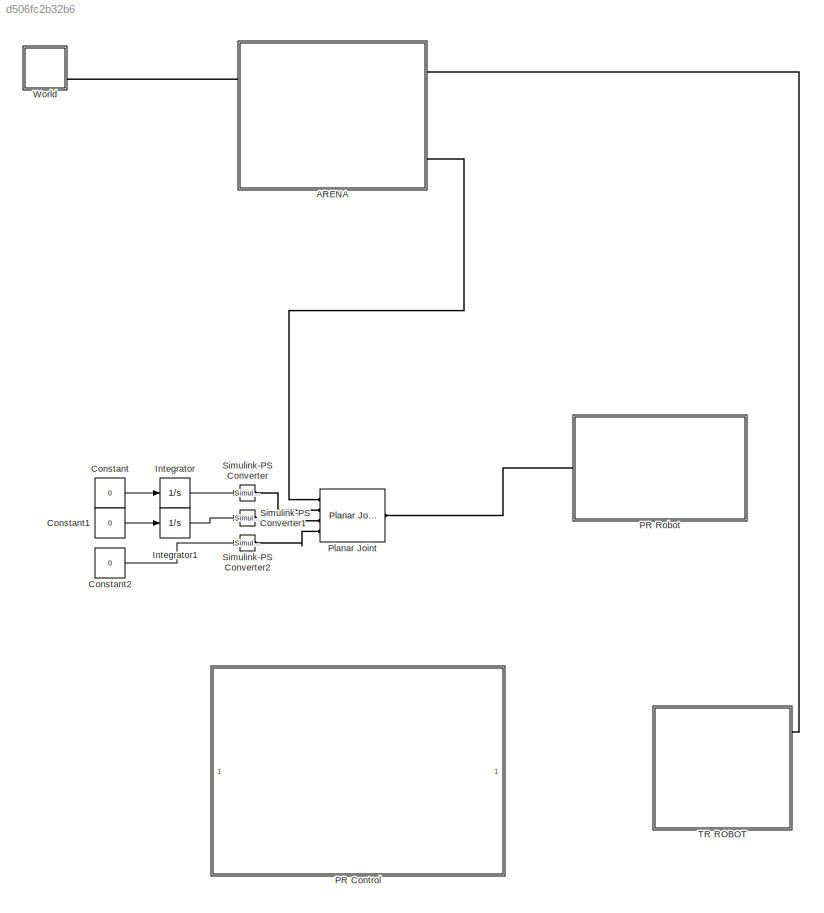
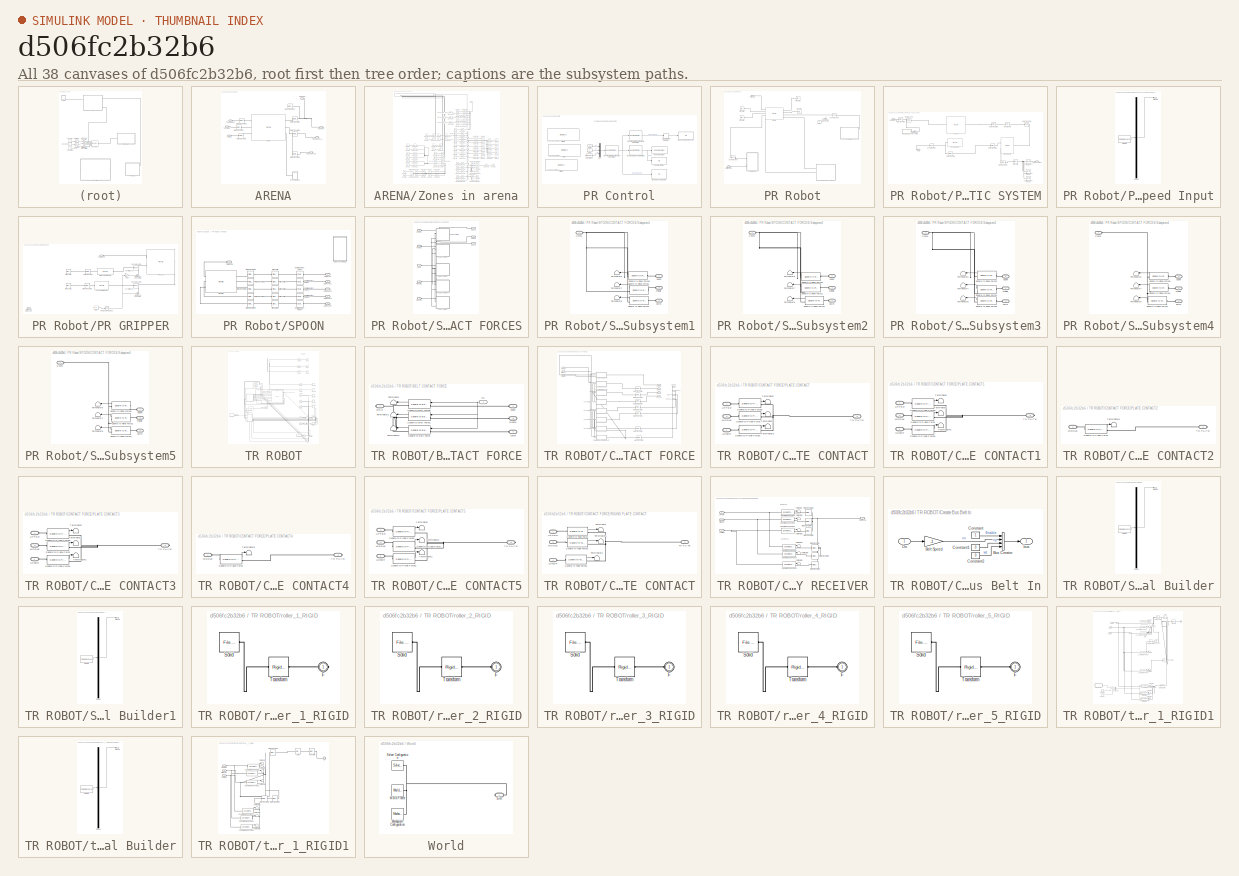
[diagram: thumbnail index - all 38 canvases of the model, root first then tree order]
MODEL slx_d506fc2b32b6
KIND model
CONFIG AbsTol = 1e-5
CONFIG EnableMultiTasking = on
CONFIG FixedStep = auto
CONFIG MaxStep = 1e-2
CONFIG MinStep = auto
CONFIG RelTol = 1e-4
CONFIG SampleTimeConstraint = Unconstrained
CONFIG SolverName = ode45
CONFIG StartTime = 0.0
CONFIG StopTime = 10.0
BLOCK [SubSystem] ARENA
  Ports = [0, 0, 0, 0, 0, 4, 3]
  RequestExecContextInheritance = off
BLOCK [Reference] ARENA/ARENA  REF=sm_lib/Body Elements/File Solid
  Ports = [0, 0, 0, 0, 0, 3, 3]
  SourceBlock = sm_lib/Body Elements/File Solid
  SourceProductBaseCode = MS
  SourceType = File Solid
BLOCK [PMIOPort] ARENA/GROUND
  Port = 2
  Side = Left
BLOCK [Reference] ARENA/Ground Contact  REF=sm_lib/Body Elements/Brick Solid
  Ports = [0, 0, 0, 0, 0, 0, 1]
  SourceBlock = sm_lib/Body Elements/Brick Solid
  SourceProductBaseCode = MS
  SourceType = Brick Solid
BLOCK [Reference] ARENA/Rigid Transform  REF=sm_lib/Frames and
Transforms/Rigid
Transform
  Ports = [0, 0, 0, 0, 0, 1, 1]
  SourceBlock = sm_lib/Frames and\nTransforms/Rigid\nTransform
  SourceProductBaseCode = MS
  SourceType = Rigid\nTransform
BLOCK [Reference] ARENA/Rigid Transform1  REF=sm_lib/Frames and
Transforms/Rigid
Transform
  Ports = [0, 0, 0, 0, 0, 1, 1]
  SourceBlock = sm_lib/Frames and\nTransforms/Rigid\nTransform
  SourceProductBaseCode = MS
  SourceType = Rigid\nTransform
BLOCK [Reference] ARENA/Rigid Transform13  REF=sm_lib/Frames and
Transforms/Rigid
Transform
  Ports = [0, 0, 0, 0, 0, 1, 1]
  SourceBlock = sm_lib/Frames and\nTransforms/Rigid\nTransform
  SourceProductBaseCode = MS
  SourceType = Rigid\nTransform
BLOCK [Reference] ARENA/Rigid Transform2  REF=sm_lib/Frames and
Transforms/Rigid
Transform
  Ports = [0, 0, 0, 0, 0, 1, 1]
  SourceBlock = sm_lib/Frames and\nTransforms/Rigid\nTransform
  SourceProductBaseCode = MS
  SourceType = Rigid\nTransform
BLOCK [Reference] ARENA/Rigid Transform3  REF=sm_lib/Frames and
Transforms/Rigid
Transform
  Ports = [0, 0, 0, 0, 0, 1, 1]
  SourceBlock = sm_lib/Frames and\nTransforms/Rigid\nTransform
  SourceProductBaseCode = MS
  SourceType = Rigid\nTransform
BLOCK [Reference] ARENA/Rigid Transform4  REF=sm_lib/Frames and
Transforms/Rigid
Transform
  Ports = [0, 0, 0, 0, 0, 1, 1]
  SourceBlock = sm_lib/Frames and\nTransforms/Rigid\nTransform
  SourceProductBaseCode = MS
  SourceType = Rigid\nTransform
BLOCK [PMIOPort] ARENA/TO BALL RACK
  Port = 7
  Side = Right
BLOCK [PMIOPort] ARENA/TO PR ROBOT
  Port = 4
  Side = Left
BLOCK [PMIOPort] ARENA/TO RUGBY BALL
  Port = 6
  Side = Right
BLOCK [PMIOPort] ARENA/TO Solver
  Port = 5
  Side = Right
BLOCK [PMIOPort] ARENA/TO TEE
  Port = 3
  Side = Left
BLOCK [PMIOPort] ARENA/TO TR BOT
  Side = Left
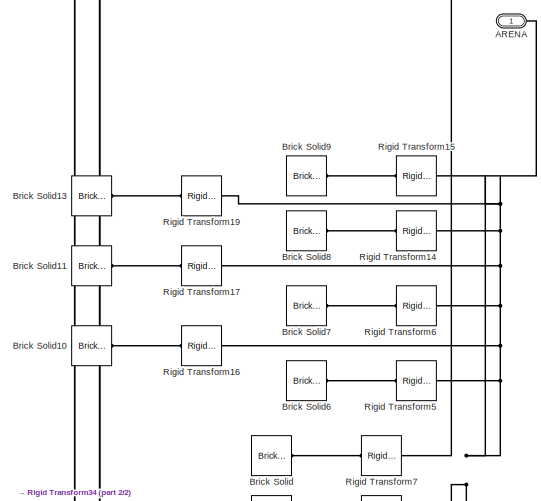
[diagram: ARENA/Zones in arena - part 1/2, top center region]
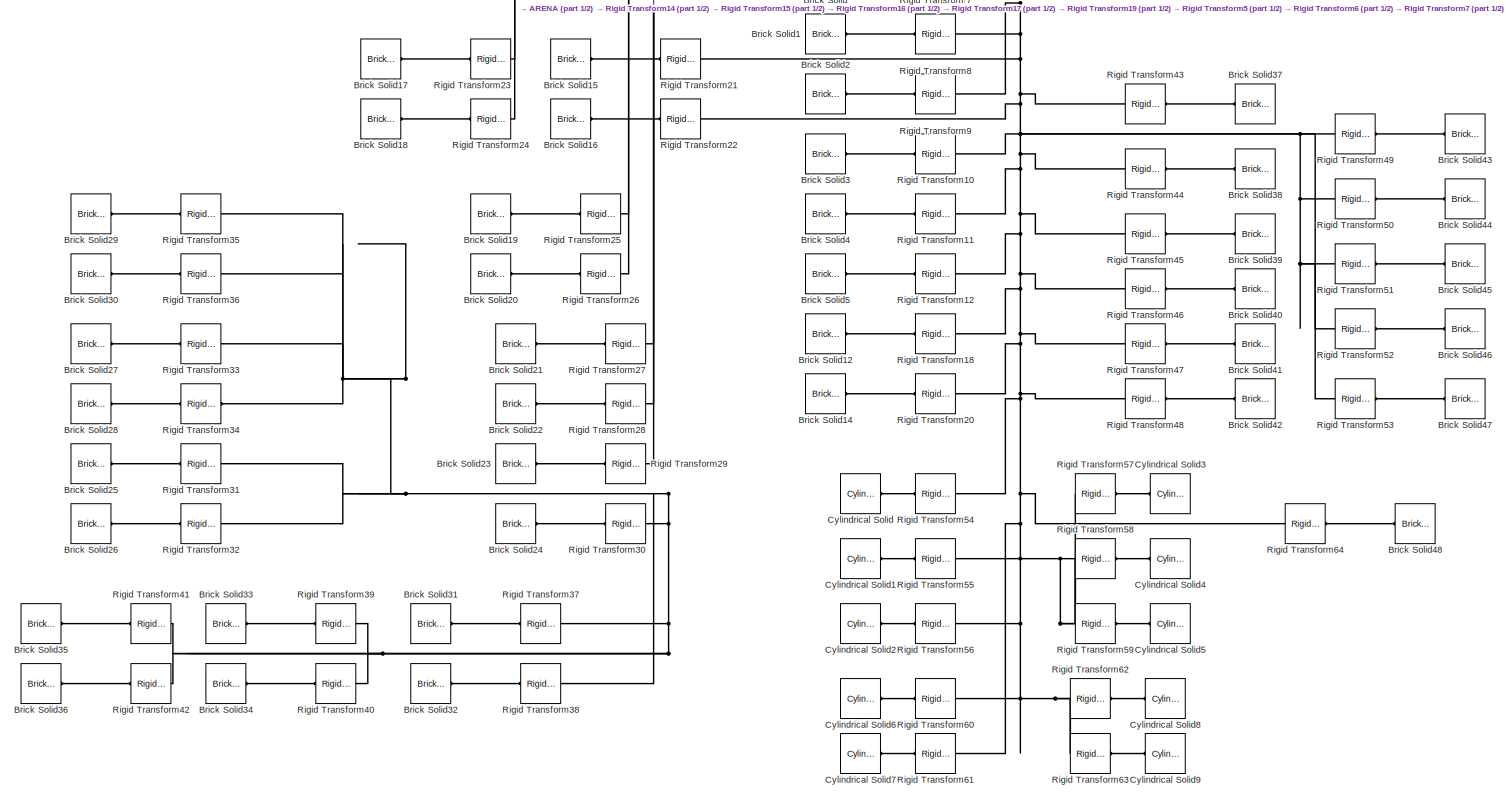
[diagram: ARENA/Zones in arena - part 2/2, full width, bottom band]
BLOCK [SubSystem] ARENA/Zones in arena
  Ports = [0, 0, 0, 0, 0, 1]
  RequestExecContextInheritance = off
BLOCK [PMIOPort] ARENA/Zones in arena/ARENA
  Side = Left
BLOCK [Reference] ARENA/Zones in arena/Brick Solid  REF=sm_lib/Body Elements/Brick Solid
  Ports = [0, 0, 0, 0, 0, 0, 1]
  SourceBlock = sm_lib/Body Elements/Brick Solid
  SourceProductBaseCode = MS
  SourceType = Brick Solid
BLOCK [Reference] ARENA/Zones in arena/Brick Solid1  REF=sm_lib/Body Elements/Brick Solid
  Ports = [0, 0, 0, 0, 0, 0, 1]
  SourceBlock = sm_lib/Body Elements/Brick Solid
  SourceProductBaseCode = MS
  SourceType = Brick Solid
BLOCK [Reference] ARENA/Zones in arena/Brick Solid10  REF=sm_lib/Body Elements/Brick Solid
  Ports = [0, 0, 0, 0, 0, 0, 1]
  SourceBlock = sm_lib/Body Elements/Brick Solid
  SourceProductBaseCode = MS
  SourceType = Brick Solid
BLOCK [Reference] ARENA/Zones in arena/Brick Solid11  REF=sm_lib/Body Elements/Brick Solid
  Ports = [0, 0, 0, 0, 0, 0, 1]
  SourceBlock = sm_lib/Body Elements/Brick Solid
  SourceProductBaseCode = MS
  SourceType = Brick Solid
BLOCK [Reference] ARENA/Zones in arena/Brick Solid12  REF=sm_lib/Body Elements/Brick Solid
  Ports = [0, 0, 0, 0, 0, 0, 1]
  SourceBlock = sm_lib/Body Elements/Brick Solid
  SourceProductBaseCode = MS
  SourceType = Brick Solid
BLOCK [Reference] ARENA/Zones in arena/Brick Solid13  REF=sm_lib/Body Elements/Brick Solid
  Ports = [0, 0, 0, 0, 0, 0, 1]
  SourceBlock = sm_lib/Body Elements/Brick Solid
  SourceProductBaseCode = MS
  SourceType = Brick Solid
BLOCK [Reference] ARENA/Zones in arena/Brick Solid14  REF=sm_lib/Body Elements/Brick Solid
  Ports = [0, 0, 0, 0, 0, 0, 1]
  SourceBlock = sm_lib/Body Elements/Brick Solid
  SourceProductBaseCode = MS
  SourceType = Brick Solid
BLOCK [Reference] ARENA/Zones in arena/Brick Solid15  REF=sm_lib/Body Elements/Brick Solid
  Ports = [0, 0, 0, 0, 0, 0, 1]
  SourceBlock = sm_lib/Body Elements/Brick Solid
  SourceProductBaseCode = MS
  SourceType = Brick Solid
BLOCK [Reference] ARENA/Zones in arena/Brick Solid16  REF=sm_lib/Body Elements/Brick Solid
  Ports = [0, 0, 0, 0, 0, 0, 1]
  SourceBlock = sm_lib/Body Elements/Brick Solid
  SourceProductBaseCode = MS
  SourceType = Brick Solid
BLOCK [Reference] ARENA/Zones in arena/Brick Solid17  REF=sm_lib/Body Elements/Brick Solid
  Ports = [0, 0, 0, 0, 0, 0, 1]
  SourceBlock = sm_lib/Body Elements/Brick Solid
  SourceProductBaseCode = MS
  SourceType = Brick Solid
BLOCK [Reference] ARENA/Zones in arena/Brick Solid18  REF=sm_lib/Body Elements/Brick Solid
  Ports = [0, 0, 0, 0, 0, 0, 1]
  SourceBlock = sm_lib/Body Elements/Brick Solid
  SourceProductBaseCode = MS
  SourceType = Brick Solid
BLOCK [Reference] ARENA/Zones in arena/Brick Solid19  REF=sm_lib/Body Elements/Brick Solid
  Ports = [0, 0, 0, 0, 0, 0, 1]
  SourceBlock = sm_lib/Body Elements/Brick Solid
  SourceProductBaseCode = MS
  SourceType = Brick Solid
BLOCK [Reference] ARENA/Zones in arena/Brick Solid2  REF=sm_lib/Body Elements/Brick Solid
  Ports = [0, 0, 0, 0, 0, 0, 1]
  SourceBlock = sm_lib/Body Elements/Brick Solid
  SourceProductBaseCode = MS
  SourceType = Brick Solid
BLOCK [Reference] ARENA/Zones in arena/Brick Solid20  REF=sm_lib/Body Elements/Brick Solid
  Ports = [0, 0, 0, 0, 0, 0, 1]
  SourceBlock = sm_lib/Body Elements/Brick Solid
  SourceProductBaseCode = MS
  SourceType = Brick Solid
BLOCK [Reference] ARENA/Zones in arena/Brick Solid21  REF=sm_lib/Body Elements/Brick Solid
  Ports = [0, 0, 0, 0, 0, 0, 1]
  SourceBlock = sm_lib/Body Elements/Brick Solid
  SourceProductBaseCode = MS
  SourceType = Brick Solid
BLOCK [Reference] ARENA/Zones in arena/Brick Solid22  REF=sm_lib/Body Elements/Brick Solid
  Ports = [0, 0, 0, 0, 0, 0, 1]
  SourceBlock = sm_lib/Body Elements/Brick Solid
  SourceProductBaseCode = MS
  SourceType = Brick Solid
BLOCK [Reference] ARENA/Zones in arena/Brick Solid23  REF=sm_lib/Body Elements/Brick Solid
  Ports = [0, 0, 0, 0, 0, 0, 1]
  SourceBlock = sm_lib/Body Elements/Brick Solid
  SourceProductBaseCode = MS
  SourceType = Brick Solid
BLOCK [Reference] ARENA/Zones in arena/Brick Solid24  REF=sm_lib/Body Elements/Brick Solid
  Ports = [0, 0, 0, 0, 0, 0, 1]
  SourceBlock = sm_lib/Body Elements/Brick Solid
  SourceProductBaseCode = MS
  SourceType = Brick Solid
BLOCK [Reference] ARENA/Zones in arena/Brick Solid25  REF=sm_lib/Body Elements/Brick Solid
  Ports = [0, 0, 0, 0, 0, 0, 1]
  SourceBlock = sm_lib/Body Elements/Brick Solid
  SourceProductBaseCode = MS
  SourceType = Brick Solid
BLOCK [Reference] ARENA/Zones in arena/Brick Solid26  REF=sm_lib/Body Elements/Brick Solid
  Ports = [0, 0, 0, 0, 0, 0, 1]
  SourceBlock = sm_lib/Body Elements/Brick Solid
  SourceProductBaseCode = MS
  SourceType = Brick Solid
BLOCK [Reference] ARENA/Zones in arena/Brick Solid27  REF=sm_lib/Body Elements/Brick Solid
  Ports = [0, 0, 0, 0, 0, 0, 1]
  SourceBlock = sm_lib/Body Elements/Brick Solid
  SourceProductBaseCode = MS
  SourceType = Brick Solid
BLOCK [Reference] ARENA/Zones in arena/Brick Solid28  REF=sm_lib/Body Elements/Brick Solid
  Ports = [0, 0, 0, 0, 0, 0, 1]
  SourceBlock = sm_lib/Body Elements/Brick Solid
  SourceProductBaseCode = MS
  SourceType = Brick Solid
BLOCK [Reference] ARENA/Zones in arena/Brick Solid29  REF=sm_lib/Body Elements/Brick Solid
  Ports = [0, 0, 0, 0, 0, 0, 1]
  SourceBlock = sm_lib/Body Elements/Brick Solid
  SourceProductBaseCode = MS
  SourceType = Brick Solid
BLOCK [Reference] ARENA/Zones in arena/Brick Solid3  REF=sm_lib/Body Elements/Brick Solid
  Ports = [0, 0, 0, 0, 0, 0, 1]
  SourceBlock = sm_lib/Body Elements/Brick Solid
  SourceProductBaseCode = MS
  SourceType = Brick Solid
BLOCK [Reference] ARENA/Zones in arena/Brick Solid30  REF=sm_lib/Body Elements/Brick Solid
  Ports = [0, 0, 0, 0, 0, 0, 1]
  SourceBlock = sm_lib/Body Elements/Brick Solid
  SourceProductBaseCode = MS
  SourceType = Brick Solid
BLOCK [Reference] ARENA/Zones in arena/Brick Solid31  REF=sm_lib/Body Elements/Brick Solid
  Ports = [0, 0, 0, 0, 0, 0, 1]
  SourceBlock = sm_lib/Body Elements/Brick Solid
  SourceProductBaseCode = MS
  SourceType = Brick Solid
BLOCK [Reference] ARENA/Zones in arena/Brick Solid32  REF=sm_lib/Body Elements/Brick Solid
  Ports = [0, 0, 0, 0, 0, 0, 1]
  SourceBlock = sm_lib/Body Elements/Brick Solid
  SourceProductBaseCode = MS
  SourceType = Brick Solid
BLOCK [Reference] ARENA/Zones in arena/Brick Solid33  REF=sm_lib/Body Elements/Brick Solid
  Ports = [0, 0, 0, 0, 0, 0, 1]
  SourceBlock = sm_lib/Body Elements/Brick Solid
  SourceProductBaseCode = MS
  SourceType = Brick Solid
BLOCK [Reference] ARENA/Zones in arena/Brick Solid34  REF=sm_lib/Body Elements/Brick Solid
  Ports = [0, 0, 0, 0, 0, 0, 1]
  SourceBlock = sm_lib/Body Elements/Brick Solid
  SourceProductBaseCode = MS
  SourceType = Brick Solid
BLOCK [Reference] ARENA/Zones in arena/Brick Solid35  REF=sm_lib/Body Elements/Brick Solid
  Ports = [0, 0, 0, 0, 0, 0, 1]
  SourceBlock = sm_lib/Body Elements/Brick Solid
  SourceProductBaseCode = MS
  SourceType = Brick Solid
BLOCK [Reference] ARENA/Zones in arena/Brick Solid36  REF=sm_lib/Body Elements/Brick Solid
  Ports = [0, 0, 0, 0, 0, 0, 1]
  SourceBlock = sm_lib/Body Elements/Brick Solid
  SourceProductBaseCode = MS
  SourceType = Brick Solid
BLOCK [Reference] ARENA/Zones in arena/Brick Solid37  REF=sm_lib/Body Elements/Brick Solid
  Ports = [0, 0, 0, 0, 0, 0, 1]
  SourceBlock = sm_lib/Body Elements/Brick Solid
  SourceProductBaseCode = MS
  SourceType = Brick Solid
BLOCK [Reference] ARENA/Zones in arena/Brick Solid38  REF=sm_lib/Body Elements/Brick Solid
  Ports = [0, 0, 0, 0, 0, 0, 1]
  SourceBlock = sm_lib/Body Elements/Brick Solid
  SourceProductBaseCode = MS
  SourceType = Brick Solid
BLOCK [Reference] ARENA/Zones in arena/Brick Solid39  REF=sm_lib/Body Elements/Brick Solid
  Ports = [0, 0, 0, 0, 0, 0, 1]
  SourceBlock = sm_lib/Body Elements/Brick Solid
  SourceProductBaseCode = MS
  SourceType = Brick Solid
BLOCK [Reference] ARENA/Zones in arena/Brick Solid4  REF=sm_lib/Body Elements/Brick Solid
  Ports = [0, 0, 0, 0, 0, 0, 1]
  SourceBlock = sm_lib/Body Elements/Brick Solid
  SourceProductBaseCode = MS
  SourceType = Brick Solid
BLOCK [Reference] ARENA/Zones in arena/Brick Solid40  REF=sm_lib/Body Elements/Brick Solid
  Ports = [0, 0, 0, 0, 0, 0, 1]
  SourceBlock = sm_lib/Body Elements/Brick Solid
  SourceProductBaseCode = MS
  SourceType = Brick Solid
BLOCK [Reference] ARENA/Zones in arena/Brick Solid41  REF=sm_lib/Body Elements/Brick Solid
  Ports = [0, 0, 0, 0, 0, 0, 1]
  SourceBlock = sm_lib/Body Elements/Brick Solid
  SourceProductBaseCode = MS
  SourceType = Brick Solid
BLOCK [Reference] ARENA/Zones in arena/Brick Solid42  REF=sm_lib/Body Elements/Brick Solid
  Ports = [0, 0, 0, 0, 0, 0, 1]
  SourceBlock = sm_lib/Body Elements/Brick Solid
  SourceProductBaseCode = MS
  SourceType = Brick Solid
BLOCK [Reference] ARENA/Zones in arena/Brick Solid43  REF=sm_lib/Body Elements/Brick Solid
  Ports = [0, 0, 0, 0, 0, 0, 1]
  SourceBlock = sm_lib/Body Elements/Brick Solid
  SourceProductBaseCode = MS
  SourceType = Brick Solid
BLOCK [Reference] ARENA/Zones in arena/Brick Solid44  REF=sm_lib/Body Elements/Brick Solid
  Ports = [0, 0, 0, 0, 0, 0, 1]
  SourceBlock = sm_lib/Body Elements/Brick Solid
  SourceProductBaseCode = MS
  SourceType = Brick Solid
BLOCK [Reference] ARENA/Zones in arena/Brick Solid45  REF=sm_lib/Body Elements/Brick Solid
  Ports = [0, 0, 0, 0, 0, 0, 1]
  SourceBlock = sm_lib/Body Elements/Brick Solid
  SourceProductBaseCode = MS
  SourceType = Brick Solid
BLOCK [Reference] ARENA/Zones in arena/Brick Solid46  REF=sm_lib/Body Elements/Brick Solid
  Ports = [0, 0, 0, 0, 0, 0, 1]
  SourceBlock = sm_lib/Body Elements/Brick Solid
  SourceProductBaseCode = MS
  SourceType = Brick Solid
BLOCK [Reference] ARENA/Zones in arena/Brick Solid47  REF=sm_lib/Body Elements/Brick Solid
  Ports = [0, 0, 0, 0, 0, 0, 1]
  SourceBlock = sm_lib/Body Elements/Brick Solid
  SourceProductBaseCode = MS
  SourceType = Brick Solid
BLOCK [Reference] ARENA/Zones in arena/Brick Solid48  REF=sm_lib/Body Elements/Brick Solid
  Ports = [0, 0, 0, 0, 0, 0, 1]
  SourceBlock = sm_lib/Body Elements/Brick Solid
  SourceProductBaseCode = MS
  SourceType = Brick Solid
BLOCK [Reference] ARENA/Zones in arena/Brick Solid5  REF=sm_lib/Body Elements/Brick Solid
  Ports = [0, 0, 0, 0, 0, 0, 1]
  SourceBlock = sm_lib/Body Elements/Brick Solid
  SourceProductBaseCode = MS
  SourceType = Brick Solid
BLOCK [Reference] ARENA/Zones in arena/Brick Solid6  REF=sm_lib/Body Elements/Brick Solid
  Ports = [0, 0, 0, 0, 0, 0, 1]
  SourceBlock = sm_lib/Body Elements/Brick Solid
  SourceProductBaseCode = MS
  SourceType = Brick Solid
BLOCK [Reference] ARENA/Zones in arena/Brick Solid7  REF=sm_lib/Body Elements/Brick Solid
  Ports = [0, 0, 0, 0, 0, 0, 1]
  SourceBlock = sm_lib/Body Elements/Brick Solid
  SourceProductBaseCode = MS
  SourceType = Brick Solid
BLOCK [Reference] ARENA/Zones in arena/Brick Solid8  REF=sm_lib/Body Elements/Brick Solid
  Ports = [0, 0, 0, 0, 0, 0, 1]
  SourceBlock = sm_lib/Body Elements/Brick Solid
  SourceProductBaseCode = MS
  SourceType = Brick Solid
BLOCK [Reference] ARENA/Zones in arena/Brick Solid9  REF=sm_lib/Body Elements/Brick Solid
  Ports = [0, 0, 0, 0, 0, 0, 1]
  SourceBlock = sm_lib/Body Elements/Brick Solid
  SourceProductBaseCode = MS
  SourceType = Brick Solid
BLOCK [Reference] ARENA/Zones in arena/Cylindrical Solid  REF=sm_lib/Body Elements/Cylindrical Solid
  Ports = [0, 0, 0, 0, 0, 0, 1]
  SourceBlock = sm_lib/Body Elements/Cylindrical Solid
  SourceProductBaseCode = MS
  SourceType = Cylindrical Solid
BLOCK [Reference] ARENA/Zones in arena/Cylindrical Solid1  REF=sm_lib/Body Elements/Cylindrical Solid
  Ports = [0, 0, 0, 0, 0, 0, 1]
  SourceBlock = sm_lib/Body Elements/Cylindrical Solid
  SourceProductBaseCode = MS
  SourceType = Cylindrical Solid
BLOCK [Reference] ARENA/Zones in arena/Cylindrical Solid2  REF=sm_lib/Body Elements/Cylindrical Solid
  Ports = [0, 0, 0, 0, 0, 0, 1]
  SourceBlock = sm_lib/Body Elements/Cylindrical Solid
  SourceProductBaseCode = MS
  SourceType = Cylindrical Solid
BLOCK [Reference] ARENA/Zones in arena/Cylindrical Solid3  REF=sm_lib/Body Elements/Cylindrical Solid
  Ports = [0, 0, 0, 0, 0, 0, 1]
  SourceBlock = sm_lib/Body Elements/Cylindrical Solid
  SourceProductBaseCode = MS
  SourceType = Cylindrical Solid
BLOCK [Reference] ARENA/Zones in arena/Cylindrical Solid4  REF=sm_lib/Body Elements/Cylindrical Solid
  Ports = [0, 0, 0, 0, 0, 0, 1]
  SourceBlock = sm_lib/Body Elements/Cylindrical Solid
  SourceProductBaseCode = MS
  SourceType = Cylindrical Solid
BLOCK [Reference] ARENA/Zones in arena/Cylindrical Solid5  REF=sm_lib/Body Elements/Cylindrical Solid
  Ports = [0, 0, 0, 0, 0, 0, 1]
  SourceBlock = sm_lib/Body Elements/Cylindrical Solid
  SourceProductBaseCode = MS
  SourceType = Cylindrical Solid
BLOCK [Reference] ARENA/Zones in arena/Cylindrical Solid6  REF=sm_lib/Body Elements/Cylindrical Solid
  Ports = [0, 0, 0, 0, 0, 0, 1]
  SourceBlock = sm_lib/Body Elements/Cylindrical Solid
  SourceProductBaseCode = MS
  SourceType = Cylindrical Solid
BLOCK [Reference] ARENA/Zones in arena/Cylindrical Solid7  REF=sm_lib/Body Elements/Cylindrical Solid
  Ports = [0, 0, 0, 0, 0, 0, 1]
  SourceBlock = sm_lib/Body Elements/Cylindrical Solid
  SourceProductBaseCode = MS
  SourceType = Cylindrical Solid
BLOCK [Reference] ARENA/Zones in arena/Cylindrical Solid8  REF=sm_lib/Body Elements/Cylindrical Solid
  Ports = [0, 0, 0, 0, 0, 0, 1]
  SourceBlock = sm_lib/Body Elements/Cylindrical Solid
  SourceProductBaseCode = MS
  SourceType = Cylindrical Solid
BLOCK [Reference] ARENA/Zones in arena/Cylindrical Solid9  REF=sm_lib/Body Elements/Cylindrical Solid
  Ports = [0, 0, 0, 0, 0, 0, 1]
  SourceBlock = sm_lib/Body Elements/Cylindrical Solid
  SourceProductBaseCode = MS
  SourceType = Cylindrical Solid
BLOCK [Reference] ARENA/Zones in arena/Rigid Transform10  REF=sm_lib/Frames and
Transforms/Rigid
Transform
  Ports = [0, 0, 0, 0, 0, 1, 1]
  SourceBlock = sm_lib/Frames and\nTransforms/Rigid\nTransform
  SourceProductBaseCode = MS
  SourceType = Rigid\nTransform
BLOCK [Reference] ARENA/Zones in arena/Rigid Transform11  REF=sm_lib/Frames and
Transforms/Rigid
Transform
  Ports = [0, 0, 0, 0, 0, 1, 1]
  SourceBlock = sm_lib/Frames and\nTransforms/Rigid\nTransform
  SourceProductBaseCode = MS
  SourceType = Rigid\nTransform
BLOCK [Reference] ARENA/Zones in arena/Rigid Transform12  REF=sm_lib/Frames and
Transforms/Rigid
Transform
  Ports = [0, 0, 0, 0, 0, 1, 1]
  SourceBlock = sm_lib/Frames and\nTransforms/Rigid\nTransform
  SourceProductBaseCode = MS
  SourceType = Rigid\nTransform
BLOCK [Reference] ARENA/Zones in arena/Rigid Transform14  REF=sm_lib/Frames and
Transforms/Rigid
Transform
  Ports = [0, 0, 0, 0, 0, 1, 1]
  SourceBlock = sm_lib/Frames and\nTransforms/Rigid\nTransform
  SourceProductBaseCode = MS
  SourceType = Rigid\nTransform
BLOCK [Reference] ARENA/Zones in arena/Rigid Transform15  REF=sm_lib/Frames and
Transforms/Rigid
Transform
  Ports = [0, 0, 0, 0, 0, 1, 1]
  SourceBlock = sm_lib/Frames and\nTransforms/Rigid\nTransform
  SourceProductBaseCode = MS
  SourceType = Rigid\nTransform
BLOCK [Reference] ARENA/Zones in arena/Rigid Transform16  REF=sm_lib/Frames and
Transforms/Rigid
Transform
  Ports = [0, 0, 0, 0, 0, 1, 1]
  SourceBlock = sm_lib/Frames and\nTransforms/Rigid\nTransform
  SourceProductBaseCode = MS
  SourceType = Rigid\nTransform
BLOCK [Reference] ARENA/Zones in arena/Rigid Transform17  REF=sm_lib/Frames and
Transforms/Rigid
Transform
  Ports = [0, 0, 0, 0, 0, 1, 1]
  SourceBlock = sm_lib/Frames and\nTransforms/Rigid\nTransform
  SourceProductBaseCode = MS
  SourceType = Rigid\nTransform
BLOCK [Reference] ARENA/Zones in arena/Rigid Transform18  REF=sm_lib/Frames and
Transforms/Rigid
Transform
  Ports = [0, 0, 0, 0, 0, 1, 1]
  SourceBlock = sm_lib/Frames and\nTransforms/Rigid\nTransform
  SourceProductBaseCode = MS
  SourceType = Rigid\nTransform
BLOCK [Reference] ARENA/Zones in arena/Rigid Transform19  REF=sm_lib/Frames and
Transforms/Rigid
Transform
  Ports = [0, 0, 0, 0, 0, 1, 1]
  SourceBlock = sm_lib/Frames and\nTransforms/Rigid\nTransform
  SourceProductBaseCode = MS
  SourceType = Rigid\nTransform
BLOCK [Reference] ARENA/Zones in arena/Rigid Transform20  REF=sm_lib/Frames and
Transforms/Rigid
Transform
  Ports = [0, 0, 0, 0, 0, 1, 1]
  SourceBlock = sm_lib/Frames and\nTransforms/Rigid\nTransform
  SourceProductBaseCode = MS
  SourceType = Rigid\nTransform
BLOCK [Reference] ARENA/Zones in arena/Rigid Transform21  REF=sm_lib/Frames and
Transforms/Rigid
Transform
  Ports = [0, 0, 0, 0, 0, 1, 1]
  SourceBlock = sm_lib/Frames and\nTransforms/Rigid\nTransform
  SourceProductBaseCode = MS
  SourceType = Rigid\nTransform
BLOCK [Reference] ARENA/Zones in arena/Rigid Transform22  REF=sm_lib/Frames and
Transforms/Rigid
Transform
  Ports = [0, 0, 0, 0, 0, 1, 1]
  SourceBlock = sm_lib/Frames and\nTransforms/Rigid\nTransform
  SourceProductBaseCode = MS
  SourceType = Rigid\nTransform
BLOCK [Reference] ARENA/Zones in arena/Rigid Transform23  REF=sm_lib/Frames and
Transforms/Rigid
Transform
  Ports = [0, 0, 0, 0, 0, 1, 1]
  SourceBlock = sm_lib/Frames and\nTransforms/Rigid\nTransform
  SourceProductBaseCode = MS
  SourceType = Rigid\nTransform
BLOCK [Reference] ARENA/Zones in arena/Rigid Transform24  REF=sm_lib/Frames and
Transforms/Rigid
Transform
  Ports = [0, 0, 0, 0, 0, 1, 1]
  SourceBlock = sm_lib/Frames and\nTransforms/Rigid\nTransform
  SourceProductBaseCode = MS
  SourceType = Rigid\nTransform
BLOCK [Reference] ARENA/Zones in arena/Rigid Transform25  REF=sm_lib/Frames and
Transforms/Rigid
Transform
  Ports = [0, 0, 0, 0, 0, 1, 1]
  SourceBlock = sm_lib/Frames and\nTransforms/Rigid\nTransform
  SourceProductBaseCode = MS
  SourceType = Rigid\nTransform
BLOCK [Reference] ARENA/Zones in arena/Rigid Transform26  REF=sm_lib/Frames and
Transforms/Rigid
Transform
  Ports = [0, 0, 0, 0, 0, 1, 1]
  SourceBlock = sm_lib/Frames and\nTransforms/Rigid\nTransform
  SourceProductBaseCode = MS
  SourceType = Rigid\nTransform
BLOCK [Reference] ARENA/Zones in arena/Rigid Transform27  REF=sm_lib/Frames and
Transforms/Rigid
Transform
  Ports = [0, 0, 0, 0, 0, 1, 1]
  SourceBlock = sm_lib/Frames and\nTransforms/Rigid\nTransform
  SourceProductBaseCode = MS
  SourceType = Rigid\nTransform
BLOCK [Reference] ARENA/Zones in arena/Rigid Transform28  REF=sm_lib/Frames and
Transforms/Rigid
Transform
  Ports = [0, 0, 0, 0, 0, 1, 1]
  SourceBlock = sm_lib/Frames and\nTransforms/Rigid\nTransform
  SourceProductBaseCode = MS
  SourceType = Rigid\nTransform
BLOCK [Reference] ARENA/Zones in arena/Rigid Transform29  REF=sm_lib/Frames and
Transforms/Rigid
Transform
  Ports = [0, 0, 0, 0, 0, 1, 1]
  SourceBlock = sm_lib/Frames and\nTransforms/Rigid\nTransform
  SourceProductBaseCode = MS
  SourceType = Rigid\nTransform
BLOCK [Reference] ARENA/Zones in arena/Rigid Transform30  REF=sm_lib/Frames and
Transforms/Rigid
Transform
  Ports = [0, 0, 0, 0, 0, 1, 1]
  SourceBlock = sm_lib/Frames and\nTransforms/Rigid\nTransform
  SourceProductBaseCode = MS
  SourceType = Rigid\nTransform
BLOCK [Reference] ARENA/Zones in arena/Rigid Transform31  REF=sm_lib/Frames and
Transforms/Rigid
Transform
  Ports = [0, 0, 0, 0, 0, 1, 1]
  SourceBlock = sm_lib/Frames and\nTransforms/Rigid\nTransform
  SourceProductBaseCode = MS
  SourceType = Rigid\nTransform
BLOCK [Reference] ARENA/Zones in arena/Rigid Transform32  REF=sm_lib/Frames and
Transforms/Rigid
Transform
  Ports = [0, 0, 0, 0, 0, 1, 1]
  SourceBlock = sm_lib/Frames and\nTransforms/Rigid\nTransform
  SourceProductBaseCode = MS
  SourceType = Rigid\nTransform
BLOCK [Reference] ARENA/Zones in arena/Rigid Transform33  REF=sm_lib/Frames and
Transforms/Rigid
Transform
  Ports = [0, 0, 0, 0, 0, 1, 1]
  SourceBlock = sm_lib/Frames and\nTransforms/Rigid\nTransform
  SourceProductBaseCode = MS
  SourceType = Rigid\nTransform
BLOCK [Reference] ARENA/Zones in arena/Rigid Transform34  REF=sm_lib/Frames and
Transforms/Rigid
Transform
  Ports = [0, 0, 0, 0, 0, 1, 1]
  SourceBlock = sm_lib/Frames and\nTransforms/Rigid\nTransform
  SourceProductBaseCode = MS
  SourceType = Rigid\nTransform
BLOCK [Reference] ARENA/Zones in arena/Rigid Transform35  REF=sm_lib/Frames and
Transforms/Rigid
Transform
  Ports = [0, 0, 0, 0, 0, 1, 1]
  SourceBlock = sm_lib/Frames and\nTransforms/Rigid\nTransform
  SourceProductBaseCode = MS
  SourceType = Rigid\nTransform
BLOCK [Reference] ARENA/Zones in arena/Rigid Transform36  REF=sm_lib/Frames and
Transforms/Rigid
Transform
  Ports = [0, 0, 0, 0, 0, 1, 1]
  SourceBlock = sm_lib/Frames and\nTransforms/Rigid\nTransform
  SourceProductBaseCode = MS
  SourceType = Rigid\nTransform
BLOCK [Reference] ARENA/Zones in arena/Rigid Transform37  REF=sm_lib/Frames and
Transforms/Rigid
Transform
  Ports = [0, 0, 0, 0, 0, 1, 1]
  SourceBlock = sm_lib/Frames and\nTransforms/Rigid\nTransform
  SourceProductBaseCode = MS
  SourceType = Rigid\nTransform
BLOCK [Reference] ARENA/Zones in arena/Rigid Transform38  REF=sm_lib/Frames and
Transforms/Rigid
Transform
  Ports = [0, 0, 0, 0, 0, 1, 1]
  SourceBlock = sm_lib/Frames and\nTransforms/Rigid\nTransform
  SourceProductBaseCode = MS
  SourceType = Rigid\nTransform
BLOCK [Reference] ARENA/Zones in arena/Rigid Transform39  REF=sm_lib/Frames and
Transforms/Rigid
Transform
  Ports = [0, 0, 0, 0, 0, 1, 1]
  SourceBlock = sm_lib/Frames and\nTransforms/Rigid\nTransform
  SourceProductBaseCode = MS
  SourceType = Rigid\nTransform
BLOCK [Reference] ARENA/Zones in arena/Rigid Transform40  REF=sm_lib/Frames and
Transforms/Rigid
Transform
  Ports = [0, 0, 0, 0, 0, 1, 1]
  SourceBlock = sm_lib/Frames and\nTransforms/Rigid\nTransform
  SourceProductBaseCode = MS
  SourceType = Rigid\nTransform
BLOCK [Reference] ARENA/Zones in arena/Rigid Transform41  REF=sm_lib/Frames and
Transforms/Rigid
Transform
  Ports = [0, 0, 0, 0, 0, 1, 1]
  SourceBlock = sm_lib/Frames and\nTransforms/Rigid\nTransform
  SourceProductBaseCode = MS
  SourceType = Rigid\nTransform
BLOCK [Reference] ARENA/Zones in arena/Rigid Transform42  REF=sm_lib/Frames and
Transforms/Rigid
Transform
  Ports = [0, 0, 0, 0, 0, 1, 1]
  SourceBlock = sm_lib/Frames and\nTransforms/Rigid\nTransform
  SourceProductBaseCode = MS
  SourceType = Rigid\nTransform
BLOCK [Reference] ARENA/Zones in arena/Rigid Transform43  REF=sm_lib/Frames and
Transforms/Rigid
Transform
  Ports = [0, 0, 0, 0, 0, 1, 1]
  SourceBlock = sm_lib/Frames and\nTransforms/Rigid\nTransform
  SourceProductBaseCode = MS
  SourceType = Rigid\nTransform
BLOCK [Reference] ARENA/Zones in arena/Rigid Transform44  REF=sm_lib/Frames and
Transforms/Rigid
Transform
  Ports = [0, 0, 0, 0, 0, 1, 1]
  SourceBlock = sm_lib/Frames and\nTransforms/Rigid\nTransform
  SourceProductBaseCode = MS
  SourceType = Rigid\nTransform
BLOCK [Reference] ARENA/Zones in arena/Rigid Transform45  REF=sm_lib/Frames and
Transforms/Rigid
Transform
  Ports = [0, 0, 0, 0, 0, 1, 1]
  SourceBlock = sm_lib/Frames and\nTransforms/Rigid\nTransform
  SourceProductBaseCode = MS
  SourceType = Rigid\nTransform
BLOCK [Reference] ARENA/Zones in arena/Rigid Transform46  REF=sm_lib/Frames and
Transforms/Rigid
Transform
  Ports = [0, 0, 0, 0, 0, 1, 1]
  SourceBlock = sm_lib/Frames and\nTransforms/Rigid\nTransform
  SourceProductBaseCode = MS
  SourceType = Rigid\nTransform
BLOCK [Reference] ARENA/Zones in arena/Rigid Transform47  REF=sm_lib/Frames and
Transforms/Rigid
Transform
  Ports = [0, 0, 0, 0, 0, 1, 1]
  SourceBlock = sm_lib/Frames and\nTransforms/Rigid\nTransform
  SourceProductBaseCode = MS
  SourceType = Rigid\nTransform
BLOCK [Reference] ARENA/Zones in arena/Rigid Transform48  REF=sm_lib/Frames and
Transforms/Rigid
Transform
  Ports = [0, 0, 0, 0, 0, 1, 1]
  SourceBlock = sm_lib/Frames and\nTransforms/Rigid\nTransform
  SourceProductBaseCode = MS
  SourceType = Rigid\nTransform
BLOCK [Reference] ARENA/Zones in arena/Rigid Transform49  REF=sm_lib/Frames and
Transforms/Rigid
Transform
  Ports = [0, 0, 0, 0, 0, 1, 1]
  SourceBlock = sm_lib/Frames and\nTransforms/Rigid\nTransform
  SourceProductBaseCode = MS
  SourceType = Rigid\nTransform
BLOCK [Reference] ARENA/Zones in arena/Rigid Transform5  REF=sm_lib/Frames and
Transforms/Rigid
Transform
  Ports = [0, 0, 0, 0, 0, 1, 1]
  SourceBlock = sm_lib/Frames and\nTransforms/Rigid\nTransform
  SourceProductBaseCode = MS
  SourceType = Rigid\nTransform
BLOCK [Reference] ARENA/Zones in arena/Rigid Transform50  REF=sm_lib/Frames and
Transforms/Rigid
Transform
  Ports = [0, 0, 0, 0, 0, 1, 1]
  SourceBlock = sm_lib/Frames and\nTransforms/Rigid\nTransform
  SourceProductBaseCode = MS
  SourceType = Rigid\nTransform
BLOCK [Reference] ARENA/Zones in arena/Rigid Transform51  REF=sm_lib/Frames and
Transforms/Rigid
Transform
  Ports = [0, 0, 0, 0, 0, 1, 1]
  SourceBlock = sm_lib/Frames and\nTransforms/Rigid\nTransform
  SourceProductBaseCode = MS
  SourceType = Rigid\nTransform
BLOCK [Reference] ARENA/Zones in arena/Rigid Transform52  REF=sm_lib/Frames and
Transforms/Rigid
Transform
  Ports = [0, 0, 0, 0, 0, 1, 1]
  SourceBlock = sm_lib/Frames and\nTransforms/Rigid\nTransform
  SourceProductBaseCode = MS
  SourceType = Rigid\nTransform
BLOCK [Reference] ARENA/Zones in arena/Rigid Transform53  REF=sm_lib/Frames and
Transforms/Rigid
Transform
  Ports = [0, 0, 0, 0, 0, 1, 1]
  SourceBlock = sm_lib/Frames and\nTransforms/Rigid\nTransform
  SourceProductBaseCode = MS
  SourceType = Rigid\nTransform
BLOCK [Reference] ARENA/Zones in arena/Rigid Transform54  REF=sm_lib/Frames and
Transforms/Rigid
Transform
  Ports = [0, 0, 0, 0, 0, 1, 1]
  SourceBlock = sm_lib/Frames and\nTransforms/Rigid\nTransform
  SourceProductBaseCode = MS
  SourceType = Rigid\nTransform
BLOCK [Reference] ARENA/Zones in arena/Rigid Transform55  REF=sm_lib/Frames and
Transforms/Rigid
Transform
  Ports = [0, 0, 0, 0, 0, 1, 1]
  SourceBlock = sm_lib/Frames and\nTransforms/Rigid\nTransform
  SourceProductBaseCode = MS
  SourceType = Rigid\nTransform
BLOCK [Reference] ARENA/Zones in arena/Rigid Transform56  REF=sm_lib/Frames and
Transforms/Rigid
Transform
  Ports = [0, 0, 0, 0, 0, 1, 1]
  SourceBlock = sm_lib/Frames and\nTransforms/Rigid\nTransform
  SourceProductBaseCode = MS
  SourceType = Rigid\nTransform
BLOCK [Reference] ARENA/Zones in arena/Rigid Transform57  REF=sm_lib/Frames and
Transforms/Rigid
Transform
  Ports = [0, 0, 0, 0, 0, 1, 1]
  SourceBlock = sm_lib/Frames and\nTransforms/Rigid\nTransform
  SourceProductBaseCode = MS
  SourceType = Rigid\nTransform
BLOCK [Reference] ARENA/Zones in arena/Rigid Transform58  REF=sm_lib/Frames and
Transforms/Rigid
Transform
  Ports = [0, 0, 0, 0, 0, 1, 1]
  SourceBlock = sm_lib/Frames and\nTransforms/Rigid\nTransform
  SourceProductBaseCode = MS
  SourceType = Rigid\nTransform
BLOCK [Reference] ARENA/Zones in arena/Rigid Transform59  REF=sm_lib/Frames and
Transforms/Rigid
Transform
  Ports = [0, 0, 0, 0, 0, 1, 1]
  SourceBlock = sm_lib/Frames and\nTransforms/Rigid\nTransform
  SourceProductBaseCode = MS
  SourceType = Rigid\nTransform
BLOCK [Reference] ARENA/Zones in arena/Rigid Transform6  REF=sm_lib/Frames and
Transforms/Rigid
Transform
  Ports = [0, 0, 0, 0, 0, 1, 1]
  SourceBlock = sm_lib/Frames and\nTransforms/Rigid\nTransform
  SourceProductBaseCode = MS
  SourceType = Rigid\nTransform
BLOCK [Reference] ARENA/Zones in arena/Rigid Transform60  REF=sm_lib/Frames and
Transforms/Rigid
Transform
  Ports = [0, 0, 0, 0, 0, 1, 1]
  SourceBlock = sm_lib/Frames and\nTransforms/Rigid\nTransform
  SourceProductBaseCode = MS
  SourceType = Rigid\nTransform
BLOCK [Reference] ARENA/Zones in arena/Rigid Transform61  REF=sm_lib/Frames and
Transforms/Rigid
Transform
  Ports = [0, 0, 0, 0, 0, 1, 1]
  SourceBlock = sm_lib/Frames and\nTransforms/Rigid\nTransform
  SourceProductBaseCode = MS
  SourceType = Rigid\nTransform
BLOCK [Reference] ARENA/Zones in arena/Rigid Transform62  REF=sm_lib/Frames and
Transforms/Rigid
Transform
  Ports = [0, 0, 0, 0, 0, 1, 1]
  SourceBlock = sm_lib/Frames and\nTransforms/Rigid\nTransform
  SourceProductBaseCode = MS
  SourceType = Rigid\nTransform
BLOCK [Reference] ARENA/Zones in arena/Rigid Transform63  REF=sm_lib/Frames and
Transforms/Rigid
Transform
  Ports = [0, 0, 0, 0, 0, 1, 1]
  SourceBlock = sm_lib/Frames and\nTransforms/Rigid\nTransform
  SourceProductBaseCode = MS
  SourceType = Rigid\nTransform
BLOCK [Reference] ARENA/Zones in arena/Rigid Transform64  REF=sm_lib/Frames and
Transforms/Rigid
Transform
  Ports = [0, 0, 0, 0, 0, 1, 1]
  SourceBlock = sm_lib/Frames and\nTransforms/Rigid\nTransform
  SourceProductBaseCode = MS
  SourceType = Rigid\nTransform
BLOCK [Reference] ARENA/Zones in arena/Rigid Transform7  REF=sm_lib/Frames and
Transforms/Rigid
Transform
  Ports = [0, 0, 0, 0, 0, 1, 1]
  SourceBlock = sm_lib/Frames and\nTransforms/Rigid\nTransform
  SourceProductBaseCode = MS
  SourceType = Rigid\nTransform
BLOCK [Reference] ARENA/Zones in arena/Rigid Transform8  REF=sm_lib/Frames and
Transforms/Rigid
Transform
  Ports = [0, 0, 0, 0, 0, 1, 1]
  SourceBlock = sm_lib/Frames and\nTransforms/Rigid\nTransform
  SourceProductBaseCode = MS
  SourceType = Rigid\nTransform
BLOCK [Reference] ARENA/Zones in arena/Rigid Transform9  REF=sm_lib/Frames and
Transforms/Rigid
Transform
  Ports = [0, 0, 0, 0, 0, 1, 1]
  SourceBlock = sm_lib/Frames and\nTransforms/Rigid\nTransform
  SourceProductBaseCode = MS
  SourceType = Rigid\nTransform
BLOCK [Constant] Constant
  Value = 0
BLOCK [Constant] Constant1
  Value = 0
BLOCK [Constant] Constant2
  Value = 0
BLOCK [Integrator] Integrator
  Ports = [1, 1]
BLOCK [Integrator] Integrator1
  Ports = [1, 1]
BLOCK [SubSystem] PR Control
  Commented = on
  Ports = []
  RequestExecContextInheritance = off
BLOCK [Constant] PR Control/Angular Vel
  Value = -0.0546875
BLOCK [Display] PR Control/Body Speeds [vx vy w]
  Decimation = 1
  Ports = [1]
BLOCK [DiscreteIntegrator] PR Control/Discrete-Time Integrator
  ICPrevOutput = DiscIntNeverNeededParam
  ICPrevScaledInput = DiscIntNeverNeededParam
  InitialConditionSetting = Auto
  Ports = [1, 1]
  SampleTime = 0.05
BLOCK [Reference] PR Control/Generic Omniwheel Forward Kinematics  REF=mobileRoboticsLib/Kinematic Models/Generic Omniwheel/Generic Omniwheel 
Forward Kinematics
  Ports = [1, 1]
  SourceBlock = mobileRoboticsLib/Kinematic Models/Generic Omniwheel/Generic Omniwheel \nForward Kinematics
  SourceProductName = Mobile Robotics Simulation Toolbox
  SourceType = Generic Omniwheel Forward Kinematics
BLOCK [Reference] PR Control/Generic Omniwheel Inverse Kinematics   REF=mobileRoboticsLib/Kinematic Models/Generic Omniwheel/Generic Omniwheel 
Inverse Kinematics 
  Ports = [1, 1]
  SourceBlock = mobileRoboticsLib/Kinematic Models/Generic Omniwheel/Generic Omniwheel \nInverse Kinematics
  SourceProductName = Mobile Robotics Simulation Toolbox
  SourceType = Generic Omniwheel Inverse Kinematics
BLOCK [Reference] PR Control/Generic Omniwheel Simulation  REF=mobileRoboticsLib/Kinematic Models/Generic Omniwheel/Generic Omniwheel Simulation
  Ports = [1, 1]
  SourceBlock = mobileRoboticsLib/Kinematic Models/Generic Omniwheel/Generic Omniwheel Simulation
  SourceProductName = Mobile Robotics Simulation Toolbox
  SourceType = Generic Omniwheel Simulation
BLOCK [Mux] PR Control/Mux
  DisplayOption = bar
  Inputs = 3
  Ports = [3, 1]
BLOCK [Display] PR Control/Pose [x y theta]
  Decimation = 1
  Ports = [1]
BLOCK [Reference] PR Control/Robot Visualizer  REF=mobileRoboticsLib/Environments/Robot Visualizer
  Ports = [1]
  Priority = 99
  SourceBlock = mobileRoboticsLib/Environments/Robot Visualizer
  SourceProductName = Mobile Robotics Simulation Toolbox
  SourceType = Visualizer2D
BLOCK [SliderBlock] PR Control/Slider
  ScaleMax = 1
  ScaleMin = -1
  TickInterval = 0.25
BLOCK [SliderBlock] PR Control/Slider1
  ScaleMax = 1.5
  ScaleMin = -1.5
  TickInterval = 0.5
BLOCK [SliderBlock] PR Control/Slider2
  ScaleMax = 1
  ScaleMin = -1
  TickInterval = 0.25
BLOCK [Display] PR Control/Wheel Speeds [w1 ... wN]
  Decimation = 1
  Ports = [1]
BLOCK [Constant] PR Control/X Vel
  Value = 0
BLOCK [Constant] PR Control/Y Vel
  Value = 0
BLOCK [SubSystem] PR Robot
  Ports = [0, 0, 0, 0, 0, 1, 1]
  RequestExecContextInheritance = off
BLOCK [Reference] PR Robot/File Solid  REF=sm_lib/Body Elements/File Solid
  Ports = [0, 0, 0, 0, 0, 5, 4]
  SourceBlock = sm_lib/Body Elements/File Solid
  SourceProductBaseCode = MS
  SourceType = File Solid
BLOCK [Reference] PR Robot/File Solid2  REF=sm_lib/Body Elements/File Solid
  Ports = [0, 0, 0, 0, 0, 1]
  SourceBlock = sm_lib/Body Elements/File Solid
  SourceProductBaseCode = MS
  SourceType = File Solid
BLOCK [Reference] PR Robot/File Solid3  REF=sm_lib/Body Elements/File Solid
  Ports = [0, 0, 0, 0, 0, 1]
  SourceBlock = sm_lib/Body Elements/File Solid
  SourceProductBaseCode = MS
  SourceType = File Solid
BLOCK [Reference] PR Robot/File Solid4  REF=sm_lib/Body Elements/File Solid
  Ports = [0, 0, 0, 0, 0, 1]
  SourceBlock = sm_lib/Body Elements/File Solid
  SourceProductBaseCode = MS
  SourceType = File Solid
BLOCK [Reference] PR Robot/File Solid5  REF=sm_lib/Body Elements/File Solid
  Ports = [0, 0, 0, 0, 0, 1]
  SourceBlock = sm_lib/Body Elements/File Solid
  SourceProductBaseCode = MS
  SourceType = File Solid
BLOCK [From] PR Robot/From1
  Commented = on
  GotoTag = S
  TagVisibility = global
BLOCK [PMIOPort] PR Robot/GRIPPER CONTACT
  Port = 2
  Side = Left
BLOCK [SubSystem] PR Robot/PNEUMATIC SYSTEM
  Ports = [0, 0, 0, 0, 0, 3]
  RequestExecContextInheritance = off
BLOCK [Reference] PR Robot/PNEUMATIC SYSTEM/BEARING ROD  REF=sm_lib/Body Elements/File Solid
  Ports = [0, 0, 0, 0, 0, 1, 1]
  SourceBlock = sm_lib/Body Elements/File Solid
  SourceProductBaseCode = MS
  SourceType = File Solid
BLOCK [Reference] PR Robot/PNEUMATIC SYSTEM/Brick Solid  REF=sm_lib/Body Elements/Brick Solid
  Ports = [0, 0, 0, 0, 0, 1, 1]
  SourceBlock = sm_lib/Body Elements/Brick Solid
  SourceProductBaseCode = MS
  SourceType = Brick Solid
BLOCK [Reference] PR Robot/PNEUMATIC SYSTEM/KICKING ROD  REF=sm_lib/Body Elements/File Solid
  Ports = [0, 0, 0, 0, 0, 2, 1]
  SourceBlock = sm_lib/Body Elements/File Solid
  SourceProductBaseCode = MS
  SourceType = File Solid
BLOCK [Reference] PR Robot/PNEUMATIC SYSTEM/PISTON  REF=sm_lib/Body Elements/File Solid
  Ports = [0, 0, 0, 0, 0, 1, 1]
  SourceBlock = sm_lib/Body Elements/File Solid
  SourceProductBaseCode = MS
  SourceType = File Solid
BLOCK [PMIOPort] PR Robot/PNEUMATIC SYSTEM/PNEUMATIC
  Port = 2
  Side = Left
BLOCK [Reference] PR Robot/PNEUMATIC SYSTEM/Pin Slot Joint2  REF=sm_lib/Joints/Pin Slot Joint
  Ports = [0, 0, 0, 0, 0, 1, 1]
  SourceBlock = sm_lib/Joints/Pin Slot Joint
  SourceProductBaseCode = MS
  SourceType = Pin Slot Joint
BLOCK [Reference] PR Robot/PNEUMATIC SYSTEM/Prismatic Joint1  REF=sm_lib/Joints/Prismatic
Joint
  Ports = [0, 0, 0, 0, 0, 2, 1]
  SourceBlock = sm_lib/Joints/Prismatic\nJoint
  SourceProductBaseCode = MS
  SourceType = Prismatic\nJoint
BLOCK [PMIOPort] PR Robot/PNEUMATIC SYSTEM/ROD
  Side = Left
BLOCK [Reference] PR Robot/PNEUMATIC SYSTEM/Revolute Joint  REF=sm_lib/Joints/Revolute Joint
  Ports = [0, 0, 0, 0, 0, 1, 1]
  SourceBlock = sm_lib/Joints/Revolute Joint
  SourceProductBaseCode = MS
  SourceType = Revolute Joint
BLOCK [Reference] PR Robot/PNEUMATIC SYSTEM/Rigid Transform  REF=sm_lib/Frames and
Transforms/Rigid
Transform
  Ports = [0, 0, 0, 0, 0, 1, 1]
  SourceBlock = sm_lib/Frames and\nTransforms/Rigid\nTransform
  SourceProductBaseCode = MS
  SourceType = Rigid\nTransform
BLOCK [Reference] PR Robot/PNEUMATIC SYSTEM/Rigid Transform1  REF=sm_lib/Frames and
Transforms/Rigid
Transform
  Ports = [0, 0, 0, 0, 0, 1, 1]
  SourceBlock = sm_lib/Frames and\nTransforms/Rigid\nTransform
  SourceProductBaseCode = MS
  SourceType = Rigid\nTransform
BLOCK [Reference] PR Robot/PNEUMATIC SYSTEM/Rigid Transform2  REF=sm_lib/Frames and
Transforms/Rigid
Transform
  Ports = [0, 0, 0, 0, 0, 1, 1]
  SourceBlock = sm_lib/Frames and\nTransforms/Rigid\nTransform
  SourceProductBaseCode = MS
  SourceType = Rigid\nTransform
BLOCK [Reference] PR Robot/PNEUMATIC SYSTEM/Rigid Transform3  REF=sm_lib/Frames and
Transforms/Rigid
Transform
  Ports = [0, 0, 0, 0, 0, 1, 1]
  SourceBlock = sm_lib/Frames and\nTransforms/Rigid\nTransform
  SourceProductBaseCode = MS
  SourceType = Rigid\nTransform
BLOCK [Reference] PR Robot/PNEUMATIC SYSTEM/Rigid Transform4  REF=sm_lib/Frames and
Transforms/Rigid
Transform
  Ports = [0, 0, 0, 0, 0, 1, 1]
  SourceBlock = sm_lib/Frames and\nTransforms/Rigid\nTransform
  SourceProductBaseCode = MS
  SourceType = Rigid\nTransform
BLOCK [Reference] PR Robot/PNEUMATIC SYSTEM/Rigid Transform5  REF=sm_lib/Frames and
Transforms/Rigid
Transform
  Ports = [0, 0, 0, 0, 0, 1, 1]
  SourceBlock = sm_lib/Frames and\nTransforms/Rigid\nTransform
  SourceProductBaseCode = MS
  SourceType = Rigid\nTransform
BLOCK [Reference] PR Robot/PNEUMATIC SYSTEM/Simulink-PS Converter6  REF=nesl_utility/Simulink-PS
Converter
  Ports = [1, 0, 0, 0, 0, 0, 1]
  SourceBlock = nesl_utility/Simulink-PS\nConverter
  SourceProductBaseCode = SS
  SourceType = Simulink-PS\nConverter
BLOCK [Reference] PR Robot/PNEUMATIC SYSTEM/Spatial Contact Force  REF=sm_lib/Forces and
Torques/Spatial
Contact Force
  Commented = on
  Ports = [0, 0, 0, 0, 0, 1, 1]
  SourceBlock = sm_lib/Forces and\nTorques/Spatial\nContact Force
  SourceProductBaseCode = MS
  SourceType = Spatial\nContact Force
BLOCK [Reference] PR Robot/PNEUMATIC SYSTEM/Spatial Contact Force1  REF=sm_lib/Forces and
Torques/Spatial
Contact Force
  Commented = on
  Ports = [0, 0, 0, 0, 0, 1, 1]
  SourceBlock = sm_lib/Forces and\nTorques/Spatial\nContact Force
  SourceProductBaseCode = MS
  SourceType = Spatial\nContact Force
BLOCK [Reference] PR Robot/PNEUMATIC SYSTEM/Spatial Contact Force2  REF=sm_lib/Forces and
Torques/Spatial
Contact Force
  Commented = on
  Ports = [0, 0, 0, 0, 0, 1, 1]
  SourceBlock = sm_lib/Forces and\nTorques/Spatial\nContact Force
  SourceProductBaseCode = MS
  SourceType = Spatial\nContact Force
BLOCK [SubSystem] PR Robot/PNEUMATIC SYSTEM/Speed Input
  ClipboardFcn = sigbuilder_block('clipboard');
  CloseFcn = sigbuilder_block('close');
  ContinueFcn = sigbuilder_block('continue');
  CopyFcn = sigbuilder_block('copy');
  DeleteFcn = sigbuilder_block('delete');
  LoadFcn = sigbuilder_block('load');
  MaskHideContents = on
  ModelCloseFcn = sigbuilder_block('modelClose');
  NameChangeFcn = sigbuilder_block('namechange');
  OpenFcn = sigbuilder_block('open',[75.6 -3 878.4 535.2 ]);
  PauseFcn = sigbuilder_block('pause');
  Ports = [0, 1]
  PreSaveFcn = sigbuilder_block('preSave');
  RequestExecContextInheritance = off
  StartFcn = sigbuilder_block('start');
  StopFcn = sigbuilder_block('stop');
  Tag = STV Subsys
BLOCK [Demux] PR Robot/PNEUMATIC SYSTEM/Speed Input/Demux
  DisplayOption = none
  Outputs = 1
  Ports = [1, 1]
  Tag = STV Demux
BLOCK [FromWorkspace] PR Robot/PNEUMATIC SYSTEM/Speed Input/FromWs
  Tag = STV FromWs
  VariableName = tuvar
BLOCK [Outport] PR Robot/PNEUMATIC SYSTEM/Speed Input/Signal 1
  Tag = STV Outport
BLOCK [PMIOPort] PR Robot/PNEUMATIC SYSTEM/TO rugby middle
  Port = 3
  Side = Left
BLOCK [PMIOPort] PR Robot/PR BASE
  Side = Right
BLOCK [SubSystem] PR Robot/PR GRIPPER
  Ports = [0, 0, 0, 0, 0, 2]
  RequestExecContextInheritance = off
BLOCK [Reference] PR Robot/PR GRIPPER/Brick Solid  REF=sm_lib/Body Elements/Brick Solid
  Ports = [0, 0, 0, 0, 0, 1, 1]
  SourceBlock = sm_lib/Body Elements/Brick Solid
  SourceProductBaseCode = MS
  SourceType = Brick Solid
BLOCK [Reference] PR Robot/PR GRIPPER/Brick Solid1  REF=sm_lib/Body Elements/Brick Solid
  Ports = [0, 0, 0, 0, 0, 1, 1]
  SourceBlock = sm_lib/Body Elements/Brick Solid
  SourceProductBaseCode = MS
  SourceType = Brick Solid
BLOCK [Reference] PR Robot/PR GRIPPER/Degrees to Radians  REF=simulink_extras/Transformations/Degrees to
Radians
  Ports = [1, 1]
  SourceBlock = simulink_extras/Transformations/Degrees to\nRadians
  SourceProductBaseCode = SL
  SourceType = DegreesToRadians
BLOCK [From] PR Robot/PR GRIPPER/From
  GotoTag = G
BLOCK [PMIOPort] PR Robot/PR GRIPPER/GRIPPER CONTACT
  Port = 2
  Side = Left
BLOCK [Gain] PR Robot/PR GRIPPER/Gain
  Gain = -1
BLOCK [Reference] PR Robot/PR GRIPPER/LEFT PR GRIPPER  REF=sm_lib/Body Elements/File Solid
  Ports = [0, 0, 0, 0, 0, 1, 1]
  SourceBlock = sm_lib/Body Elements/File Solid
  SourceProductBaseCode = MS
  SourceType = File Solid
BLOCK [Reference] PR Robot/PR GRIPPER/PR BASE  REF=sm_lib/Body Elements/File Solid
  Ports = [0, 0, 0, 0, 0, 2, 1]
  SourceBlock = sm_lib/Body Elements/File Solid
  SourceProductBaseCode = MS
  SourceType = File Solid
BLOCK [Reference] PR Robot/PR GRIPPER/RIGHT PR GRIPPER  REF=sm_lib/Body Elements/File Solid
  Ports = [0, 0, 0, 0, 0, 1, 1]
  SourceBlock = sm_lib/Body Elements/File Solid
  SourceProductBaseCode = MS
  SourceType = File Solid
BLOCK [Reference] PR Robot/PR GRIPPER/Revolute Joint1  REF=sm_lib/Joints/Revolute Joint
  Ports = [0, 0, 0, 0, 0, 2, 1]
  SourceBlock = sm_lib/Joints/Revolute Joint
  SourceProductBaseCode = MS
  SourceType = Revolute Joint
BLOCK [Reference] PR Robot/PR GRIPPER/Revolute Joint2  REF=sm_lib/Joints/Revolute Joint
  Ports = [0, 0, 0, 0, 0, 2, 1]
  SourceBlock = sm_lib/Joints/Revolute Joint
  SourceProductBaseCode = MS
  SourceType = Revolute Joint
BLOCK [Reference] PR Robot/PR GRIPPER/Rigid Transform  REF=sm_lib/Frames and
Transforms/Rigid
Transform
  Ports = [0, 0, 0, 0, 0, 1, 1]
  SourceBlock = sm_lib/Frames and\nTransforms/Rigid\nTransform
  SourceProductBaseCode = MS
  SourceType = Rigid\nTransform
BLOCK [Reference] PR Robot/PR GRIPPER/Rigid Transform1  REF=sm_lib/Frames and
Transforms/Rigid
Transform
  Ports = [0, 0, 0, 0, 0, 1, 1]
  SourceBlock = sm_lib/Frames and\nTransforms/Rigid\nTransform
  SourceProductBaseCode = MS
  SourceType = Rigid\nTransform
BLOCK [Reference] PR Robot/PR GRIPPER/Simulink-PS Converter  REF=nesl_utility/Simulink-PS
Converter
  Ports = [1, 0, 0, 0, 0, 0, 1]
  SourceBlock = nesl_utility/Simulink-PS\nConverter
  SourceProductBaseCode = SS
  SourceType = Simulink-PS\nConverter
BLOCK [Reference] PR Robot/PR GRIPPER/Simulink-PS Converter1  REF=nesl_utility/Simulink-PS
Converter
  Ports = [1, 0, 0, 0, 0, 0, 1]
  SourceBlock = nesl_utility/Simulink-PS\nConverter
  SourceProductBaseCode = SS
  SourceType = Simulink-PS\nConverter
BLOCK [PMIOPort] PR Robot/PR GRIPPER/TO MOTOR
  Side = Left
BLOCK [Reference] PR Robot/Revolute Joint4  REF=sm_lib/Joints/Revolute Joint
  Ports = [0, 0, 0, 0, 0, 1, 1]
  SourceBlock = sm_lib/Joints/Revolute Joint
  SourceProductBaseCode = MS
  SourceType = Revolute Joint
BLOCK [Reference] PR Robot/Revolute Joint5  REF=sm_lib/Joints/Revolute Joint
  Ports = [0, 0, 0, 0, 0, 1, 1]
  SourceBlock = sm_lib/Joints/Revolute Joint
  SourceProductBaseCode = MS
  SourceType = Revolute Joint
BLOCK [SubSystem] PR Robot/SPOON
  Ports = [0, 0, 0, 0, 0, 6]
  RequestExecContextInheritance = off
BLOCK [Reference] PR Robot/SPOON/Brick Solid  REF=sm_lib/Body Elements/Brick Solid
  Ports = [0, 0, 0, 0, 0, 1, 1]
  SourceBlock = sm_lib/Body Elements/Brick Solid
  SourceProductBaseCode = MS
  SourceType = Brick Solid
BLOCK [Reference] PR Robot/SPOON/Brick Solid1  REF=sm_lib/Body Elements/Brick Solid
  Ports = [0, 0, 0, 0, 0, 1, 1]
  SourceBlock = sm_lib/Body Elements/Brick Solid
  SourceProductBaseCode = MS
  SourceType = Brick Solid
BLOCK [Reference] PR Robot/SPOON/Brick Solid2  REF=sm_lib/Body Elements/Brick Solid
  Ports = [0, 0, 0, 0, 0, 1, 1]
  SourceBlock = sm_lib/Body Elements/Brick Solid
  SourceProductBaseCode = MS
  SourceType = Brick Solid
BLOCK [Reference] PR Robot/SPOON/Brick Solid3  REF=sm_lib/Body Elements/Brick Solid
  Ports = [0, 0, 0, 0, 0, 1, 1]
  SourceBlock = sm_lib/Body Elements/Brick Solid
  SourceProductBaseCode = MS
  SourceType = Brick Solid
BLOCK [Reference] PR Robot/SPOON/Brick Solid4  REF=sm_lib/Body Elements/Brick Solid
  Ports = [0, 0, 0, 0, 0, 1, 1]
  SourceBlock = sm_lib/Body Elements/Brick Solid
  SourceProductBaseCode = MS
  SourceType = Brick Solid
BLOCK [PMIOPort] PR Robot/SPOON/CONTACT
  Port = 2
  Side = Left
BLOCK [SubSystem] PR Robot/SPOON/CONTACT FORCES
  Commented = on
  Ports = [0, 0, 0, 0, 0, 5, 3]
  RequestExecContextInheritance = off
BLOCK [PMIOPort] PR Robot/SPOON/CONTACT FORCES/Conn1
  Side = Right
BLOCK [PMIOPort] PR Robot/SPOON/CONTACT FORCES/Conn2
  Port = 2
  Side = Right
BLOCK [PMIOPort] PR Robot/SPOON/CONTACT FORCES/Conn4
  Port = 4
  Side = Right
BLOCK [SubSystem] PR Robot/SPOON/CONTACT FORCES/Subsystem1
  Ports = [0, 0, 0, 0, 0, 4]
  RequestExecContextInheritance = off
BLOCK [PMIOPort] PR Robot/SPOON/CONTACT FORCES/Subsystem1/Conn1
  Side = Left
BLOCK [Reference] PR Robot/SPOON/CONTACT FORCES/Subsystem1/Sphere to Plane Force1  REF=Contact_Forces_Lib/3D/Sphere to Plane Force
  Ports = [0, 1, 0, 0, 0, 1, 1]
  SourceBlock = Contact_Forces_Lib/3D/Sphere to Plane Force
  SourceProductName = Simscape Multibody Contact Forces Library
  SourceType = Sphere to Plane Force
BLOCK [Reference] PR Robot/SPOON/CONTACT FORCES/Subsystem1/Sphere to Plane Force2  REF=Contact_Forces_Lib/3D/Sphere to Plane Force
  Ports = [0, 1, 0, 0, 0, 1, 1]
  SourceBlock = Contact_Forces_Lib/3D/Sphere to Plane Force
  SourceProductName = Simscape Multibody Contact Forces Library
  SourceType = Sphere to Plane Force
BLOCK [Reference] PR Robot/SPOON/CONTACT FORCES/Subsystem1/Sphere to Plane Force6  REF=Contact_Forces_Lib/3D/Sphere to Plane Force
  Ports = [0, 1, 0, 0, 0, 1, 1]
  SourceBlock = Contact_Forces_Lib/3D/Sphere to Plane Force
  SourceProductName = Simscape Multibody Contact Forces Library
  SourceType = Sphere to Plane Force
BLOCK [Terminator] PR Robot/SPOON/CONTACT FORCES/Subsystem1/Terminator6
BLOCK [Terminator] PR Robot/SPOON/CONTACT FORCES/Subsystem1/Terminator7
BLOCK [Terminator] PR Robot/SPOON/CONTACT FORCES/Subsystem1/Terminator8
BLOCK [PMIOPort] PR Robot/SPOON/CONTACT FORCES/Subsystem1/lower
  Port = 4
  Side = Left
BLOCK [PMIOPort] PR Robot/SPOON/CONTACT FORCES/Subsystem1/middle
  Port = 3
  Side = Left
BLOCK [PMIOPort] PR Robot/SPOON/CONTACT FORCES/Subsystem1/upper
  Port = 2
  Side = Left
BLOCK [SubSystem] PR Robot/SPOON/CONTACT FORCES/Subsystem2
  Ports = [0, 0, 0, 0, 0, 4]
  RequestExecContextInheritance = off
BLOCK [PMIOPort] PR Robot/SPOON/CONTACT FORCES/Subsystem2/Conn1
  Side = Left
BLOCK [Reference] PR Robot/SPOON/CONTACT FORCES/Subsystem2/Sphere to Plane Force1  REF=Contact_Forces_Lib/3D/Sphere to Plane Force
  Ports = [0, 1, 0, 0, 0, 1, 1]
  SourceBlock = Contact_Forces_Lib/3D/Sphere to Plane Force
  SourceProductName = Simscape Multibody Contact Forces Library
  SourceType = Sphere to Plane Force
BLOCK [Reference] PR Robot/SPOON/CONTACT FORCES/Subsystem2/Sphere to Plane Force2  REF=Contact_Forces_Lib/3D/Sphere to Plane Force
  Ports = [0, 1, 0, 0, 0, 1, 1]
  SourceBlock = Contact_Forces_Lib/3D/Sphere to Plane Force
  SourceProductName = Simscape Multibody Contact Forces Library
  SourceType = Sphere to Plane Force
BLOCK [Reference] PR Robot/SPOON/CONTACT FORCES/Subsystem2/Sphere to Plane Force6  REF=Contact_Forces_Lib/3D/Sphere to Plane Force
  Ports = [0, 1, 0, 0, 0, 1, 1]
  SourceBlock = Contact_Forces_Lib/3D/Sphere to Plane Force
  SourceProductName = Simscape Multibody Contact Forces Library
  SourceType = Sphere to Plane Force
BLOCK [Terminator] PR Robot/SPOON/CONTACT FORCES/Subsystem2/Terminator6
BLOCK [Terminator] PR Robot/SPOON/CONTACT FORCES/Subsystem2/Terminator7
BLOCK [Terminator] PR Robot/SPOON/CONTACT FORCES/Subsystem2/Terminator8
BLOCK [PMIOPort] PR Robot/SPOON/CONTACT FORCES/Subsystem2/lower
  Port = 4
  Side = Left
BLOCK [PMIOPort] PR Robot/SPOON/CONTACT FORCES/Subsystem2/middle
  Port = 3
  Side = Left
BLOCK [PMIOPort] PR Robot/SPOON/CONTACT FORCES/Subsystem2/upper
  Port = 2
  Side = Left
BLOCK [SubSystem] PR Robot/SPOON/CONTACT FORCES/Subsystem3
  Ports = [0, 0, 0, 0, 0, 4]
  RequestExecContextInheritance = off
BLOCK [PMIOPort] PR Robot/SPOON/CONTACT FORCES/Subsystem3/Conn1
  Side = Left
BLOCK [Reference] PR Robot/SPOON/CONTACT FORCES/Subsystem3/Sphere to Plane Force1  REF=Contact_Forces_Lib/3D/Sphere to Plane Force
  Ports = [0, 1, 0, 0, 0, 1, 1]
  SourceBlock = Contact_Forces_Lib/3D/Sphere to Plane Force
  SourceProductName = Simscape Multibody Contact Forces Library
  SourceType = Sphere to Plane Force
BLOCK [Reference] PR Robot/SPOON/CONTACT FORCES/Subsystem3/Sphere to Plane Force2  REF=Contact_Forces_Lib/3D/Sphere to Plane Force
  Ports = [0, 1, 0, 0, 0, 1, 1]
  SourceBlock = Contact_Forces_Lib/3D/Sphere to Plane Force
  SourceProductName = Simscape Multibody Contact Forces Library
  SourceType = Sphere to Plane Force
BLOCK [Reference] PR Robot/SPOON/CONTACT FORCES/Subsystem3/Sphere to Plane Force6  REF=Contact_Forces_Lib/3D/Sphere to Plane Force
  Ports = [0, 1, 0, 0, 0, 1, 1]
  SourceBlock = Contact_Forces_Lib/3D/Sphere to Plane Force
  SourceProductName = Simscape Multibody Contact Forces Library
  SourceType = Sphere to Plane Force
BLOCK [Terminator] PR Robot/SPOON/CONTACT FORCES/Subsystem3/Terminator6
BLOCK [Terminator] PR Robot/SPOON/CONTACT FORCES/Subsystem3/Terminator7
BLOCK [Terminator] PR Robot/SPOON/CONTACT FORCES/Subsystem3/Terminator8
BLOCK [PMIOPort] PR Robot/SPOON/CONTACT FORCES/Subsystem3/lower
  Port = 4
  Side = Left
BLOCK [PMIOPort] PR Robot/SPOON/CONTACT FORCES/Subsystem3/middle
  Port = 3
  Side = Left
BLOCK [PMIOPort] PR Robot/SPOON/CONTACT FORCES/Subsystem3/upper
  Port = 2
  Side = Left
BLOCK [SubSystem] PR Robot/SPOON/CONTACT FORCES/Subsystem4
  Ports = [0, 0, 0, 0, 0, 4]
  RequestExecContextInheritance = off
BLOCK [PMIOPort] PR Robot/SPOON/CONTACT FORCES/Subsystem4/Conn1
  Side = Left
BLOCK [Reference] PR Robot/SPOON/CONTACT FORCES/Subsystem4/Sphere to Plane Force1  REF=Contact_Forces_Lib/3D/Sphere to Plane Force
  Ports = [0, 1, 0, 0, 0, 1, 1]
  SourceBlock = Contact_Forces_Lib/3D/Sphere to Plane Force
  SourceProductName = Simscape Multibody Contact Forces Library
  SourceType = Sphere to Plane Force
BLOCK [Reference] PR Robot/SPOON/CONTACT FORCES/Subsystem4/Sphere to Plane Force2  REF=Contact_Forces_Lib/3D/Sphere to Plane Force
  Ports = [0, 1, 0, 0, 0, 1, 1]
  SourceBlock = Contact_Forces_Lib/3D/Sphere to Plane Force
  SourceProductName = Simscape Multibody Contact Forces Library
  SourceType = Sphere to Plane Force
BLOCK [Reference] PR Robot/SPOON/CONTACT FORCES/Subsystem4/Sphere to Plane Force6  REF=Contact_Forces_Lib/3D/Sphere to Plane Force
  Ports = [0, 1, 0, 0, 0, 1, 1]
  SourceBlock = Contact_Forces_Lib/3D/Sphere to Plane Force
  SourceProductName = Simscape Multibody Contact Forces Library
  SourceType = Sphere to Plane Force
BLOCK [Terminator] PR Robot/SPOON/CONTACT FORCES/Subsystem4/Terminator6
BLOCK [Terminator] PR Robot/SPOON/CONTACT FORCES/Subsystem4/Terminator7
BLOCK [Terminator] PR Robot/SPOON/CONTACT FORCES/Subsystem4/Terminator8
BLOCK [PMIOPort] PR Robot/SPOON/CONTACT FORCES/Subsystem4/lower
  Port = 4
  Side = Left
BLOCK [PMIOPort] PR Robot/SPOON/CONTACT FORCES/Subsystem4/middle
  Port = 3
  Side = Left
BLOCK [PMIOPort] PR Robot/SPOON/CONTACT FORCES/Subsystem4/upper
  Port = 2
  Side = Left
BLOCK [SubSystem] PR Robot/SPOON/CONTACT FORCES/Subsystem5
  Ports = [0, 0, 0, 0, 0, 4]
  RequestExecContextInheritance = off
BLOCK [PMIOPort] PR Robot/SPOON/CONTACT FORCES/Subsystem5/Conn1
  Side = Left
BLOCK [Reference] PR Robot/SPOON/CONTACT FORCES/Subsystem5/Sphere to Plane Force1  REF=Contact_Forces_Lib/3D/Sphere to Plane Force
  Ports = [0, 1, 0, 0, 0, 1, 1]
  SourceBlock = Contact_Forces_Lib/3D/Sphere to Plane Force
  SourceProductName = Simscape Multibody Contact Forces Library
  SourceType = Sphere to Plane Force
BLOCK [Reference] PR Robot/SPOON/CONTACT FORCES/Subsystem5/Sphere to Plane Force2  REF=Contact_Forces_Lib/3D/Sphere to Plane Force
  Ports = [0, 1, 0, 0, 0, 1, 1]
  SourceBlock = Contact_Forces_Lib/3D/Sphere to Plane Force
  SourceProductName = Simscape Multibody Contact Forces Library
  SourceType = Sphere to Plane Force
BLOCK [Reference] PR Robot/SPOON/CONTACT FORCES/Subsystem5/Sphere to Plane Force6  REF=Contact_Forces_Lib/3D/Sphere to Plane Force
  Ports = [0, 1, 0, 0, 0, 1, 1]
  SourceBlock = Contact_Forces_Lib/3D/Sphere to Plane Force
  SourceProductName = Simscape Multibody Contact Forces Library
  SourceType = Sphere to Plane Force
BLOCK [Terminator] PR Robot/SPOON/CONTACT FORCES/Subsystem5/Terminator6
BLOCK [Terminator] PR Robot/SPOON/CONTACT FORCES/Subsystem5/Terminator7
BLOCK [Terminator] PR Robot/SPOON/CONTACT FORCES/Subsystem5/Terminator8
BLOCK [PMIOPort] PR Robot/SPOON/CONTACT FORCES/Subsystem5/lower
  Port = 4
  Side = Left
BLOCK [PMIOPort] PR Robot/SPOON/CONTACT FORCES/Subsystem5/middle
  Port = 3
  Side = Left
BLOCK [PMIOPort] PR Robot/SPOON/CONTACT FORCES/Subsystem5/upper
  Port = 2
  Side = Left
BLOCK [PMIOPort] PR Robot/SPOON/CONTACT FORCES/base
  Port = 8
  Side = Left
BLOCK [PMIOPort] PR Robot/SPOON/CONTACT FORCES/breadth1
  Port = 7
  Side = Left
BLOCK [PMIOPort] PR Robot/SPOON/CONTACT FORCES/breadth2
  Port = 5
  Side = Left
BLOCK [PMIOPort] PR Robot/SPOON/CONTACT FORCES/length1
  Port = 6
  Side = Left
BLOCK [PMIOPort] PR Robot/SPOON/CONTACT FORCES/length2
  Port = 3
  Side = Left
BLOCK [PMIOPort] PR Robot/SPOON/CONTACT1
  Port = 3
  Side = Left
BLOCK [PMIOPort] PR Robot/SPOON/CONTACT2
  Port = 4
  Side = Left
BLOCK [PMIOPort] PR Robot/SPOON/CONTACT3
  Port = 5
  Side = Left
BLOCK [PMIOPort] PR Robot/SPOON/CONTACT4
  Port = 6
  Side = Left
BLOCK [Reference] PR Robot/SPOON/File Solid  REF=sm_lib/Body Elements/File Solid
  Ports = [0, 0, 0, 0, 0, 3, 3]
  SourceBlock = sm_lib/Body Elements/File Solid
  SourceProductBaseCode = MS
  SourceType = File Solid
BLOCK [Reference] PR Robot/SPOON/Rigid Transform1  REF=sm_lib/Frames and
Transforms/Rigid
Transform
  Ports = [0, 0, 0, 0, 0, 1, 1]
  SourceBlock = sm_lib/Frames and\nTransforms/Rigid\nTransform
  SourceProductBaseCode = MS
  SourceType = Rigid\nTransform
BLOCK [Reference] PR Robot/SPOON/Rigid Transform2  REF=sm_lib/Frames and
Transforms/Rigid
Transform
  Ports = [0, 0, 0, 0, 0, 1, 1]
  SourceBlock = sm_lib/Frames and\nTransforms/Rigid\nTransform
  SourceProductBaseCode = MS
  SourceType = Rigid\nTransform
BLOCK [Reference] PR Robot/SPOON/Rigid Transform3  REF=sm_lib/Frames and
Transforms/Rigid
Transform
  Ports = [0, 0, 0, 0, 0, 1, 1]
  SourceBlock = sm_lib/Frames and\nTransforms/Rigid\nTransform
  SourceProductBaseCode = MS
  SourceType = Rigid\nTransform
BLOCK [Reference] PR Robot/SPOON/Rigid Transform4  REF=sm_lib/Frames and
Transforms/Rigid
Transform
  Ports = [0, 0, 0, 0, 0, 1, 1]
  SourceBlock = sm_lib/Frames and\nTransforms/Rigid\nTransform
  SourceProductBaseCode = MS
  SourceType = Rigid\nTransform
BLOCK [Reference] PR Robot/SPOON/Rigid Transform5  REF=sm_lib/Frames and
Transforms/Rigid
Transform
  Ports = [0, 0, 0, 0, 0, 1, 1]
  SourceBlock = sm_lib/Frames and\nTransforms/Rigid\nTransform
  SourceProductBaseCode = MS
  SourceType = Rigid\nTransform
BLOCK [Reference] PR Robot/SPOON/Spatial Contact Force  REF=sm_lib/Forces and
Torques/Spatial
Contact Force
  Commented = on
  Ports = [0, 0, 0, 0, 0, 1, 1]
  SourceBlock = sm_lib/Forces and\nTorques/Spatial\nContact Force
  SourceProductBaseCode = MS
  SourceType = Spatial\nContact Force
BLOCK [Reference] PR Robot/SPOON/Spatial Contact Force1  REF=sm_lib/Forces and
Torques/Spatial
Contact Force
  Commented = on
  Ports = [0, 0, 0, 0, 0, 1, 1]
  SourceBlock = sm_lib/Forces and\nTorques/Spatial\nContact Force
  SourceProductBaseCode = MS
  SourceType = Spatial\nContact Force
BLOCK [Reference] PR Robot/SPOON/Spatial Contact Force2  REF=sm_lib/Forces and
Torques/Spatial
Contact Force
  Commented = on
  Ports = [0, 0, 0, 0, 0, 1, 1]
  SourceBlock = sm_lib/Forces and\nTorques/Spatial\nContact Force
  SourceProductBaseCode = MS
  SourceType = Spatial\nContact Force
BLOCK [Reference] PR Robot/SPOON/Spatial Contact Force3  REF=sm_lib/Forces and
Torques/Spatial
Contact Force
  Commented = on
  Ports = [0, 0, 0, 0, 0, 1, 1]
  SourceBlock = sm_lib/Forces and\nTorques/Spatial\nContact Force
  SourceProductBaseCode = MS
  SourceType = Spatial\nContact Force
BLOCK [Reference] PR Robot/SPOON/Spatial Contact Force4  REF=sm_lib/Forces and
Torques/Spatial
Contact Force
  Commented = on
  Ports = [0, 0, 0, 0, 0, 1, 1]
  SourceBlock = sm_lib/Forces and\nTorques/Spatial\nContact Force
  SourceProductBaseCode = MS
  SourceType = Spatial\nContact Force
BLOCK [PMIOPort] PR Robot/SPOON/TO MOTOR
  Side = Left
BLOCK [Reference] PR Robot/Simulink-PS Converter  REF=nesl_utility/Simulink-PS
Converter
  Commented = on
  Ports = [1, 0, 0, 0, 0, 0, 1]
  SourceBlock = nesl_utility/Simulink-PS\nConverter
  SourceProductBaseCode = SS
  SourceType = Simulink-PS\nConverter
BLOCK [Reference] Planar Joint  REF=sm_lib/Joints/Planar Joint
  Ports = [0, 0, 0, 0, 0, 4, 1]
  SourceBlock = sm_lib/Joints/Planar Joint
  SourceProductBaseCode = MS
  SourceType = Planar Joint
BLOCK [Reference] Simulink-PS Converter  REF=nesl_utility/Simulink-PS
Converter
  Ports = [1, 0, 0, 0, 0, 0, 1]
  SourceBlock = nesl_utility/Simulink-PS\nConverter
  SourceProductBaseCode = SS
  SourceType = Simulink-PS\nConverter
BLOCK [Reference] Simulink-PS Converter1  REF=nesl_utility/Simulink-PS
Converter
  Ports = [1, 0, 0, 0, 0, 0, 1]
  SourceBlock = nesl_utility/Simulink-PS\nConverter
  SourceProductBaseCode = SS
  SourceType = Simulink-PS\nConverter
BLOCK [Reference] Simulink-PS Converter2  REF=nesl_utility/Simulink-PS
Converter
  Ports = [1, 0, 0, 0, 0, 0, 1]
  SourceBlock = nesl_utility/Simulink-PS\nConverter
  SourceProductBaseCode = SS
  SourceType = Simulink-PS\nConverter
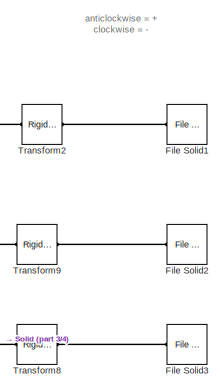
[diagram: TR ROBOT - part 1/4, top right region]
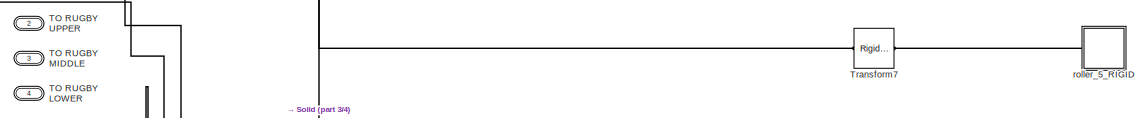
[diagram: TR ROBOT - part 2/4, central region]
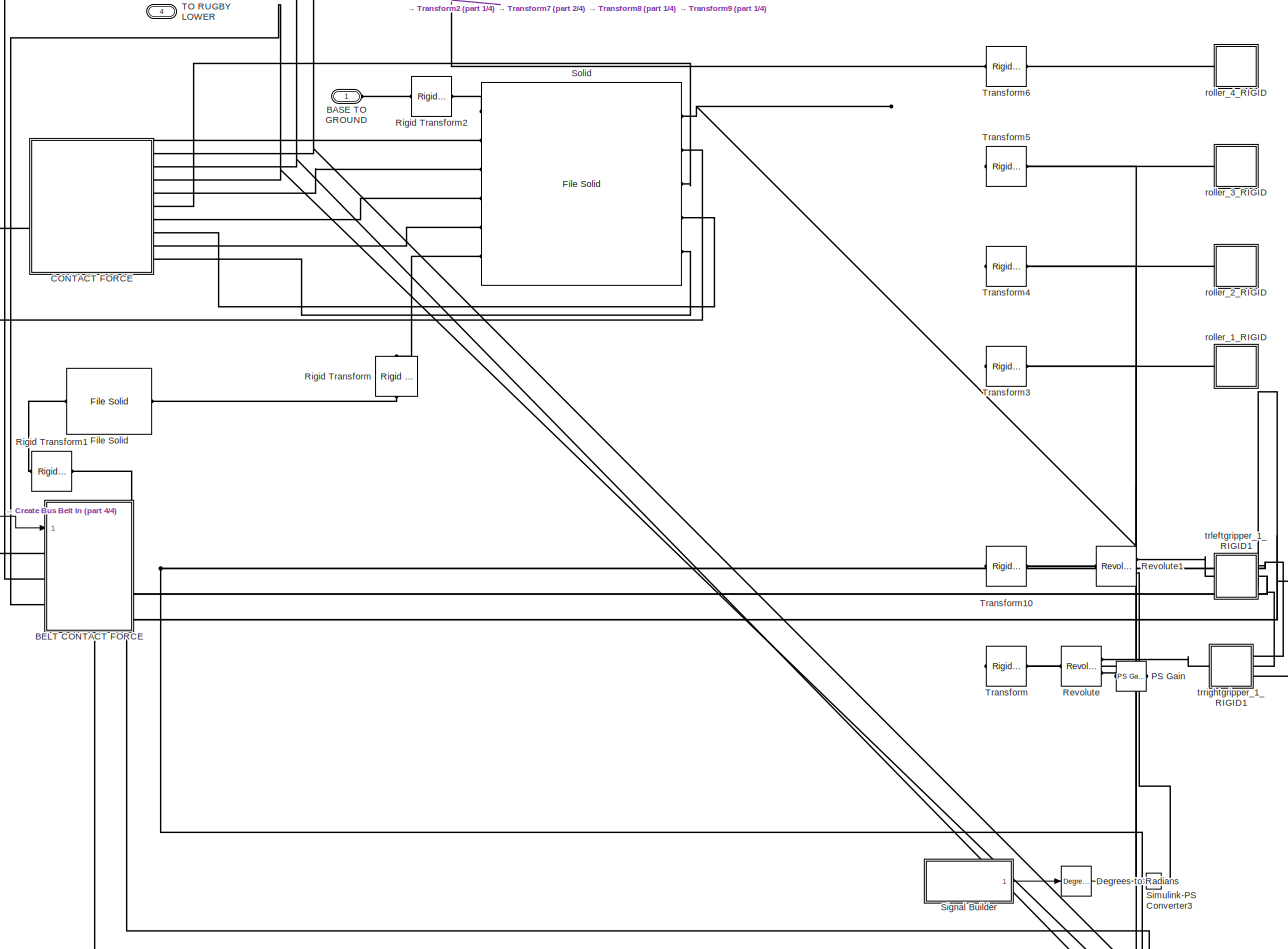
[diagram: TR ROBOT - part 3/4, full width, middle band]
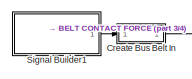
[diagram: TR ROBOT - part 4/4, bottom left region]
BLOCK [SubSystem] TR ROBOT
  Ports = [0, 0, 0, 0, 0, 4]
  RequestExecContextInheritance = off
BLOCK [PMIOPort] TR ROBOT/BASE TO GROUND
  Side = Left
BLOCK [SubSystem] TR ROBOT/BELT CONTACT FORCE
  Commented = on
  Ports = [1, 0, 0, 0, 0, 3, 1]
  RequestExecContextInheritance = off
BLOCK [PMIOPort] TR ROBOT/BELT CONTACT FORCE/BELT
  Side = Right
BLOCK [Inport] TR ROBOT/BELT CONTACT FORCE/In1
BLOCK [Reference] TR ROBOT/BELT CONTACT FORCE/Sphere to Belt Force  REF=Contact_Forces_Lib/3D/Composite
Forces/Sphere to Belt Force
  Ports = [1, 1, 0, 0, 0, 1, 1]
  SourceBlock = Contact_Forces_Lib/3D/Composite\nForces/Sphere to Belt Force
  SourceProductName = Simscape Multibody Contact Forces Library
  SourceType = Sphere to Belt Force
BLOCK [Reference] TR ROBOT/BELT CONTACT FORCE/Sphere to Belt Force1  REF=Contact_Forces_Lib/3D/Composite
Forces/Sphere to Belt Force
  Ports = [1, 1, 0, 0, 0, 1, 1]
  SourceBlock = Contact_Forces_Lib/3D/Composite\nForces/Sphere to Belt Force
  SourceProductName = Simscape Multibody Contact Forces Library
  SourceType = Sphere to Belt Force
BLOCK [Reference] TR ROBOT/BELT CONTACT FORCE/Sphere to Belt Force2  REF=Contact_Forces_Lib/3D/Composite
Forces/Sphere to Belt Force
  Ports = [1, 1, 0, 0, 0, 1, 1]
  SourceBlock = Contact_Forces_Lib/3D/Composite\nForces/Sphere to Belt Force
  SourceProductName = Simscape Multibody Contact Forces Library
  SourceType = Sphere to Belt Force
BLOCK [Terminator] TR ROBOT/BELT CONTACT FORCE/Terminator
BLOCK [Terminator] TR ROBOT/BELT CONTACT FORCE/Terminator1
BLOCK [Terminator] TR ROBOT/BELT CONTACT FORCE/Terminator2
BLOCK [PMIOPort] TR ROBOT/BELT CONTACT FORCE/lower
  Port = 4
  Side = Left
BLOCK [PMIOPort] TR ROBOT/BELT CONTACT FORCE/middle
  Port = 3
  Side = Left
BLOCK [PMIOPort] TR ROBOT/BELT CONTACT FORCE/upper
  Port = 2
  Side = Left
BLOCK [SubSystem] TR ROBOT/CONTACT FORCE
  Commented = on
  Ports = [0, 0, 0, 0, 0, 9, 2]
  RequestExecContextInheritance = off
BLOCK [PMIOPort] TR ROBOT/CONTACT FORCE/Conn10
  Port = 10
  Side = Left
BLOCK [PMIOPort] TR ROBOT/CONTACT FORCE/Conn11
  Port = 11
  Side = Left
BLOCK [PMIOPort] TR ROBOT/CONTACT FORCE/Conn4
  Port = 4
  Side = Right
BLOCK [PMIOPort] TR ROBOT/CONTACT FORCE/Conn5
  Port = 5
  Side = Right
BLOCK [PMIOPort] TR ROBOT/CONTACT FORCE/Conn6
  Port = 6
  Side = Left
BLOCK [PMIOPort] TR ROBOT/CONTACT FORCE/Conn7
  Port = 7
  Side = Left
BLOCK [PMIOPort] TR ROBOT/CONTACT FORCE/Conn8
  Port = 8
  Side = Left
BLOCK [PMIOPort] TR ROBOT/CONTACT FORCE/Conn9
  Port = 9
  Side = Left
BLOCK [PMIOPort] TR ROBOT/CONTACT FORCE/LOWER
  Port = 3
  Side = Left
BLOCK [PMIOPort] TR ROBOT/CONTACT FORCE/MIDDLE
  Port = 2
  Side = Left
BLOCK [SubSystem] TR ROBOT/CONTACT FORCE/PLATE CONTACT
  Ports = [0, 0, 0, 0, 0, 3, 1]
  RequestExecContextInheritance = off
BLOCK [PMIOPort] TR ROBOT/CONTACT FORCE/PLATE CONTACT/LOWER
  Port = 4
  Side = Left
BLOCK [PMIOPort] TR ROBOT/CONTACT FORCE/PLATE CONTACT/MIDDLE
  Port = 2
  Side = Left
BLOCK [Reference] TR ROBOT/CONTACT FORCE/PLATE CONTACT/Sphere to Plane Force  REF=Contact_Forces_Lib/3D/Sphere to Plane Force
  Ports = [0, 1, 0, 0, 0, 1, 1]
  SourceBlock = Contact_Forces_Lib/3D/Sphere to Plane Force
  SourceProductName = Simscape Multibody Contact Forces Library
  SourceType = Sphere to Plane Force
BLOCK [Reference] TR ROBOT/CONTACT FORCE/PLATE CONTACT/Sphere to Plane Force1  REF=Contact_Forces_Lib/3D/Sphere to Plane Force
  Ports = [0, 1, 0, 0, 0, 1, 1]
  SourceBlock = Contact_Forces_Lib/3D/Sphere to Plane Force
  SourceProductName = Simscape Multibody Contact Forces Library
  SourceType = Sphere to Plane Force
BLOCK [Reference] TR ROBOT/CONTACT FORCE/PLATE CONTACT/Sphere to Plane Force2  REF=Contact_Forces_Lib/3D/Sphere to Plane Force
  Ports = [0, 1, 0, 0, 0, 1, 1]
  SourceBlock = Contact_Forces_Lib/3D/Sphere to Plane Force
  SourceProductName = Simscape Multibody Contact Forces Library
  SourceType = Sphere to Plane Force
BLOCK [PMIOPort] TR ROBOT/CONTACT FORCE/PLATE CONTACT/TO PLATE
  Port = 3
  Side = Right
BLOCK [Terminator] TR ROBOT/CONTACT FORCE/PLATE CONTACT/Terminator
BLOCK [Terminator] TR ROBOT/CONTACT FORCE/PLATE CONTACT/Terminator1
BLOCK [Terminator] TR ROBOT/CONTACT FORCE/PLATE CONTACT/Terminator2
BLOCK [PMIOPort] TR ROBOT/CONTACT FORCE/PLATE CONTACT/UPPER 
  Side = Left
BLOCK [SubSystem] TR ROBOT/CONTACT FORCE/PLATE CONTACT1
  Ports = [0, 0, 0, 0, 0, 3, 1]
  RequestExecContextInheritance = off
BLOCK [PMIOPort] TR ROBOT/CONTACT FORCE/PLATE CONTACT1/LOWER
  Port = 4
  Side = Left
BLOCK [PMIOPort] TR ROBOT/CONTACT FORCE/PLATE CONTACT1/MIDDLE
  Port = 2
  Side = Left
BLOCK [Reference] TR ROBOT/CONTACT FORCE/PLATE CONTACT1/Sphere to Plane Force  REF=Contact_Forces_Lib/3D/Sphere to Plane Force
  Ports = [0, 1, 0, 0, 0, 1, 1]
  SourceBlock = Contact_Forces_Lib/3D/Sphere to Plane Force
  SourceProductName = Simscape Multibody Contact Forces Library
  SourceType = Sphere to Plane Force
BLOCK [Reference] TR ROBOT/CONTACT FORCE/PLATE CONTACT1/Sphere to Plane Force1  REF=Contact_Forces_Lib/3D/Sphere to Plane Force
  Ports = [0, 1, 0, 0, 0, 1, 1]
  SourceBlock = Contact_Forces_Lib/3D/Sphere to Plane Force
  SourceProductName = Simscape Multibody Contact Forces Library
  SourceType = Sphere to Plane Force
BLOCK [Reference] TR ROBOT/CONTACT FORCE/PLATE CONTACT1/Sphere to Plane Force2  REF=Contact_Forces_Lib/3D/Sphere to Plane Force
  Ports = [0, 1, 0, 0, 0, 1, 1]
  SourceBlock = Contact_Forces_Lib/3D/Sphere to Plane Force
  SourceProductName = Simscape Multibody Contact Forces Library
  SourceType = Sphere to Plane Force
BLOCK [PMIOPort] TR ROBOT/CONTACT FORCE/PLATE CONTACT1/TO PLATE
  Port = 3
  Side = Right
BLOCK [Terminator] TR ROBOT/CONTACT FORCE/PLATE CONTACT1/Terminator
BLOCK [Terminator] TR ROBOT/CONTACT FORCE/PLATE CONTACT1/Terminator1
BLOCK [Terminator] TR ROBOT/CONTACT FORCE/PLATE CONTACT1/Terminator2
BLOCK [PMIOPort] TR ROBOT/CONTACT FORCE/PLATE CONTACT1/UPPER 
  Side = Left
BLOCK [SubSystem] TR ROBOT/CONTACT FORCE/PLATE CONTACT2
  Ports = [0, 0, 0, 0, 0, 1, 1]
  RequestExecContextInheritance = off
BLOCK [PMIOPort] TR ROBOT/CONTACT FORCE/PLATE CONTACT2/MIDDLE
  Side = Left
BLOCK [Reference] TR ROBOT/CONTACT FORCE/PLATE CONTACT2/Sphere to Plane Force  REF=Contact_Forces_Lib/3D/Sphere to Plane Force
  Ports = [0, 1, 0, 0, 0, 1, 1]
  SourceBlock = Contact_Forces_Lib/3D/Sphere to Plane Force
  SourceProductName = Simscape Multibody Contact Forces Library
  SourceType = Sphere to Plane Force
BLOCK [PMIOPort] TR ROBOT/CONTACT FORCE/PLATE CONTACT2/TO PLATE
  Port = 2
  Side = Right
BLOCK [Terminator] TR ROBOT/CONTACT FORCE/PLATE CONTACT2/Terminator1
BLOCK [SubSystem] TR ROBOT/CONTACT FORCE/PLATE CONTACT3
  Ports = [0, 0, 0, 0, 0, 3, 1]
  RequestExecContextInheritance = off
BLOCK [PMIOPort] TR ROBOT/CONTACT FORCE/PLATE CONTACT3/LOWER
  Port = 4
  Side = Left
BLOCK [PMIOPort] TR ROBOT/CONTACT FORCE/PLATE CONTACT3/MIDDLE
  Port = 2
  Side = Left
BLOCK [Reference] TR ROBOT/CONTACT FORCE/PLATE CONTACT3/Sphere to Plane Force  REF=Contact_Forces_Lib/3D/Sphere to Plane Force
  Ports = [0, 1, 0, 0, 0, 1, 1]
  SourceBlock = Contact_Forces_Lib/3D/Sphere to Plane Force
  SourceProductName = Simscape Multibody Contact Forces Library
  SourceType = Sphere to Plane Force
BLOCK [Reference] TR ROBOT/CONTACT FORCE/PLATE CONTACT3/Sphere to Plane Force1  REF=Contact_Forces_Lib/3D/Sphere to Plane Force
  Ports = [0, 1, 0, 0, 0, 1, 1]
  SourceBlock = Contact_Forces_Lib/3D/Sphere to Plane Force
  SourceProductName = Simscape Multibody Contact Forces Library
  SourceType = Sphere to Plane Force
BLOCK [Reference] TR ROBOT/CONTACT FORCE/PLATE CONTACT3/Sphere to Plane Force2  REF=Contact_Forces_Lib/3D/Sphere to Plane Force
  Ports = [0, 1, 0, 0, 0, 1, 1]
  SourceBlock = Contact_Forces_Lib/3D/Sphere to Plane Force
  SourceProductName = Simscape Multibody Contact Forces Library
  SourceType = Sphere to Plane Force
BLOCK [PMIOPort] TR ROBOT/CONTACT FORCE/PLATE CONTACT3/TO PLATE
  Port = 3
  Side = Right
BLOCK [Terminator] TR ROBOT/CONTACT FORCE/PLATE CONTACT3/Terminator
BLOCK [Terminator] TR ROBOT/CONTACT FORCE/PLATE CONTACT3/Terminator1
BLOCK [Terminator] TR ROBOT/CONTACT FORCE/PLATE CONTACT3/Terminator2
BLOCK [PMIOPort] TR ROBOT/CONTACT FORCE/PLATE CONTACT3/UPPER 
  Side = Left
BLOCK [SubSystem] TR ROBOT/CONTACT FORCE/PLATE CONTACT4
  Ports = [0, 0, 0, 0, 0, 1, 1]
  RequestExecContextInheritance = off
BLOCK [PMIOPort] TR ROBOT/CONTACT FORCE/PLATE CONTACT4/MIDDLE
  Side = Left
BLOCK [Reference] TR ROBOT/CONTACT FORCE/PLATE CONTACT4/Sphere to Plane Force  REF=Contact_Forces_Lib/3D/Sphere to Plane Force
  Ports = [0, 1, 0, 0, 0, 1, 1]
  SourceBlock = Contact_Forces_Lib/3D/Sphere to Plane Force
  SourceProductName = Simscape Multibody Contact Forces Library
  SourceType = Sphere to Plane Force
BLOCK [PMIOPort] TR ROBOT/CONTACT FORCE/PLATE CONTACT4/TO PLATE
  Port = 2
  Side = Right
BLOCK [Terminator] TR ROBOT/CONTACT FORCE/PLATE CONTACT4/Terminator1
BLOCK [SubSystem] TR ROBOT/CONTACT FORCE/PLATE CONTACT5
  Ports = [0, 0, 0, 0, 0, 3, 1]
  RequestExecContextInheritance = off
BLOCK [PMIOPort] TR ROBOT/CONTACT FORCE/PLATE CONTACT5/LOWER
  Port = 4
  Side = Left
BLOCK [PMIOPort] TR ROBOT/CONTACT FORCE/PLATE CONTACT5/MIDDLE
  Port = 2
  Side = Left
BLOCK [Reference] TR ROBOT/CONTACT FORCE/PLATE CONTACT5/Sphere to Plane Force  REF=Contact_Forces_Lib/3D/Sphere to Plane Force
  Ports = [0, 1, 0, 0, 0, 1, 1]
  SourceBlock = Contact_Forces_Lib/3D/Sphere to Plane Force
  SourceProductName = Simscape Multibody Contact Forces Library
  SourceType = Sphere to Plane Force
BLOCK [Reference] TR ROBOT/CONTACT FORCE/PLATE CONTACT5/Sphere to Plane Force1  REF=Contact_Forces_Lib/3D/Sphere to Plane Force
  Ports = [0, 1, 0, 0, 0, 1, 1]
  SourceBlock = Contact_Forces_Lib/3D/Sphere to Plane Force
  SourceProductName = Simscape Multibody Contact Forces Library
  SourceType = Sphere to Plane Force
BLOCK [Reference] TR ROBOT/CONTACT FORCE/PLATE CONTACT5/Sphere to Plane Force2  REF=Contact_Forces_Lib/3D/Sphere to Plane Force
  Ports = [0, 1, 0, 0, 0, 1, 1]
  SourceBlock = Contact_Forces_Lib/3D/Sphere to Plane Force
  SourceProductName = Simscape Multibody Contact Forces Library
  SourceType = Sphere to Plane Force
BLOCK [PMIOPort] TR ROBOT/CONTACT FORCE/PLATE CONTACT5/TO PLATE
  Port = 3
  Side = Right
BLOCK [Terminator] TR ROBOT/CONTACT FORCE/PLATE CONTACT5/Terminator
BLOCK [Terminator] TR ROBOT/CONTACT FORCE/PLATE CONTACT5/Terminator1
BLOCK [Terminator] TR ROBOT/CONTACT FORCE/PLATE CONTACT5/Terminator2
BLOCK [PMIOPort] TR ROBOT/CONTACT FORCE/PLATE CONTACT5/UPPER 
  Side = Left
BLOCK [SubSystem] TR ROBOT/CONTACT FORCE/ROUND PLATE CONTACT
  Ports = [0, 0, 0, 0, 0, 3, 1]
  RequestExecContextInheritance = off
BLOCK [PMIOPort] TR ROBOT/CONTACT FORCE/ROUND PLATE CONTACT/LOWER
  Port = 4
  Side = Left
BLOCK [PMIOPort] TR ROBOT/CONTACT FORCE/ROUND PLATE CONTACT/MIDDLE
  Port = 2
  Side = Left
BLOCK [Reference] TR ROBOT/CONTACT FORCE/ROUND PLATE CONTACT/Sphere to Tube Force  REF=Contact_Forces_Lib/3D/Sphere to Tube Force
  Ports = [0, 1, 0, 0, 0, 1, 1]
  SourceBlock = Contact_Forces_Lib/3D/Sphere to Tube Force
  SourceProductName = Simscape Multibody Contact Forces Library
  SourceType = Sphere to Tube Force
BLOCK [Reference] TR ROBOT/CONTACT FORCE/ROUND PLATE CONTACT/Sphere to Tube Force1  REF=Contact_Forces_Lib/3D/Sphere to Tube Force
  Ports = [0, 1, 0, 0, 0, 1, 1]
  SourceBlock = Contact_Forces_Lib/3D/Sphere to Tube Force
  SourceProductName = Simscape Multibody Contact Forces Library
  SourceType = Sphere to Tube Force
BLOCK [Reference] TR ROBOT/CONTACT FORCE/ROUND PLATE CONTACT/Sphere to Tube Force2  REF=Contact_Forces_Lib/3D/Sphere to Tube Force
  Ports = [0, 1, 0, 0, 0, 1, 1]
  SourceBlock = Contact_Forces_Lib/3D/Sphere to Tube Force
  SourceProductName = Simscape Multibody Contact Forces Library
  SourceType = Sphere to Tube Force
BLOCK [PMIOPort] TR ROBOT/CONTACT FORCE/ROUND PLATE CONTACT/TO PLATE
  Port = 3
  Side = Right
BLOCK [Terminator] TR ROBOT/CONTACT FORCE/ROUND PLATE CONTACT/Terminator
BLOCK [Terminator] TR ROBOT/CONTACT FORCE/ROUND PLATE CONTACT/Terminator1
BLOCK [Terminator] TR ROBOT/CONTACT FORCE/ROUND PLATE CONTACT/Terminator2
BLOCK [PMIOPort] TR ROBOT/CONTACT FORCE/ROUND PLATE CONTACT/UPPER 
  Side = Left
BLOCK [SubSystem] TR ROBOT/CONTACT FORCE/RUGBY RECEIVER
  Ports = [0, 0, 0, 0, 0, 3, 1]
  RequestExecContextInheritance = off
BLOCK [PMIOPort] TR ROBOT/CONTACT FORCE/RUGBY RECEIVER/LOWER
  Port = 4
  Side = Left
BLOCK [PMIOPort] TR ROBOT/CONTACT FORCE/RUGBY RECEIVER/MIDDLE
  Port = 2
  Side = Left
BLOCK [Reference] TR ROBOT/CONTACT FORCE/RUGBY RECEIVER/Rigid Transform  REF=sm_lib/Frames and
Transforms/Rigid
Transform
  Ports = [0, 0, 0, 0, 0, 1, 1]
  SourceBlock = sm_lib/Frames and\nTransforms/Rigid\nTransform
  SourceProductBaseCode = MS
  SourceType = Rigid\nTransform
BLOCK [Reference] TR ROBOT/CONTACT FORCE/RUGBY RECEIVER/Rigid Transform1  REF=sm_lib/Frames and
Transforms/Rigid
Transform
  Ports = [0, 0, 0, 0, 0, 1, 1]
  SourceBlock = sm_lib/Frames and\nTransforms/Rigid\nTransform
  SourceProductBaseCode = MS
  SourceType = Rigid\nTransform
BLOCK [Reference] TR ROBOT/CONTACT FORCE/RUGBY RECEIVER/Rigid Transform2  REF=sm_lib/Frames and
Transforms/Rigid
Transform
  Ports = [0, 0, 0, 0, 0, 1, 1]
  SourceBlock = sm_lib/Frames and\nTransforms/Rigid\nTransform
  SourceProductBaseCode = MS
  SourceType = Rigid\nTransform
BLOCK [Reference] TR ROBOT/CONTACT FORCE/RUGBY RECEIVER/Rigid Transform3  REF=sm_lib/Frames and
Transforms/Rigid
Transform
  Ports = [0, 0, 0, 0, 0, 1, 1]
  SourceBlock = sm_lib/Frames and\nTransforms/Rigid\nTransform
  SourceProductBaseCode = MS
  SourceType = Rigid\nTransform
BLOCK [Reference] TR ROBOT/CONTACT FORCE/RUGBY RECEIVER/Rigid Transform4  REF=sm_lib/Frames and
Transforms/Rigid
Transform
  Ports = [0, 0, 0, 0, 0, 1, 1]
  SourceBlock = sm_lib/Frames and\nTransforms/Rigid\nTransform
  SourceProductBaseCode = MS
  SourceType = Rigid\nTransform
BLOCK [Reference] TR ROBOT/CONTACT FORCE/RUGBY RECEIVER/Rigid Transform5  REF=sm_lib/Frames and
Transforms/Rigid
Transform
  Ports = [0, 0, 0, 0, 0, 1, 1]
  SourceBlock = sm_lib/Frames and\nTransforms/Rigid\nTransform
  SourceProductBaseCode = MS
  SourceType = Rigid\nTransform
BLOCK [Reference] TR ROBOT/CONTACT FORCE/RUGBY RECEIVER/Sphere to Cone Force  REF=Contact_Forces_Lib/3D/Sphere to Cone Force
  Ports = [0, 1, 0, 0, 0, 1, 1]
  SourceBlock = Contact_Forces_Lib/3D/Sphere to Cone Force
  SourceProductName = Simscape Multibody Contact Forces Library
  SourceType = Sphere to Cone Force
BLOCK [Reference] TR ROBOT/CONTACT FORCE/RUGBY RECEIVER/Sphere to Cone Force1  REF=Contact_Forces_Lib/3D/Sphere to Cone Force
  Ports = [0, 1, 0, 0, 0, 1, 1]
  SourceBlock = Contact_Forces_Lib/3D/Sphere to Cone Force
  SourceProductName = Simscape Multibody Contact Forces Library
  SourceType = Sphere to Cone Force
BLOCK [Reference] TR ROBOT/CONTACT FORCE/RUGBY RECEIVER/Sphere to Cone Force2  REF=Contact_Forces_Lib/3D/Sphere to Cone Force
  Ports = [0, 1, 0, 0, 0, 1, 1]
  SourceBlock = Contact_Forces_Lib/3D/Sphere to Cone Force
  SourceProductName = Simscape Multibody Contact Forces Library
  SourceType = Sphere to Cone Force
BLOCK [Reference] TR ROBOT/CONTACT FORCE/RUGBY RECEIVER/Sphere to Cone Force3  REF=Contact_Forces_Lib/3D/Sphere to Cone Force
  Ports = [0, 1, 0, 0, 0, 1, 1]
  SourceBlock = Contact_Forces_Lib/3D/Sphere to Cone Force
  SourceProductName = Simscape Multibody Contact Forces Library
  SourceType = Sphere to Cone Force
BLOCK [Reference] TR ROBOT/CONTACT FORCE/RUGBY RECEIVER/Sphere to Cone Force4  REF=Contact_Forces_Lib/3D/Sphere to Cone Force
  Ports = [0, 1, 0, 0, 0, 1, 1]
  SourceBlock = Contact_Forces_Lib/3D/Sphere to Cone Force
  SourceProductName = Simscape Multibody Contact Forces Library
  SourceType = Sphere to Cone Force
BLOCK [Reference] TR ROBOT/CONTACT FORCE/RUGBY RECEIVER/Sphere to Cone Force5  REF=Contact_Forces_Lib/3D/Sphere to Cone Force
  Ports = [0, 1, 0, 0, 0, 1, 1]
  SourceBlock = Contact_Forces_Lib/3D/Sphere to Cone Force
  SourceProductName = Simscape Multibody Contact Forces Library
  SourceType = Sphere to Cone Force
BLOCK [PMIOPort] TR ROBOT/CONTACT FORCE/RUGBY RECEIVER/TO PLATE
  Port = 3
  Side = Right
BLOCK [Terminator] TR ROBOT/CONTACT FORCE/RUGBY RECEIVER/Terminator
BLOCK [Terminator] TR ROBOT/CONTACT FORCE/RUGBY RECEIVER/Terminator1
BLOCK [Terminator] TR ROBOT/CONTACT FORCE/RUGBY RECEIVER/Terminator2
BLOCK [Terminator] TR ROBOT/CONTACT FORCE/RUGBY RECEIVER/Terminator3
BLOCK [Terminator] TR ROBOT/CONTACT FORCE/RUGBY RECEIVER/Terminator4
BLOCK [Terminator] TR ROBOT/CONTACT FORCE/RUGBY RECEIVER/Terminator5
BLOCK [PMIOPort] TR ROBOT/CONTACT FORCE/RUGBY RECEIVER/UPPER 
  Side = Left
BLOCK [Reference] TR ROBOT/CONTACT FORCE/Rigid Transform1  REF=sm_lib/Frames and
Transforms/Rigid
Transform
  Ports = [0, 0, 0, 0, 0, 1, 1]
  SourceBlock = sm_lib/Frames and\nTransforms/Rigid\nTransform
  SourceProductBaseCode = MS
  SourceType = Rigid\nTransform
BLOCK [Reference] TR ROBOT/CONTACT FORCE/Rigid Transform2  REF=sm_lib/Frames and
Transforms/Rigid
Transform
  Ports = [0, 0, 0, 0, 0, 1, 1]
  SourceBlock = sm_lib/Frames and\nTransforms/Rigid\nTransform
  SourceProductBaseCode = MS
  SourceType = Rigid\nTransform
BLOCK [Reference] TR ROBOT/CONTACT FORCE/Rigid Transform3  REF=sm_lib/Frames and
Transforms/Rigid
Transform
  Ports = [0, 0, 0, 0, 0, 1, 1]
  SourceBlock = sm_lib/Frames and\nTransforms/Rigid\nTransform
  SourceProductBaseCode = MS
  SourceType = Rigid\nTransform
BLOCK [Reference] TR ROBOT/CONTACT FORCE/Rigid Transform4  REF=sm_lib/Frames and
Transforms/Rigid
Transform
  Ports = [0, 0, 0, 0, 0, 1, 1]
  SourceBlock = sm_lib/Frames and\nTransforms/Rigid\nTransform
  SourceProductBaseCode = MS
  SourceType = Rigid\nTransform
BLOCK [Reference] TR ROBOT/CONTACT FORCE/Rigid Transform5  REF=sm_lib/Frames and
Transforms/Rigid
Transform
  Ports = [0, 0, 0, 0, 0, 1, 1]
  SourceBlock = sm_lib/Frames and\nTransforms/Rigid\nTransform
  SourceProductBaseCode = MS
  SourceType = Rigid\nTransform
BLOCK [Reference] TR ROBOT/CONTACT FORCE/Rigid Transform6  REF=sm_lib/Frames and
Transforms/Rigid
Transform
  Ports = [0, 0, 0, 0, 0, 1, 1]
  SourceBlock = sm_lib/Frames and\nTransforms/Rigid\nTransform
  SourceProductBaseCode = MS
  SourceType = Rigid\nTransform
BLOCK [Reference] TR ROBOT/CONTACT FORCE/Rigid Transform7  REF=sm_lib/Frames and
Transforms/Rigid
Transform
  Ports = [0, 0, 0, 0, 0, 1, 1]
  SourceBlock = sm_lib/Frames and\nTransforms/Rigid\nTransform
  SourceProductBaseCode = MS
  SourceType = Rigid\nTransform
BLOCK [PMIOPort] TR ROBOT/CONTACT FORCE/UPPER
  Side = Left
BLOCK [SubSystem] TR ROBOT/Create Bus Belt In
  Commented = on
  Ports = [1, 1]
  RequestExecContextInheritance = off
BLOCK [Gain] TR ROBOT/Create Bus Belt In/Belt Speed
  Gain = -1
BLOCK [BusCreator] TR ROBOT/Create Bus Belt In/Bus Creator
  DisplayOption = bar
  InheritFromInputs = on
  Inputs = 4
  Ports = [4, 1]
BLOCK [Constant] TR ROBOT/Create Bus Belt In/Constant
BLOCK [Constant] TR ROBOT/Create Bus Belt In/Constant1
  Value = 0
BLOCK [Constant] TR ROBOT/Create Bus Belt In/Constant2
  Value = 0
BLOCK [Inport] TR ROBOT/Create Bus Belt In/On
BLOCK [Outport] TR ROBOT/Create Bus Belt In/bus
  VectorParamsAs1DForOutWhenUnconnected = off
BLOCK [Reference] TR ROBOT/Degrees to Radians  REF=simulink_extras/Transformations/Degrees to
Radians
  Ports = [1, 1]
  SourceBlock = simulink_extras/Transformations/Degrees to\nRadians
  SourceProductBaseCode = SL
  SourceType = DegreesToRadians
BLOCK [Reference] TR ROBOT/File Solid  REF=sm_lib/Body Elements/File Solid
  Ports = [0, 0, 0, 0, 0, 1, 1]
  SourceBlock = sm_lib/Body Elements/File Solid
  SourceProductBaseCode = MS
  SourceType = File Solid
BLOCK [Reference] TR ROBOT/File Solid1  REF=sm_lib/Body Elements/File Solid
  Ports = [0, 0, 0, 0, 0, 1]
  SourceBlock = sm_lib/Body Elements/File Solid
  SourceProductBaseCode = MS
  SourceType = File Solid
BLOCK [Reference] TR ROBOT/File Solid2  REF=sm_lib/Body Elements/File Solid
  Ports = [0, 0, 0, 0, 0, 1]
  SourceBlock = sm_lib/Body Elements/File Solid
  SourceProductBaseCode = MS
  SourceType = File Solid
BLOCK [Reference] TR ROBOT/File Solid3  REF=sm_lib/Body Elements/File Solid
  Ports = [0, 0, 0, 0, 0, 1]
  SourceBlock = sm_lib/Body Elements/File Solid
  SourceProductBaseCode = MS
  SourceType = File Solid
BLOCK [Reference] TR ROBOT/PS Gain  REF=fl_lib/Physical Signals/Functions/PS Gain
  Ports = [0, 0, 0, 0, 0, 1, 1]
  SourceBlock = fl_lib/Physical Signals/Functions/PS Gain
  SourceProductBaseCode = SS
  SourceType = PS Gain
BLOCK [Reference] TR ROBOT/Revolute  REF=sm_lib/Joints/Revolute Joint
  Ports = [0, 0, 0, 0, 0, 2, 1]
  SourceBlock = sm_lib/Joints/Revolute Joint
  SourceProductBaseCode = MS
  SourceType = Revolute Joint
BLOCK [Reference] TR ROBOT/Revolute1  REF=sm_lib/Joints/Revolute Joint
  Ports = [0, 0, 0, 0, 0, 2, 1]
  SourceBlock = sm_lib/Joints/Revolute Joint
  SourceProductBaseCode = MS
  SourceType = Revolute Joint
BLOCK [Reference] TR ROBOT/Rigid Transform  REF=sm_lib/Frames and
Transforms/Rigid
Transform
  NameLocation = left
  Ports = [0, 0, 0, 0, 0, 1, 1]
  SourceBlock = sm_lib/Frames and\nTransforms/Rigid\nTransform
  SourceProductBaseCode = MS
  SourceType = Rigid\nTransform
BLOCK [Reference] TR ROBOT/Rigid Transform1  REF=sm_lib/Frames and
Transforms/Rigid
Transform
  Ports = [0, 0, 0, 0, 0, 1, 1]
  SourceBlock = sm_lib/Frames and\nTransforms/Rigid\nTransform
  SourceProductBaseCode = MS
  SourceType = Rigid\nTransform
BLOCK [Reference] TR ROBOT/Rigid Transform2  REF=sm_lib/Frames and
Transforms/Rigid
Transform
  Ports = [0, 0, 0, 0, 0, 1, 1]
  SourceBlock = sm_lib/Frames and\nTransforms/Rigid\nTransform
  SourceProductBaseCode = MS
  SourceType = Rigid\nTransform
BLOCK [SubSystem] TR ROBOT/Signal Builder
  ClipboardFcn = sigbuilder_block('clipboard');
  CloseFcn = sigbuilder_block('close');
  ContinueFcn = sigbuilder_block('continue');
  CopyFcn = sigbuilder_block('copy');
  DeleteFcn = sigbuilder_block('delete');
  LoadFcn = sigbuilder_block('load');
  MaskHideContents = on
  ModelCloseFcn = sigbuilder_block('modelClose');
  NameChangeFcn = sigbuilder_block('namechange');
  OpenFcn = sigbuilder_block('open',[437.6 199.2 550.4 400 ]);
  PauseFcn = sigbuilder_block('pause');
  Ports = [0, 1]
  PreSaveFcn = sigbuilder_block('preSave');
  RequestExecContextInheritance = off
  StartFcn = sigbuilder_block('start');
  StopFcn = sigbuilder_block('stop');
  Tag = STV Subsys
BLOCK [Demux] TR ROBOT/Signal Builder/Demux
  DisplayOption = none
  Outputs = 1
  Ports = [1, 1]
  Tag = STV Demux
BLOCK [FromWorkspace] TR ROBOT/Signal Builder/FromWs
  Tag = STV FromWs
  VariableName = tuvar
BLOCK [Outport] TR ROBOT/Signal Builder/Signal 1
  Tag = STV Outport
BLOCK [SubSystem] TR ROBOT/Signal Builder1
  ClipboardFcn = sigbuilder_block('clipboard');
  CloseFcn = sigbuilder_block('close');
  Commented = on
  ContinueFcn = sigbuilder_block('continue');
  CopyFcn = sigbuilder_block('copy');
  DeleteFcn = sigbuilder_block('delete');
  LoadFcn = sigbuilder_block('load');
  MaskHideContents = on
  ModelCloseFcn = sigbuilder_block('modelClose');
  NameChangeFcn = sigbuilder_block('namechange');
  OpenFcn = sigbuilder_block('open',[343.5 15 550.5 399.75 ]);
  PauseFcn = sigbuilder_block('pause');
  Ports = [0, 1]
  PreSaveFcn = sigbuilder_block('preSave');
  RequestExecContextInheritance = off
  StartFcn = sigbuilder_block('start');
  StopFcn = sigbuilder_block('stop');
  Tag = STV Subsys
BLOCK [Demux] TR ROBOT/Signal Builder1/Demux
  DisplayOption = none
  Outputs = 1
  Ports = [1, 1]
  Tag = STV Demux
BLOCK [FromWorkspace] TR ROBOT/Signal Builder1/FromWs
  Tag = STV FromWs
  VariableName = tuvar
BLOCK [Outport] TR ROBOT/Signal Builder1/Signal 1
  Tag = STV Outport
BLOCK [Reference] TR ROBOT/Simulink-PS Converter3  REF=nesl_utility/Simulink-PS
Converter
  Ports = [1, 0, 0, 0, 0, 0, 1]
  SourceBlock = nesl_utility/Simulink-PS\nConverter
  SourceProductBaseCode = SS
  SourceType = Simulink-PS\nConverter
BLOCK [Reference] TR ROBOT/Solid  REF=sm_lib/Body Elements/File Solid
  Ports = [0, 0, 0, 0, 0, 6, 5]
  SourceBlock = sm_lib/Body Elements/File Solid
  SourceProductBaseCode = MS
  SourceType = File Solid
BLOCK [PMIOPort] TR ROBOT/TO RUGBY LOWER
  Port = 4
  Side = Left
BLOCK [PMIOPort] TR ROBOT/TO RUGBY MIDDLE
  Port = 3
  Side = Left
BLOCK [PMIOPort] TR ROBOT/TO RUGBY UPPER
  Port = 2
  Side = Left
BLOCK [Reference] TR ROBOT/Transform  REF=sm_lib/Frames and
Transforms/Rigid
Transform
  Ports = [0, 0, 0, 0, 0, 1, 1]
  SourceBlock = sm_lib/Frames and\nTransforms/Rigid\nTransform
  SourceProductBaseCode = MS
  SourceType = Rigid\nTransform
BLOCK [Reference] TR ROBOT/Transform10  REF=sm_lib/Frames and
Transforms/Rigid
Transform
  Ports = [0, 0, 0, 0, 0, 1, 1]
  SourceBlock = sm_lib/Frames and\nTransforms/Rigid\nTransform
  SourceProductBaseCode = MS
  SourceType = Rigid\nTransform
BLOCK [Reference] TR ROBOT/Transform2  REF=sm_lib/Frames and
Transforms/Rigid
Transform
  Ports = [0, 0, 0, 0, 0, 1, 1]
  SourceBlock = sm_lib/Frames and\nTransforms/Rigid\nTransform
  SourceProductBaseCode = MS
  SourceType = Rigid\nTransform
BLOCK [Reference] TR ROBOT/Transform3  REF=sm_lib/Frames and
Transforms/Rigid
Transform
  Ports = [0, 0, 0, 0, 0, 1, 1]
  SourceBlock = sm_lib/Frames and\nTransforms/Rigid\nTransform
  SourceProductBaseCode = MS
  SourceType = Rigid\nTransform
BLOCK [Reference] TR ROBOT/Transform4  REF=sm_lib/Frames and
Transforms/Rigid
Transform
  Ports = [0, 0, 0, 0, 0, 1, 1]
  SourceBlock = sm_lib/Frames and\nTransforms/Rigid\nTransform
  SourceProductBaseCode = MS
  SourceType = Rigid\nTransform
BLOCK [Reference] TR ROBOT/Transform5  REF=sm_lib/Frames and
Transforms/Rigid
Transform
  Ports = [0, 0, 0, 0, 0, 1, 1]
  SourceBlock = sm_lib/Frames and\nTransforms/Rigid\nTransform
  SourceProductBaseCode = MS
  SourceType = Rigid\nTransform
BLOCK [Reference] TR ROBOT/Transform6  REF=sm_lib/Frames and
Transforms/Rigid
Transform
  Ports = [0, 0, 0, 0, 0, 1, 1]
  SourceBlock = sm_lib/Frames and\nTransforms/Rigid\nTransform
  SourceProductBaseCode = MS
  SourceType = Rigid\nTransform
BLOCK [Reference] TR ROBOT/Transform7  REF=sm_lib/Frames and
Transforms/Rigid
Transform
  Ports = [0, 0, 0, 0, 0, 1, 1]
  SourceBlock = sm_lib/Frames and\nTransforms/Rigid\nTransform
  SourceProductBaseCode = MS
  SourceType = Rigid\nTransform
BLOCK [Reference] TR ROBOT/Transform8  REF=sm_lib/Frames and
Transforms/Rigid
Transform
  Ports = [0, 0, 0, 0, 0, 1, 1]
  SourceBlock = sm_lib/Frames and\nTransforms/Rigid\nTransform
  SourceProductBaseCode = MS
  SourceType = Rigid\nTransform
BLOCK [Reference] TR ROBOT/Transform9  REF=sm_lib/Frames and
Transforms/Rigid
Transform
  Ports = [0, 0, 0, 0, 0, 1, 1]
  SourceBlock = sm_lib/Frames and\nTransforms/Rigid\nTransform
  SourceProductBaseCode = MS
  SourceType = Rigid\nTransform
BLOCK [SubSystem] TR ROBOT/roller_1_RIGID
  Ports = [0, 0, 0, 0, 0, 0, 1]
  RequestExecContextInheritance = off
BLOCK [PMIOPort] TR ROBOT/roller_1_RIGID/F
  Side = Right
BLOCK [Reference] TR ROBOT/roller_1_RIGID/Solid  REF=sm_lib/Body Elements/File Solid
  Ports = [0, 0, 0, 0, 0, 0, 1]
  SourceBlock = sm_lib/Body Elements/File Solid
  SourceProductBaseCode = MS
  SourceType = File Solid
BLOCK [Reference] TR ROBOT/roller_1_RIGID/Transform  REF=sm_lib/Frames and
Transforms/Rigid
Transform
  Ports = [0, 0, 0, 0, 0, 1, 1]
  SourceBlock = sm_lib/Frames and\nTransforms/Rigid\nTransform
  SourceProductBaseCode = MS
  SourceType = Rigid\nTransform
BLOCK [SubSystem] TR ROBOT/roller_2_RIGID
  Ports = [0, 0, 0, 0, 0, 1]
  RequestExecContextInheritance = off
BLOCK [PMIOPort] TR ROBOT/roller_2_RIGID/F
  Side = Left
BLOCK [Reference] TR ROBOT/roller_2_RIGID/Solid  REF=sm_lib/Body Elements/File Solid
  Ports = [0, 0, 0, 0, 0, 0, 1]
  SourceBlock = sm_lib/Body Elements/File Solid
  SourceProductBaseCode = MS
  SourceType = File Solid
BLOCK [Reference] TR ROBOT/roller_2_RIGID/Transform  REF=sm_lib/Frames and
Transforms/Rigid
Transform
  Ports = [0, 0, 0, 0, 0, 1, 1]
  SourceBlock = sm_lib/Frames and\nTransforms/Rigid\nTransform
  SourceProductBaseCode = MS
  SourceType = Rigid\nTransform
BLOCK [SubSystem] TR ROBOT/roller_3_RIGID
  Ports = [0, 0, 0, 0, 0, 1]
  RequestExecContextInheritance = off
BLOCK [PMIOPort] TR ROBOT/roller_3_RIGID/F
  Side = Left
BLOCK [Reference] TR ROBOT/roller_3_RIGID/Solid  REF=sm_lib/Body Elements/File Solid
  Ports = [0, 0, 0, 0, 0, 0, 1]
  SourceBlock = sm_lib/Body Elements/File Solid
  SourceProductBaseCode = MS
  SourceType = File Solid
BLOCK [Reference] TR ROBOT/roller_3_RIGID/Transform  REF=sm_lib/Frames and
Transforms/Rigid
Transform
  Ports = [0, 0, 0, 0, 0, 1, 1]
  SourceBlock = sm_lib/Frames and\nTransforms/Rigid\nTransform
  SourceProductBaseCode = MS
  SourceType = Rigid\nTransform
BLOCK [SubSystem] TR ROBOT/roller_4_RIGID
  Ports = [0, 0, 0, 0, 0, 1]
  RequestExecContextInheritance = off
BLOCK [PMIOPort] TR ROBOT/roller_4_RIGID/F
  Side = Left
BLOCK [Reference] TR ROBOT/roller_4_RIGID/Solid  REF=sm_lib/Body Elements/File Solid
  Ports = [0, 0, 0, 0, 0, 0, 1]
  SourceBlock = sm_lib/Body Elements/File Solid
  SourceProductBaseCode = MS
  SourceType = File Solid
BLOCK [Reference] TR ROBOT/roller_4_RIGID/Transform  REF=sm_lib/Frames and
Transforms/Rigid
Transform
  Ports = [0, 0, 0, 0, 0, 1, 1]
  SourceBlock = sm_lib/Frames and\nTransforms/Rigid\nTransform
  SourceProductBaseCode = MS
  SourceType = Rigid\nTransform
BLOCK [SubSystem] TR ROBOT/roller_5_RIGID
  Ports = [0, 0, 0, 0, 0, 1]
  RequestExecContextInheritance = off
BLOCK [PMIOPort] TR ROBOT/roller_5_RIGID/F
  Side = Left
BLOCK [Reference] TR ROBOT/roller_5_RIGID/Solid  REF=sm_lib/Body Elements/File Solid
  Ports = [0, 0, 0, 0, 0, 0, 1]
  SourceBlock = sm_lib/Body Elements/File Solid
  SourceProductBaseCode = MS
  SourceType = File Solid
BLOCK [Reference] TR ROBOT/roller_5_RIGID/Transform  REF=sm_lib/Frames and
Transforms/Rigid
Transform
  Ports = [0, 0, 0, 0, 0, 1, 1]
  SourceBlock = sm_lib/Frames and\nTransforms/Rigid\nTransform
  SourceProductBaseCode = MS
  SourceType = Rigid\nTransform
BLOCK [SubSystem] TR ROBOT/trleftgripper_1_RIGID1
  Ports = [0, 0, 0, 0, 0, 3, 1]
  RequestExecContextInheritance = off
BLOCK [BusCreator] TR ROBOT/trleftgripper_1_RIGID1/Bus Creator
  Commented = on
  DisplayOption = bar
  InheritFromInputs = on
  Inputs = 3
  Ports = [3, 1]
BLOCK [Constant] TR ROBOT/trleftgripper_1_RIGID1/Constant
  Commented = on
  Value = 0
BLOCK [Constant] TR ROBOT/trleftgripper_1_RIGID1/Constant1
  Commented = on
  Value = 0
BLOCK [PMIOPort] TR ROBOT/trleftgripper_1_RIGID1/F
  Side = Right
BLOCK [PMIOPort] TR ROBOT/trleftgripper_1_RIGID1/LOWER
  Port = 4
  Side = Left
BLOCK [PMIOPort] TR ROBOT/trleftgripper_1_RIGID1/MIDDLE
  Port = 3
  Side = Left
BLOCK [Reference] TR ROBOT/trleftgripper_1_RIGID1/Rigid Transform  REF=sm_lib/Frames and
Transforms/Rigid
Transform
  Ports = [0, 0, 0, 0, 0, 1, 1]
  SourceBlock = sm_lib/Frames and\nTransforms/Rigid\nTransform
  SourceProductBaseCode = MS
  SourceType = Rigid\nTransform
BLOCK [Reference] TR ROBOT/trleftgripper_1_RIGID1/Rigid Transform1  REF=sm_lib/Frames and
Transforms/Rigid
Transform
  Ports = [0, 0, 0, 0, 0, 1, 1]
  SourceBlock = sm_lib/Frames and\nTransforms/Rigid\nTransform
  SourceProductBaseCode = MS
  SourceType = Rigid\nTransform
BLOCK [Reference] TR ROBOT/trleftgripper_1_RIGID1/Rigid Transform2  REF=sm_lib/Frames and
Transforms/Rigid
Transform
  Ports = [0, 0, 0, 0, 0, 1, 1]
  SourceBlock = sm_lib/Frames and\nTransforms/Rigid\nTransform
  SourceProductBaseCode = MS
  SourceType = Rigid\nTransform
BLOCK [Reference] TR ROBOT/trleftgripper_1_RIGID1/Rigid Transform3  REF=sm_lib/Frames and
Transforms/Rigid
Transform
  Ports = [0, 0, 0, 0, 0, 1, 1]
  SourceBlock = sm_lib/Frames and\nTransforms/Rigid\nTransform
  SourceProductBaseCode = MS
  SourceType = Rigid\nTransform
BLOCK [Reference] TR ROBOT/trleftgripper_1_RIGID1/Rigid Transform4  REF=sm_lib/Frames and
Transforms/Rigid
Transform
  Ports = [0, 0, 0, 0, 0, 1, 1]
  SourceBlock = sm_lib/Frames and\nTransforms/Rigid\nTransform
  SourceProductBaseCode = MS
  SourceType = Rigid\nTransform
BLOCK [SubSystem] TR ROBOT/trleftgripper_1_RIGID1/Signal Builder
  ClipboardFcn = sigbuilder_block('clipboard');
  CloseFcn = sigbuilder_block('close');
  Commented = on
  ContinueFcn = sigbuilder_block('continue');
  CopyFcn = sigbuilder_block('copy');
  DeleteFcn = sigbuilder_block('delete');
  LoadFcn = sigbuilder_block('load');
  MaskHideContents = on
  ModelCloseFcn = sigbuilder_block('modelClose');
  NameChangeFcn = sigbuilder_block('namechange');
  OpenFcn = sigbuilder_block('open',[437.6 199.2 550.4 400 ]);
  PauseFcn = sigbuilder_block('pause');
  Ports = [0, 1]
  PreSaveFcn = sigbuilder_block('preSave');
  RequestExecContextInheritance = off
  StartFcn = sigbuilder_block('start');
  StopFcn = sigbuilder_block('stop');
  Tag = STV Subsys
BLOCK [Demux] TR ROBOT/trleftgripper_1_RIGID1/Signal Builder/Demux
  DisplayOption = none
  Outputs = 1
  Ports = [1, 1]
  Tag = STV Demux
BLOCK [FromWorkspace] TR ROBOT/trleftgripper_1_RIGID1/Signal Builder/FromWs
  Tag = STV FromWs
  VariableName = tuvar
BLOCK [Outport] TR ROBOT/trleftgripper_1_RIGID1/Signal Builder/Signal 1
  Tag = STV Outport
BLOCK [Reference] TR ROBOT/trleftgripper_1_RIGID1/Solid  REF=sm_lib/Body Elements/File Solid
  Ports = [0, 0, 0, 0, 0, 1, 1]
  SourceBlock = sm_lib/Body Elements/File Solid
  SourceProductBaseCode = MS
  SourceType = File Solid
BLOCK [Reference] TR ROBOT/trleftgripper_1_RIGID1/Sphere to Plane Force  REF=Contact_Forces_Lib/3D/Sphere to Plane Force
  Commented = on
  Ports = [0, 1, 0, 0, 0, 1, 1]
  SourceBlock = Contact_Forces_Lib/3D/Sphere to Plane Force
  SourceProductName = Simscape Multibody Contact Forces Library
  SourceType = Sphere to Plane Force
BLOCK [Reference] TR ROBOT/trleftgripper_1_RIGID1/Sphere to Plane Force Enabled  REF=Contact_Forces_Lib/3D/Sphere to Plane Force
Enabled
  Commented = on
  Ports = [1, 1, 0, 0, 0, 1, 1]
  SourceBlock = Contact_Forces_Lib/3D/Sphere to Plane Force\nEnabled
  SourceProductName = Simscape Multibody Contact Forces Library
  SourceType = Sphere to Plane Force
BLOCK [Reference] TR ROBOT/trleftgripper_1_RIGID1/Sphere to Plane Force Enabled1  REF=Contact_Forces_Lib/3D/Sphere to Plane Force
Enabled
  Commented = on
  Ports = [1, 1, 0, 0, 0, 1, 1]
  SourceBlock = Contact_Forces_Lib/3D/Sphere to Plane Force\nEnabled
  SourceProductName = Simscape Multibody Contact Forces Library
  SourceType = Sphere to Plane Force
BLOCK [Reference] TR ROBOT/trleftgripper_1_RIGID1/Sphere to Plane Force Enabled2  REF=Contact_Forces_Lib/3D/Sphere to Plane Force
Enabled
  Commented = on
  Ports = [1, 1, 0, 0, 0, 1, 1]
  SourceBlock = Contact_Forces_Lib/3D/Sphere to Plane Force\nEnabled
  SourceProductName = Simscape Multibody Contact Forces Library
  SourceType = Sphere to Plane Force
BLOCK [Reference] TR ROBOT/trleftgripper_1_RIGID1/Sphere to Plane Force1  REF=Contact_Forces_Lib/3D/Sphere to Plane Force
  Commented = on
  Ports = [0, 1, 0, 0, 0, 1, 1]
  SourceBlock = Contact_Forces_Lib/3D/Sphere to Plane Force
  SourceProductName = Simscape Multibody Contact Forces Library
  SourceType = Sphere to Plane Force
BLOCK [Reference] TR ROBOT/trleftgripper_1_RIGID1/Sphere to Plane Force2  REF=Contact_Forces_Lib/3D/Sphere to Plane Force
  Commented = on
  Ports = [0, 1, 0, 0, 0, 1, 1]
  SourceBlock = Contact_Forces_Lib/3D/Sphere to Plane Force
  SourceProductName = Simscape Multibody Contact Forces Library
  SourceType = Sphere to Plane Force
BLOCK [Reference] TR ROBOT/trleftgripper_1_RIGID1/Sphere to Plane Force4  REF=Contact_Forces_Lib/3D/Sphere to Plane Force
  Commented = on
  Ports = [0, 1, 0, 0, 0, 1, 1]
  SourceBlock = Contact_Forces_Lib/3D/Sphere to Plane Force
  SourceProductName = Simscape Multibody Contact Forces Library
  SourceType = Sphere to Plane Force
BLOCK [Reference] TR ROBOT/trleftgripper_1_RIGID1/Sphere to Plane Force7  REF=Contact_Forces_Lib/3D/Sphere to Plane Force
  Commented = on
  Ports = [0, 1, 0, 0, 0, 1, 1]
  SourceBlock = Contact_Forces_Lib/3D/Sphere to Plane Force
  SourceProductName = Simscape Multibody Contact Forces Library
  SourceType = Sphere to Plane Force
BLOCK [Terminator] TR ROBOT/trleftgripper_1_RIGID1/Terminator
BLOCK [Terminator] TR ROBOT/trleftgripper_1_RIGID1/Terminator1
BLOCK [Terminator] TR ROBOT/trleftgripper_1_RIGID1/Terminator10
BLOCK [Terminator] TR ROBOT/trleftgripper_1_RIGID1/Terminator11
BLOCK [Terminator] TR ROBOT/trleftgripper_1_RIGID1/Terminator2
BLOCK [Terminator] TR ROBOT/trleftgripper_1_RIGID1/Terminator4
BLOCK [Terminator] TR ROBOT/trleftgripper_1_RIGID1/Terminator7
BLOCK [Terminator] TR ROBOT/trleftgripper_1_RIGID1/Terminator9
BLOCK [Reference] TR ROBOT/trleftgripper_1_RIGID1/Transform  REF=sm_lib/Frames and
Transforms/Rigid
Transform
  Ports = [0, 0, 0, 0, 0, 1, 1]
  SourceBlock = sm_lib/Frames and\nTransforms/Rigid\nTransform
  SourceProductBaseCode = MS
  SourceType = Rigid\nTransform
BLOCK [PMIOPort] TR ROBOT/trleftgripper_1_RIGID1/UPPER
  Port = 2
  Side = Left
BLOCK [SubSystem] TR ROBOT/trrightgripper_1_RIGID1
  Ports = [0, 0, 0, 0, 0, 3, 1]
  RequestExecContextInheritance = off
BLOCK [PMIOPort] TR ROBOT/trrightgripper_1_RIGID1/F
  Side = Right
BLOCK [PMIOPort] TR ROBOT/trrightgripper_1_RIGID1/LOWER1
  Port = 4
  Side = Left
BLOCK [PMIOPort] TR ROBOT/trrightgripper_1_RIGID1/MIDDLE1
  Port = 3
  Side = Left
BLOCK [Reference] TR ROBOT/trrightgripper_1_RIGID1/Rigid Transform  REF=sm_lib/Frames and
Transforms/Rigid
Transform
  Ports = [0, 0, 0, 0, 0, 1, 1]
  SourceBlock = sm_lib/Frames and\nTransforms/Rigid\nTransform
  SourceProductBaseCode = MS
  SourceType = Rigid\nTransform
BLOCK [Reference] TR ROBOT/trrightgripper_1_RIGID1/Rigid Transform1  REF=sm_lib/Frames and
Transforms/Rigid
Transform
  Ports = [0, 0, 0, 0, 0, 1, 1]
  SourceBlock = sm_lib/Frames and\nTransforms/Rigid\nTransform
  SourceProductBaseCode = MS
  SourceType = Rigid\nTransform
BLOCK [Reference] TR ROBOT/trrightgripper_1_RIGID1/Rigid Transform2  REF=sm_lib/Frames and
Transforms/Rigid
Transform
  Ports = [0, 0, 0, 0, 0, 1, 1]
  SourceBlock = sm_lib/Frames and\nTransforms/Rigid\nTransform
  SourceProductBaseCode = MS
  SourceType = Rigid\nTransform
BLOCK [Reference] TR ROBOT/trrightgripper_1_RIGID1/Solid  REF=sm_lib/Body Elements/File Solid
  Ports = [0, 0, 0, 0, 0, 1, 1]
  SourceBlock = sm_lib/Body Elements/File Solid
  SourceProductBaseCode = MS
  SourceType = File Solid
BLOCK [Reference] TR ROBOT/trrightgripper_1_RIGID1/Sphere to Plane Force  REF=Contact_Forces_Lib/3D/Sphere to Plane Force
  Commented = on
  Ports = [0, 1, 0, 0, 0, 1, 1]
  SourceBlock = Contact_Forces_Lib/3D/Sphere to Plane Force
  SourceProductName = Simscape Multibody Contact Forces Library
  SourceType = Sphere to Plane Force
BLOCK [Reference] TR ROBOT/trrightgripper_1_RIGID1/Sphere to Plane Force1  REF=Contact_Forces_Lib/3D/Sphere to Plane Force
  Commented = on
  Ports = [0, 1, 0, 0, 0, 1, 1]
  SourceBlock = Contact_Forces_Lib/3D/Sphere to Plane Force
  SourceProductName = Simscape Multibody Contact Forces Library
  SourceType = Sphere to Plane Force
BLOCK [Reference] TR ROBOT/trrightgripper_1_RIGID1/Sphere to Plane Force2  REF=Contact_Forces_Lib/3D/Sphere to Plane Force
  Commented = on
  Ports = [0, 1, 0, 0, 0, 1, 1]
  SourceBlock = Contact_Forces_Lib/3D/Sphere to Plane Force
  SourceProductName = Simscape Multibody Contact Forces Library
  SourceType = Sphere to Plane Force
BLOCK [Reference] TR ROBOT/trrightgripper_1_RIGID1/Sphere to Plane Force3  REF=Contact_Forces_Lib/3D/Sphere to Plane Force
  Commented = on
  Ports = [0, 1, 0, 0, 0, 1, 1]
  SourceBlock = Contact_Forces_Lib/3D/Sphere to Plane Force
  SourceProductName = Simscape Multibody Contact Forces Library
  SourceType = Sphere to Plane Force
BLOCK [Reference] TR ROBOT/trrightgripper_1_RIGID1/Sphere to Plane Force4  REF=Contact_Forces_Lib/3D/Sphere to Plane Force
  Commented = on
  Ports = [0, 1, 0, 0, 0, 1, 1]
  SourceBlock = Contact_Forces_Lib/3D/Sphere to Plane Force
  SourceProductName = Simscape Multibody Contact Forces Library
  SourceType = Sphere to Plane Force
BLOCK [Reference] TR ROBOT/trrightgripper_1_RIGID1/Sphere to Plane Force5  REF=Contact_Forces_Lib/3D/Sphere to Plane Force
  Commented = on
  Ports = [0, 1, 0, 0, 0, 1, 1]
  SourceBlock = Contact_Forces_Lib/3D/Sphere to Plane Force
  SourceProductName = Simscape Multibody Contact Forces Library
  SourceType = Sphere to Plane Force
BLOCK [Terminator] TR ROBOT/trrightgripper_1_RIGID1/Terminator
BLOCK [Terminator] TR ROBOT/trrightgripper_1_RIGID1/Terminator1
BLOCK [Terminator] TR ROBOT/trrightgripper_1_RIGID1/Terminator2
BLOCK [Terminator] TR ROBOT/trrightgripper_1_RIGID1/Terminator3
BLOCK [Terminator] TR ROBOT/trrightgripper_1_RIGID1/Terminator4
BLOCK [Terminator] TR ROBOT/trrightgripper_1_RIGID1/Terminator5
BLOCK [Reference] TR ROBOT/trrightgripper_1_RIGID1/Transform  REF=sm_lib/Frames and
Transforms/Rigid
Transform
  Ports = [0, 0, 0, 0, 0, 1, 1]
  SourceBlock = sm_lib/Frames and\nTransforms/Rigid\nTransform
  SourceProductBaseCode = MS
  SourceType = Rigid\nTransform
BLOCK [PMIOPort] TR ROBOT/trrightgripper_1_RIGID1/UPPER1
  Port = 2
  Side = Left
BLOCK [SubSystem] World
  Ports = [0, 0, 0, 0, 0, 0, 1]
  RequestExecContextInheritance = off
BLOCK [Reference] World/Mechanism Configuration  REF=sm_lib/Utilities/Mechanism
Configuration
  Ports = [0, 0, 0, 0, 0, 0, 1]
  SourceBlock = sm_lib/Utilities/Mechanism\nConfiguration
  SourceProductName = Multibody
  SourceType = Mechanism\nConfiguration
BLOCK [PMIOPort] World/Sim
  Side = Right
BLOCK [Reference] World/Solver Configuration  REF=nesl_utility/Solver
Configuration
  Ports = [0, 0, 0, 0, 0, 0, 1]
  SourceBlock = nesl_utility/Solver\nConfiguration
  SourceProductName = Utilities
  SourceType = Solver\nConfiguration
BLOCK [Reference] World/World Frame  REF=sm_lib/Frames and
Transforms/World Frame
  Ports = [0, 0, 0, 0, 0, 0, 1]
  SourceBlock = sm_lib/Frames and\nTransforms/World Frame
  SourceProductName = Multibody
  SourceType = World Frame
ANNOTATION PR Control: Four-Wheeled Omniwheel Kinematics
ANNOTATION PR Control: Angular Velocity [rad/s]
ANNOTATION PR Control: X Linear Velocity [m/s]
ANNOTATION PR Control: Y Linear Velocity [m/s]
ANNOTATION PR Robot/PR GRIPPER: lower limit inward
ANNOTATION PR Robot/PR GRIPPER: upper limit inward
ANNOTATION TR ROBOT: anticlockwise = + clockwise = -
ANNOTATION TR ROBOT/CONTACT FORCE/RUGBY RECEIVER: lower cone
ANNOTATION TR ROBOT/CONTACT FORCE/RUGBY RECEIVER: upper cone
LINE Constant1:1 -> Integrator1:1
LINE Constant2:1 -> Simulink-PS Converter2:1
LINE Constant:1 -> Integrator:1
LINE Integrator1:1 -> Simulink-PS Converter1:1
LINE Integrator:1 -> Simulink-PS Converter:1
LINE PR Control/Angular Vel:1 -> PR Control/Mux:3
LINE PR Control/Discrete-Time Integrator:1 -> PR Control/Body Speeds [vx vy w]:1
LINE PR Control/Generic Omniwheel Forward Kinematics:1 -> PR Control/Discrete-Time Integrator:1
NET PR Control/Generic Omniwheel Inverse Kinematics :1 -> PR Control/Generic Omniwheel Forward Kinematics:1, PR Control/Generic Omniwheel Simulation:1, PR Control/Wheel Speeds [w1 ... wN]:1
NET PR Control/Generic Omniwheel Simulation:1 -> PR Control/Pose [x y theta]:1, PR Control/Robot Visualizer:1
LINE PR Control/Mux:1 -> PR Control/Generic Omniwheel Inverse Kinematics :1
LINE PR Control/X Vel:1 -> PR Control/Mux:1
LINE PR Control/Y Vel:1 -> PR Control/Mux:2
LINE PR Robot/From1:1 -> PR Robot/Simulink-PS Converter:1
LINE PR Robot/PNEUMATIC SYSTEM/Speed Input:1 -> PR Robot/PNEUMATIC SYSTEM/Simulink-PS Converter6:1
NET PR Robot/PR GRIPPER/Degrees to Radians:1 -> PR Robot/PR GRIPPER/Gain:1, PR Robot/PR GRIPPER/Simulink-PS Converter:1
LINE PR Robot/PR GRIPPER/From:1 -> PR Robot/PR GRIPPER/Degrees to Radians:1
LINE PR Robot/PR GRIPPER/Gain:1 -> PR Robot/PR GRIPPER/Simulink-PS Converter1:1
LINE PR Robot/SPOON/CONTACT FORCES/Subsystem1/Sphere to Plane Force1:1 -> PR Robot/SPOON/CONTACT FORCES/Subsystem1/Terminator7:1
LINE PR Robot/SPOON/CONTACT FORCES/Subsystem1/Sphere to Plane Force2:1 -> PR Robot/SPOON/CONTACT FORCES/Subsystem1/Terminator8:1
LINE PR Robot/SPOON/CONTACT FORCES/Subsystem1/Sphere to Plane Force6:1 -> PR Robot/SPOON/CONTACT FORCES/Subsystem1/Terminator6:1
LINE PR Robot/SPOON/CONTACT FORCES/Subsystem2/Sphere to Plane Force1:1 -> PR Robot/SPOON/CONTACT FORCES/Subsystem2/Terminator7:1
LINE PR Robot/SPOON/CONTACT FORCES/Subsystem2/Sphere to Plane Force2:1 -> PR Robot/SPOON/CONTACT FORCES/Subsystem2/Terminator8:1
LINE PR Robot/SPOON/CONTACT FORCES/Subsystem2/Sphere to Plane Force6:1 -> PR Robot/SPOON/CONTACT FORCES/Subsystem2/Terminator6:1
LINE PR Robot/SPOON/CONTACT FORCES/Subsystem3/Sphere to Plane Force1:1 -> PR Robot/SPOON/CONTACT FORCES/Subsystem3/Terminator7:1
LINE PR Robot/SPOON/CONTACT FORCES/Subsystem3/Sphere to Plane Force2:1 -> PR Robot/SPOON/CONTACT FORCES/Subsystem3/Terminator6:1
LINE PR Robot/SPOON/CONTACT FORCES/Subsystem3/Sphere to Plane Force6:1 -> PR Robot/SPOON/CONTACT FORCES/Subsystem3/Terminator8:1
LINE PR Robot/SPOON/CONTACT FORCES/Subsystem4/Sphere to Plane Force1:1 -> PR Robot/SPOON/CONTACT FORCES/Subsystem4/Terminator7:1
LINE PR Robot/SPOON/CONTACT FORCES/Subsystem4/Sphere to Plane Force2:1 -> PR Robot/SPOON/CONTACT FORCES/Subsystem4/Terminator8:1
LINE PR Robot/SPOON/CONTACT FORCES/Subsystem4/Sphere to Plane Force6:1 -> PR Robot/SPOON/CONTACT FORCES/Subsystem4/Terminator6:1
LINE PR Robot/SPOON/CONTACT FORCES/Subsystem5/Sphere to Plane Force1:1 -> PR Robot/SPOON/CONTACT FORCES/Subsystem5/Terminator7:1
LINE PR Robot/SPOON/CONTACT FORCES/Subsystem5/Sphere to Plane Force2:1 -> PR Robot/SPOON/CONTACT FORCES/Subsystem5/Terminator8:1
LINE PR Robot/SPOON/CONTACT FORCES/Subsystem5/Sphere to Plane Force6:1 -> PR Robot/SPOON/CONTACT FORCES/Subsystem5/Terminator6:1
NET TR ROBOT/BELT CONTACT FORCE/In1:1 -> TR ROBOT/BELT CONTACT FORCE/Sphere to Belt Force1:1, TR ROBOT/BELT CONTACT FORCE/Sphere to Belt Force2:1, TR ROBOT/BELT CONTACT FORCE/Sphere to Belt Force:1
LINE TR ROBOT/BELT CONTACT FORCE/Sphere to Belt Force1:1 -> TR ROBOT/BELT CONTACT FORCE/Terminator1:1
LINE TR ROBOT/BELT CONTACT FORCE/Sphere to Belt Force2:1 -> TR ROBOT/BELT CONTACT FORCE/Terminator:1
LINE TR ROBOT/BELT CONTACT FORCE/Sphere to Belt Force:1 -> TR ROBOT/BELT CONTACT FORCE/Terminator2:1
LINE TR ROBOT/CONTACT FORCE/PLATE CONTACT/Sphere to Plane Force1:1 -> TR ROBOT/CONTACT FORCE/PLATE CONTACT/Terminator2:1
LINE TR ROBOT/CONTACT FORCE/PLATE CONTACT/Sphere to Plane Force2:1 -> TR ROBOT/CONTACT FORCE/PLATE CONTACT/Terminator:1
LINE TR ROBOT/CONTACT FORCE/PLATE CONTACT/Sphere to Plane Force:1 -> TR ROBOT/CONTACT FORCE/PLATE CONTACT/Terminator1:1
LINE TR ROBOT/CONTACT FORCE/PLATE CONTACT1/Sphere to Plane Force1:1 -> TR ROBOT/CONTACT FORCE/PLATE CONTACT1/Terminator2:1
LINE TR ROBOT/CONTACT FORCE/PLATE CONTACT1/Sphere to Plane Force2:1 -> TR ROBOT/CONTACT FORCE/PLATE CONTACT1/Terminator:1
LINE TR ROBOT/CONTACT FORCE/PLATE CONTACT1/Sphere to Plane Force:1 -> TR ROBOT/CONTACT FORCE/PLATE CONTACT1/Terminator1:1
LINE TR ROBOT/CONTACT FORCE/PLATE CONTACT2/Sphere to Plane Force:1 -> TR ROBOT/CONTACT FORCE/PLATE CONTACT2/Terminator1:1
LINE TR ROBOT/CONTACT FORCE/PLATE CONTACT3/Sphere to Plane Force1:1 -> TR ROBOT/CONTACT FORCE/PLATE CONTACT3/Terminator2:1
LINE TR ROBOT/CONTACT FORCE/PLATE CONTACT3/Sphere to Plane Force2:1 -> TR ROBOT/CONTACT FORCE/PLATE CONTACT3/Terminator:1
LINE TR ROBOT/CONTACT FORCE/PLATE CONTACT3/Sphere to Plane Force:1 -> TR ROBOT/CONTACT FORCE/PLATE CONTACT3/Terminator1:1
LINE TR ROBOT/CONTACT FORCE/PLATE CONTACT4/Sphere to Plane Force:1 -> TR ROBOT/CONTACT FORCE/PLATE CONTACT4/Terminator1:1
LINE TR ROBOT/CONTACT FORCE/PLATE CONTACT5/Sphere to Plane Force1:1 -> TR ROBOT/CONTACT FORCE/PLATE CONTACT5/Terminator2:1
LINE TR ROBOT/CONTACT FORCE/PLATE CONTACT5/Sphere to Plane Force2:1 -> TR ROBOT/CONTACT FORCE/PLATE CONTACT5/Terminator:1
LINE TR ROBOT/CONTACT FORCE/PLATE CONTACT5/Sphere to Plane Force:1 -> TR ROBOT/CONTACT FORCE/PLATE CONTACT5/Terminator1:1
LINE TR ROBOT/CONTACT FORCE/ROUND PLATE CONTACT/Sphere to Tube Force1:1 -> TR ROBOT/CONTACT FORCE/ROUND PLATE CONTACT/Terminator1:1
LINE TR ROBOT/CONTACT FORCE/ROUND PLATE CONTACT/Sphere to Tube Force2:1 -> TR ROBOT/CONTACT FORCE/ROUND PLATE CONTACT/Terminator2:1
LINE TR ROBOT/CONTACT FORCE/ROUND PLATE CONTACT/Sphere to Tube Force:1 -> TR ROBOT/CONTACT FORCE/ROUND PLATE CONTACT/Terminator:1
LINE TR ROBOT/CONTACT FORCE/RUGBY RECEIVER/Sphere to Cone Force1:1 -> TR ROBOT/CONTACT FORCE/RUGBY RECEIVER/Terminator1:1
LINE TR ROBOT/CONTACT FORCE/RUGBY RECEIVER/Sphere to Cone Force2:1 -> TR ROBOT/CONTACT FORCE/RUGBY RECEIVER/Terminator2:1
LINE TR ROBOT/CONTACT FORCE/RUGBY RECEIVER/Sphere to Cone Force3:1 -> TR ROBOT/CONTACT FORCE/RUGBY RECEIVER/Terminator3:1
LINE TR ROBOT/CONTACT FORCE/RUGBY RECEIVER/Sphere to Cone Force4:1 -> TR ROBOT/CONTACT FORCE/RUGBY RECEIVER/Terminator4:1
LINE TR ROBOT/CONTACT FORCE/RUGBY RECEIVER/Sphere to Cone Force5:1 -> TR ROBOT/CONTACT FORCE/RUGBY RECEIVER/Terminator5:1
LINE TR ROBOT/CONTACT FORCE/RUGBY RECEIVER/Sphere to Cone Force:1 -> TR ROBOT/CONTACT FORCE/RUGBY RECEIVER/Terminator:1
LINE TR ROBOT/Create Bus Belt In/Belt Speed:1 -> TR ROBOT/Create Bus Belt In/Bus Creator:2
LINE TR ROBOT/Create Bus Belt In/Bus Creator:1 -> TR ROBOT/Create Bus Belt In/bus:1
LINE TR ROBOT/Create Bus Belt In/Constant1:1 -> TR ROBOT/Create Bus Belt In/Bus Creator:3
LINE TR ROBOT/Create Bus Belt In/Constant2:1 -> TR ROBOT/Create Bus Belt In/Bus Creator:4
LINE TR ROBOT/Create Bus Belt In/Constant:1 -> TR ROBOT/Create Bus Belt In/Bus Creator:1
LINE TR ROBOT/Create Bus Belt In/On:1 -> TR ROBOT/Create Bus Belt In/Belt Speed:1
LINE TR ROBOT/Create Bus Belt In:1 -> TR ROBOT/BELT CONTACT FORCE:1
LINE TR ROBOT/Degrees to Radians:1 -> TR ROBOT/Simulink-PS Converter3:1
LINE TR ROBOT/Signal Builder1:1 -> TR ROBOT/Create Bus Belt In:1
LINE TR ROBOT/Signal Builder:1 -> TR ROBOT/Degrees to Radians:1
NET TR ROBOT/trleftgripper_1_RIGID1/Bus Creator:1 -> TR ROBOT/trleftgripper_1_RIGID1/Sphere to Plane Force Enabled1:1, TR ROBOT/trleftgripper_1_RIGID1/Sphere to Plane Force Enabled2:1, TR ROBOT/trleftgripper_1_RIGID1/Sphere to Plane Force Enabled:1
LINE TR ROBOT/trleftgripper_1_RIGID1/Constant1:1 -> TR ROBOT/trleftgripper_1_RIGID1/Bus Creator:2
LINE TR ROBOT/trleftgripper_1_RIGID1/Constant:1 -> TR ROBOT/trleftgripper_1_RIGID1/Bus Creator:3
LINE TR ROBOT/trleftgripper_1_RIGID1/Signal Builder:1 -> TR ROBOT/trleftgripper_1_RIGID1/Bus Creator:1
LINE TR ROBOT/trleftgripper_1_RIGID1/Sphere to Plane Force Enabled1:1 -> TR ROBOT/trleftgripper_1_RIGID1/Terminator10:1
LINE TR ROBOT/trleftgripper_1_RIGID1/Sphere to Plane Force Enabled2:1 -> TR ROBOT/trleftgripper_1_RIGID1/Terminator11:1
LINE TR ROBOT/trleftgripper_1_RIGID1/Sphere to Plane Force Enabled:1 -> TR ROBOT/trleftgripper_1_RIGID1/Terminator9:1
LINE TR ROBOT/trleftgripper_1_RIGID1/Sphere to Plane Force1:1 -> TR ROBOT/trleftgripper_1_RIGID1/Terminator1:1
LINE TR ROBOT/trleftgripper_1_RIGID1/Sphere to Plane Force2:1 -> TR ROBOT/trleftgripper_1_RIGID1/Terminator2:1
LINE TR ROBOT/trleftgripper_1_RIGID1/Sphere to Plane Force4:1 -> TR ROBOT/trleftgripper_1_RIGID1/Terminator4:1
LINE TR ROBOT/trleftgripper_1_RIGID1/Sphere to Plane Force7:1 -> TR ROBOT/trleftgripper_1_RIGID1/Terminator7:1
LINE TR ROBOT/trleftgripper_1_RIGID1/Sphere to Plane Force:1 -> TR ROBOT/trleftgripper_1_RIGID1/Terminator:1
LINE TR ROBOT/trrightgripper_1_RIGID1/Sphere to Plane Force1:1 -> TR ROBOT/trrightgripper_1_RIGID1/Terminator1:1
LINE TR ROBOT/trrightgripper_1_RIGID1/Sphere to Plane Force2:1 -> TR ROBOT/trrightgripper_1_RIGID1/Terminator2:1
LINE TR ROBOT/trrightgripper_1_RIGID1/Sphere to Plane Force3:1 -> TR ROBOT/trrightgripper_1_RIGID1/Terminator3:1
LINE TR ROBOT/trrightgripper_1_RIGID1/Sphere to Plane Force4:1 -> TR ROBOT/trrightgripper_1_RIGID1/Terminator4:1
LINE TR ROBOT/trrightgripper_1_RIGID1/Sphere to Plane Force5:1 -> TR ROBOT/trrightgripper_1_RIGID1/Terminator5:1
LINE TR ROBOT/trrightgripper_1_RIGID1/Sphere to Plane Force:1 -> TR ROBOT/trrightgripper_1_RIGID1/Terminator:1
PLINE ARENA/ARENA:LConn1 -- ARENA/Rigid Transform13:LConn1
PLINE ARENA/ARENA:LConn2 -- ARENA/Rigid Transform1:LConn1
PLINE ARENA/ARENA:LConn3 -- ARENA/Rigid Transform:LConn1
PLINE ARENA/ARENA:RConn1 -- ARENA/Rigid Transform2:LConn1
PNET net1: ARENA/ARENA:RConn2 -- ARENA/Rigid Transform3:LConn1 -- ARENA/Rigid Transform4:LConn1
PLINE ARENA/ARENA:RConn3 -- ARENA/Zones in arena:LConn1
PNET net2: ARENA/GROUND:RConn1 -- ARENA/Ground Contact:RConn1 -- ARENA/Rigid Transform2:RConn1 -- ARENA/TO Solver:RConn1
PLINE ARENA/Rigid Transform13:RConn1 -- ARENA/TO PR ROBOT:RConn1
PLINE ARENA/Rigid Transform1:RConn1 -- ARENA/TO TR BOT:RConn1
PLINE ARENA/Rigid Transform3:RConn1 -- ARENA/TO RUGBY BALL:RConn1
PLINE ARENA/Rigid Transform4:RConn1 -- ARENA/TO BALL RACK:RConn1
PLINE ARENA/Rigid Transform:RConn1 -- ARENA/TO TEE:RConn1
PNET net3: ARENA/Zones in arena/ARENA:RConn1 -- ARENA/Zones in arena/Rigid Transform10:RConn1 -- ARENA/Zones in arena/Rigid Transform11:RConn1 -- ARENA/Zones in arena/Rigid Transform12:RConn1 -- ARENA/Zones in arena/Rigid Transform14:RConn1 -- ARENA/Zones in arena/Rigid Transform15:RConn1 -- ARENA/Zones in arena/Rigid Transform16:RConn1 -- ARENA/Zones in arena/Rigid Transform17:RConn1 -- ARENA/Zones in arena/Rigid Transform18:RConn1 -- ARENA/Zones in arena/Rigid Transform19:RConn1 -- ARENA/Zones in arena/Rigid Transform20:RConn1 -- ARENA/Zones in arena/Rigid Transform21:RConn1 -- ARENA/Zones in arena/Rigid Transform22:RConn1 -- ARENA/Zones in arena/Rigid Transform23:RConn1 -- ARENA/Zones in arena/Rigid Transform24:RConn1 -- ARENA/Zones in arena/Rigid Transform25:RConn1 -- ARENA/Zones in arena/Rigid Transform26:RConn1 -- ARENA/Zones in arena/Rigid Transform27:RConn1 -- ARENA/Zones in arena/Rigid Transform28:RConn1 -- ARENA/Zones in arena/Rigid Transform29:RConn1 -- ARENA/Zones in arena/Rigid Transform30:RConn1 -- ARENA/Zones in arena/Rigid Transform31:RConn1 -- ARENA/Zones in arena/Rigid Transform32:RConn1 -- ARENA/Zones in arena/Rigid Transform33:RConn1 -- ARENA/Zones in arena/Rigid Transform34:RConn1 -- ARENA/Zones in arena/Rigid Transform35:RConn1 -- ARENA/Zones in arena/Rigid Transform36:RConn1 -- ARENA/Zones in arena/Rigid Transform37:RConn1 -- ARENA/Zones in arena/Rigid Transform38:RConn1 -- ARENA/Zones in arena/Rigid Transform39:RConn1 -- ARENA/Zones in arena/Rigid Transform40:RConn1 -- ARENA/Zones in arena/Rigid Transform41:RConn1 -- ARENA/Zones in arena/Rigid Transform42:RConn1 -- ARENA/Zones in arena/Rigid Transform43:RConn1 -- ARENA/Zones in arena/Rigid Transform44:RConn1 -- ARENA/Zones in arena/Rigid Transform45:RConn1 -- ARENA/Zones in arena/Rigid Transform46:RConn1 -- ARENA/Zones in arena/Rigid Transform47:RConn1 -- ARENA/Zones in arena/Rigid Transform48:RConn1 -- ARENA/Zones in arena/Rigid Transform49:RConn1 -- ARENA/Zones in arena/Rigid Transform50:RConn1 -- ARENA/Zones in arena/Rigid Transform51:RConn1 -- ARENA/Zones in arena/Rigid Transform52:RConn1 -- ARENA/Zones in arena/Rigid Transform53:RConn1 -- ARENA/Zones in arena/Rigid Transform54:RConn1 -- ARENA/Zones in arena/Rigid Transform55:RConn1 -- ARENA/Zones in arena/Rigid Transform56:RConn1 -- ARENA/Zones in arena/Rigid Transform57:RConn1 -- ARENA/Zones in arena/Rigid Transform58:RConn1 -- ARENA/Zones in arena/Rigid Transform59:RConn1 -- ARENA/Zones in arena/Rigid Transform5:RConn1 -- ARENA/Zones in arena/Rigid Transform60:RConn1 -- ARENA/Zones in arena/Rigid Transform61:RConn1 -- ARENA/Zones in arena/Rigid Transform62:RConn1 -- ARENA/Zones in arena/Rigid Transform63:RConn1 -- ARENA/Zones in arena/Rigid Transform64:RConn1 -- ARENA/Zones in arena/Rigid Transform6:RConn1 -- ARENA/Zones in arena/Rigid Transform7:RConn1 -- ARENA/Zones in arena/Rigid Transform8:RConn1 -- ARENA/Zones in arena/Rigid Transform9:RConn1
PLINE ARENA/Zones in arena/Brick Solid10:RConn1 -- ARENA/Zones in arena/Rigid Transform16:LConn1
PLINE ARENA/Zones in arena/Brick Solid11:RConn1 -- ARENA/Zones in arena/Rigid Transform17:LConn1
PLINE ARENA/Zones in arena/Brick Solid12:RConn1 -- ARENA/Zones in arena/Rigid Transform18:LConn1
PLINE ARENA/Zones in arena/Brick Solid13:RConn1 -- ARENA/Zones in arena/Rigid Transform19:LConn1
PLINE ARENA/Zones in arena/Brick Solid14:RConn1 -- ARENA/Zones in arena/Rigid Transform20:LConn1
PLINE ARENA/Zones in arena/Brick Solid15:RConn1 -- ARENA/Zones in arena/Rigid Transform21:LConn1
PLINE ARENA/Zones in arena/Brick Solid16:RConn1 -- ARENA/Zones in arena/Rigid Transform22:LConn1
PLINE ARENA/Zones in arena/Brick Solid17:RConn1 -- ARENA/Zones in arena/Rigid Transform23:LConn1
PLINE ARENA/Zones in arena/Brick Solid18:RConn1 -- ARENA/Zones in arena/Rigid Transform24:LConn1
PLINE ARENA/Zones in arena/Brick Solid19:RConn1 -- ARENA/Zones in arena/Rigid Transform25:LConn1
PLINE ARENA/Zones in arena/Brick Solid1:RConn1 -- ARENA/Zones in arena/Rigid Transform8:LConn1
PLINE ARENA/Zones in arena/Brick Solid20:RConn1 -- ARENA/Zones in arena/Rigid Transform26:LConn1
PLINE ARENA/Zones in arena/Brick Solid21:RConn1 -- ARENA/Zones in arena/Rigid Transform27:LConn1
PLINE ARENA/Zones in arena/Brick Solid22:RConn1 -- ARENA/Zones in arena/Rigid Transform28:LConn1
PLINE ARENA/Zones in arena/Brick Solid23:RConn1 -- ARENA/Zones in arena/Rigid Transform29:LConn1
PLINE ARENA/Zones in arena/Brick Solid24:RConn1 -- ARENA/Zones in arena/Rigid Transform30:LConn1
PLINE ARENA/Zones in arena/Brick Solid25:RConn1 -- ARENA/Zones in arena/Rigid Transform31:LConn1
PLINE ARENA/Zones in arena/Brick Solid26:RConn1 -- ARENA/Zones in arena/Rigid Transform32:LConn1
PLINE ARENA/Zones in arena/Brick Solid27:RConn1 -- ARENA/Zones in arena/Rigid Transform33:LConn1
PLINE ARENA/Zones in arena/Brick Solid28:RConn1 -- ARENA/Zones in arena/Rigid Transform34:LConn1
PLINE ARENA/Zones in arena/Brick Solid29:RConn1 -- ARENA/Zones in arena/Rigid Transform35:LConn1
PLINE ARENA/Zones in arena/Brick Solid2:RConn1 -- ARENA/Zones in arena/Rigid Transform9:LConn1
PLINE ARENA/Zones in arena/Brick Solid30:RConn1 -- ARENA/Zones in arena/Rigid Transform36:LConn1
PLINE ARENA/Zones in arena/Brick Solid31:RConn1 -- ARENA/Zones in arena/Rigid Transform37:LConn1
PLINE ARENA/Zones in arena/Brick Solid32:RConn1 -- ARENA/Zones in arena/Rigid Transform38:LConn1
PLINE ARENA/Zones in arena/Brick Solid33:RConn1 -- ARENA/Zones in arena/Rigid Transform39:LConn1
PLINE ARENA/Zones in arena/Brick Solid34:RConn1 -- ARENA/Zones in arena/Rigid Transform40:LConn1
PLINE ARENA/Zones in arena/Brick Solid35:RConn1 -- ARENA/Zones in arena/Rigid Transform41:LConn1
PLINE ARENA/Zones in arena/Brick Solid36:RConn1 -- ARENA/Zones in arena/Rigid Transform42:LConn1
PLINE ARENA/Zones in arena/Brick Solid37:RConn1 -- ARENA/Zones in arena/Rigid Transform43:LConn1
PLINE ARENA/Zones in arena/Brick Solid38:RConn1 -- ARENA/Zones in arena/Rigid Transform44:LConn1
PLINE ARENA/Zones in arena/Brick Solid39:RConn1 -- ARENA/Zones in arena/Rigid Transform45:LConn1
PLINE ARENA/Zones in arena/Brick Solid3:RConn1 -- ARENA/Zones in arena/Rigid Transform10:LConn1
PLINE ARENA/Zones in arena/Brick Solid40:RConn1 -- ARENA/Zones in arena/Rigid Transform46:LConn1
PLINE ARENA/Zones in arena/Brick Solid41:RConn1 -- ARENA/Zones in arena/Rigid Transform47:LConn1
PLINE ARENA/Zones in arena/Brick Solid42:RConn1 -- ARENA/Zones in arena/Rigid Transform48:LConn1
PLINE ARENA/Zones in arena/Brick Solid43:RConn1 -- ARENA/Zones in arena/Rigid Transform49:LConn1
PLINE ARENA/Zones in arena/Brick Solid44:RConn1 -- ARENA/Zones in arena/Rigid Transform50:LConn1
PLINE ARENA/Zones in arena/Brick Solid45:RConn1 -- ARENA/Zones in arena/Rigid Transform51:LConn1
PLINE ARENA/Zones in arena/Brick Solid46:RConn1 -- ARENA/Zones in arena/Rigid Transform52:LConn1
PLINE ARENA/Zones in arena/Brick Solid47:RConn1 -- ARENA/Zones in arena/Rigid Transform53:LConn1
PLINE ARENA/Zones in arena/Brick Solid48:RConn1 -- ARENA/Zones in arena/Rigid Transform64:LConn1
PLINE ARENA/Zones in arena/Brick Solid4:RConn1 -- ARENA/Zones in arena/Rigid Transform11:LConn1
PLINE ARENA/Zones in arena/Brick Solid5:RConn1 -- ARENA/Zones in arena/Rigid Transform12:LConn1
PLINE ARENA/Zones in arena/Brick Solid6:RConn1 -- ARENA/Zones in arena/Rigid Transform5:LConn1
PLINE ARENA/Zones in arena/Brick Solid7:RConn1 -- ARENA/Zones in arena/Rigid Transform6:LConn1
PLINE ARENA/Zones in arena/Brick Solid8:RConn1 -- ARENA/Zones in arena/Rigid Transform14:LConn1
PLINE ARENA/Zones in arena/Brick Solid9:RConn1 -- ARENA/Zones in arena/Rigid Transform15:LConn1
PLINE ARENA/Zones in arena/Brick Solid:RConn1 -- ARENA/Zones in arena/Rigid Transform7:LConn1
PLINE ARENA/Zones in arena/Cylindrical Solid1:RConn1 -- ARENA/Zones in arena/Rigid Transform55:LConn1
PLINE ARENA/Zones in arena/Cylindrical Solid2:RConn1 -- ARENA/Zones in arena/Rigid Transform56:LConn1
PLINE ARENA/Zones in arena/Cylindrical Solid3:RConn1 -- ARENA/Zones in arena/Rigid Transform57:LConn1
PLINE ARENA/Zones in arena/Cylindrical Solid4:RConn1 -- ARENA/Zones in arena/Rigid Transform58:LConn1
PLINE ARENA/Zones in arena/Cylindrical Solid5:RConn1 -- ARENA/Zones in arena/Rigid Transform59:LConn1
PLINE ARENA/Zones in arena/Cylindrical Solid6:RConn1 -- ARENA/Zones in arena/Rigid Transform60:LConn1
PLINE ARENA/Zones in arena/Cylindrical Solid7:RConn1 -- ARENA/Zones in arena/Rigid Transform61:LConn1
PLINE ARENA/Zones in arena/Cylindrical Solid8:RConn1 -- ARENA/Zones in arena/Rigid Transform62:LConn1
PLINE ARENA/Zones in arena/Cylindrical Solid9:RConn1 -- ARENA/Zones in arena/Rigid Transform63:LConn1
PLINE ARENA/Zones in arena/Cylindrical Solid:RConn1 -- ARENA/Zones in arena/Rigid Transform54:LConn1
PLINE ARENA:LConn1 -- TR ROBOT:LConn1
PLINE ARENA:LConn4 -- Planar Joint:LConn1
PLINE ARENA:RConn1 -- World:RConn1
PLINE PR Robot/File Solid2:LConn1 -- PR Robot/File Solid:RConn2
PLINE PR Robot/File Solid3:LConn1 -- PR Robot/File Solid:RConn1
PLINE PR Robot/File Solid4:LConn1 -- PR Robot/File Solid:LConn2
PLINE PR Robot/File Solid5:LConn1 -- PR Robot/File Solid:LConn3
PLINE PR Robot/File Solid:LConn1 -- PR Robot/PR BASE:RConn1
PLINE PR Robot/File Solid:LConn4 -- PR Robot/Revolute Joint5:LConn1
PLINE PR Robot/File Solid:LConn5 -- PR Robot/PNEUMATIC SYSTEM:LConn2
PLINE PR Robot/File Solid:RConn3 -- PR Robot/Revolute Joint4:LConn1
PLINE PR Robot/File Solid:RConn4 -- PR Robot/PNEUMATIC SYSTEM:LConn1
PLINE PR Robot/GRIPPER CONTACT:RConn1 -- PR Robot/PR GRIPPER:LConn2
PNET net4: PR Robot/PNEUMATIC SYSTEM/BEARING ROD:LConn1 -- PR Robot/PNEUMATIC SYSTEM/Revolute Joint:RConn1 -- PR Robot/PNEUMATIC SYSTEM/Rigid Transform:LConn1
PNET net5: PR Robot/PNEUMATIC SYSTEM/Brick Solid:LConn1 -- PR Robot/PNEUMATIC SYSTEM/Spatial Contact Force1:LConn1 -- PR Robot/PNEUMATIC SYSTEM/Spatial Contact Force2:LConn1 -- PR Robot/PNEUMATIC SYSTEM/Spatial Contact Force:LConn1
PLINE PR Robot/PNEUMATIC SYSTEM/Brick Solid:RConn1 -- PR Robot/PNEUMATIC SYSTEM/Rigid Transform4:RConn1
PLINE PR Robot/PNEUMATIC SYSTEM/KICKING ROD:LConn1 -- PR Robot/PNEUMATIC SYSTEM/Rigid Transform1:LConn1
PLINE PR Robot/PNEUMATIC SYSTEM/KICKING ROD:LConn2 -- PR Robot/PNEUMATIC SYSTEM/Rigid Transform4:LConn1
PLINE PR Robot/PNEUMATIC SYSTEM/KICKING ROD:RConn1 -- PR Robot/PNEUMATIC SYSTEM/Rigid Transform2:LConn1
PLINE PR Robot/PNEUMATIC SYSTEM/PISTON:LConn1 -- PR Robot/PNEUMATIC SYSTEM/Prismatic Joint1:RConn1
PLINE PR Robot/PNEUMATIC SYSTEM/PISTON:RConn1 -- PR Robot/PNEUMATIC SYSTEM/Rigid Transform3:LConn1
PLINE PR Robot/PNEUMATIC SYSTEM/PNEUMATIC:RConn1 -- PR Robot/PNEUMATIC SYSTEM/Rigid Transform5:LConn1
PLINE PR Robot/PNEUMATIC SYSTEM/Pin Slot Joint2:LConn1 -- PR Robot/PNEUMATIC SYSTEM/Rigid Transform2:RConn1
PLINE PR Robot/PNEUMATIC SYSTEM/Pin Slot Joint2:RConn1 -- PR Robot/PNEUMATIC SYSTEM/Rigid Transform3:RConn1
PLINE PR Robot/PNEUMATIC SYSTEM/Prismatic Joint1:LConn1 -- PR Robot/PNEUMATIC SYSTEM/Rigid Transform5:RConn1
PLINE PR Robot/PNEUMATIC SYSTEM/Prismatic Joint1:LConn2 -- PR Robot/PNEUMATIC SYSTEM/Simulink-PS Converter6:RConn1
PLINE PR Robot/PNEUMATIC SYSTEM/ROD:RConn1 -- PR Robot/PNEUMATIC SYSTEM/Revolute Joint:LConn1
PLINE PR Robot/PNEUMATIC SYSTEM/Rigid Transform1:RConn1 -- PR Robot/PNEUMATIC SYSTEM/Rigid Transform:RConn1
PLINE PR Robot/PNEUMATIC SYSTEM/Spatial Contact Force:RConn1 -- PR Robot/PNEUMATIC SYSTEM/TO rugby middle:RConn1
PLINE PR Robot/PR GRIPPER/Brick Solid1:RConn1 -- PR Robot/PR GRIPPER/Rigid Transform1:RConn1
PLINE PR Robot/PR GRIPPER/Brick Solid:RConn1 -- PR Robot/PR GRIPPER/Rigid Transform:RConn1
PLINE PR Robot/PR GRIPPER/LEFT PR GRIPPER:LConn1 -- PR Robot/PR GRIPPER/Revolute Joint2:RConn1
PLINE PR Robot/PR GRIPPER/LEFT PR GRIPPER:RConn1 -- PR Robot/PR GRIPPER/Rigid Transform1:LConn1
PLINE PR Robot/PR GRIPPER/PR BASE:LConn1 -- PR Robot/PR GRIPPER/TO MOTOR:RConn1
PLINE PR Robot/PR GRIPPER/PR BASE:LConn2 -- PR Robot/PR GRIPPER/Revolute Joint1:LConn1
PLINE PR Robot/PR GRIPPER/PR BASE:RConn1 -- PR Robot/PR GRIPPER/Revolute Joint2:LConn1
PLINE PR Robot/PR GRIPPER/RIGHT PR GRIPPER:LConn1 -- PR Robot/PR GRIPPER/Revolute Joint1:RConn1
PLINE PR Robot/PR GRIPPER/RIGHT PR GRIPPER:RConn1 -- PR Robot/PR GRIPPER/Rigid Transform:LConn1
PLINE PR Robot/PR GRIPPER/Revolute Joint1:LConn2 -- PR Robot/PR GRIPPER/Simulink-PS Converter1:RConn1
PLINE PR Robot/PR GRIPPER/Revolute Joint2:LConn2 -- PR Robot/PR GRIPPER/Simulink-PS Converter:RConn1
PLINE PR Robot/PR GRIPPER:LConn1 -- PR Robot/Revolute Joint5:RConn1
PLINE PR Robot/Revolute Joint4:RConn1 -- PR Robot/SPOON:LConn1
PLINE PR Robot/SPOON/Brick Solid1:LConn1 -- PR Robot/SPOON/Spatial Contact Force1:LConn1
PLINE PR Robot/SPOON/Brick Solid1:RConn1 -- PR Robot/SPOON/Rigid Transform1:RConn1
PLINE PR Robot/SPOON/Brick Solid2:LConn1 -- PR Robot/SPOON/Spatial Contact Force2:LConn1
PLINE PR Robot/SPOON/Brick Solid2:RConn1 -- PR Robot/SPOON/Rigid Transform2:RConn1
PLINE PR Robot/SPOON/Brick Solid3:LConn1 -- PR Robot/SPOON/Spatial Contact Force3:LConn1
PLINE PR Robot/SPOON/Brick Solid3:RConn1 -- PR Robot/SPOON/Rigid Transform3:RConn1
PLINE PR Robot/SPOON/Brick Solid4:LConn1 -- PR Robot/SPOON/Spatial Contact Force4:LConn1
PLINE PR Robot/SPOON/Brick Solid4:RConn1 -- PR Robot/SPOON/Rigid Transform4:RConn1
PLINE PR Robot/SPOON/Brick Solid:LConn1 -- PR Robot/SPOON/Spatial Contact Force:LConn1
PLINE PR Robot/SPOON/Brick Solid:RConn1 -- PR Robot/SPOON/Rigid Transform5:RConn1
PNET net6: PR Robot/SPOON/CONTACT FORCES/Conn1:RConn1 -- PR Robot/SPOON/CONTACT FORCES/Subsystem1:LConn2 -- PR Robot/SPOON/CONTACT FORCES/Subsystem2:LConn2 -- PR Robot/SPOON/CONTACT FORCES/Subsystem3:LConn2 -- PR Robot/SPOON/CONTACT FORCES/Subsystem4:LConn2 -- PR Robot/SPOON/CONTACT FORCES/Subsystem5:LConn2
PNET net7: PR Robot/SPOON/CONTACT FORCES/Conn2:RConn1 -- PR Robot/SPOON/CONTACT FORCES/Subsystem1:LConn3 -- PR Robot/SPOON/CONTACT FORCES/Subsystem2:LConn3 -- PR Robot/SPOON/CONTACT FORCES/Subsystem3:LConn3 -- PR Robot/SPOON/CONTACT FORCES/Subsystem4:LConn3 -- PR Robot/SPOON/CONTACT FORCES/Subsystem5:LConn3
PNET net8: PR Robot/SPOON/CONTACT FORCES/Conn4:RConn1 -- PR Robot/SPOON/CONTACT FORCES/Subsystem1:LConn4 -- PR Robot/SPOON/CONTACT FORCES/Subsystem2:LConn4 -- PR Robot/SPOON/CONTACT FORCES/Subsystem3:LConn4 -- PR Robot/SPOON/CONTACT FORCES/Subsystem4:LConn4 -- PR Robot/SPOON/CONTACT FORCES/Subsystem5:LConn4
PNET net9: PR Robot/SPOON/CONTACT FORCES/Subsystem1/Conn1:RConn1 -- PR Robot/SPOON/CONTACT FORCES/Subsystem1/Sphere to Plane Force1:RConn1 -- PR Robot/SPOON/CONTACT FORCES/Subsystem1/Sphere to Plane Force2:RConn1 -- PR Robot/SPOON/CONTACT FORCES/Subsystem1/Sphere to Plane Force6:RConn1
PLINE PR Robot/SPOON/CONTACT FORCES/Subsystem1/Sphere to Plane Force1:LConn1 -- PR Robot/SPOON/CONTACT FORCES/Subsystem1/middle:RConn1
PLINE PR Robot/SPOON/CONTACT FORCES/Subsystem1/Sphere to Plane Force2:LConn1 -- PR Robot/SPOON/CONTACT FORCES/Subsystem1/lower:RConn1
PLINE PR Robot/SPOON/CONTACT FORCES/Subsystem1/Sphere to Plane Force6:LConn1 -- PR Robot/SPOON/CONTACT FORCES/Subsystem1/upper:RConn1
PLINE PR Robot/SPOON/CONTACT FORCES/Subsystem1:LConn1 -- PR Robot/SPOON/CONTACT FORCES/length1:RConn1
PNET net10: PR Robot/SPOON/CONTACT FORCES/Subsystem2/Conn1:RConn1 -- PR Robot/SPOON/CONTACT FORCES/Subsystem2/Sphere to Plane Force1:RConn1 -- PR Robot/SPOON/CONTACT FORCES/Subsystem2/Sphere to Plane Force2:RConn1 -- PR Robot/SPOON/CONTACT FORCES/Subsystem2/Sphere to Plane Force6:RConn1
PLINE PR Robot/SPOON/CONTACT FORCES/Subsystem2/Sphere to Plane Force1:LConn1 -- PR Robot/SPOON/CONTACT FORCES/Subsystem2/middle:RConn1
PLINE PR Robot/SPOON/CONTACT FORCES/Subsystem2/Sphere to Plane Force2:LConn1 -- PR Robot/SPOON/CONTACT FORCES/Subsystem2/lower:RConn1
PLINE PR Robot/SPOON/CONTACT FORCES/Subsystem2/Sphere to Plane Force6:LConn1 -- PR Robot/SPOON/CONTACT FORCES/Subsystem2/upper:RConn1
PLINE PR Robot/SPOON/CONTACT FORCES/Subsystem2:LConn1 -- PR Robot/SPOON/CONTACT FORCES/base:RConn1
PNET net11: PR Robot/SPOON/CONTACT FORCES/Subsystem3/Conn1:RConn1 -- PR Robot/SPOON/CONTACT FORCES/Subsystem3/Sphere to Plane Force1:RConn1 -- PR Robot/SPOON/CONTACT FORCES/Subsystem3/Sphere to Plane Force2:RConn1 -- PR Robot/SPOON/CONTACT FORCES/Subsystem3/Sphere to Plane Force6:RConn1
PLINE PR Robot/SPOON/CONTACT FORCES/Subsystem3/Sphere to Plane Force1:LConn1 -- PR Robot/SPOON/CONTACT FORCES/Subsystem3/middle:RConn1
PLINE PR Robot/SPOON/CONTACT FORCES/Subsystem3/Sphere to Plane Force2:LConn1 -- PR Robot/SPOON/CONTACT FORCES/Subsystem3/upper:RConn1
PLINE PR Robot/SPOON/CONTACT FORCES/Subsystem3/Sphere to Plane Force6:LConn1 -- PR Robot/SPOON/CONTACT FORCES/Subsystem3/lower:RConn1
PLINE PR Robot/SPOON/CONTACT FORCES/Subsystem3:LConn1 -- PR Robot/SPOON/CONTACT FORCES/breadth1:RConn1
PNET net12: PR Robot/SPOON/CONTACT FORCES/Subsystem4/Conn1:RConn1 -- PR Robot/SPOON/CONTACT FORCES/Subsystem4/Sphere to Plane Force1:RConn1 -- PR Robot/SPOON/CONTACT FORCES/Subsystem4/Sphere to Plane Force2:RConn1 -- PR Robot/SPOON/CONTACT FORCES/Subsystem4/Sphere to Plane Force6:RConn1
PLINE PR Robot/SPOON/CONTACT FORCES/Subsystem4/Sphere to Plane Force1:LConn1 -- PR Robot/SPOON/CONTACT FORCES/Subsystem4/middle:RConn1
PLINE PR Robot/SPOON/CONTACT FORCES/Subsystem4/Sphere to Plane Force2:LConn1 -- PR Robot/SPOON/CONTACT FORCES/Subsystem4/lower:RConn1
PLINE PR Robot/SPOON/CONTACT FORCES/Subsystem4/Sphere to Plane Force6:LConn1 -- PR Robot/SPOON/CONTACT FORCES/Subsystem4/upper:RConn1
PLINE PR Robot/SPOON/CONTACT FORCES/Subsystem4:LConn1 -- PR Robot/SPOON/CONTACT FORCES/length2:RConn1
PNET net13: PR Robot/SPOON/CONTACT FORCES/Subsystem5/Conn1:RConn1 -- PR Robot/SPOON/CONTACT FORCES/Subsystem5/Sphere to Plane Force1:RConn1 -- PR Robot/SPOON/CONTACT FORCES/Subsystem5/Sphere to Plane Force2:RConn1 -- PR Robot/SPOON/CONTACT FORCES/Subsystem5/Sphere to Plane Force6:RConn1
PLINE PR Robot/SPOON/CONTACT FORCES/Subsystem5/Sphere to Plane Force1:LConn1 -- PR Robot/SPOON/CONTACT FORCES/Subsystem5/middle:RConn1
PLINE PR Robot/SPOON/CONTACT FORCES/Subsystem5/Sphere to Plane Force2:LConn1 -- PR Robot/SPOON/CONTACT FORCES/Subsystem5/lower:RConn1
PLINE PR Robot/SPOON/CONTACT FORCES/Subsystem5/Sphere to Plane Force6:LConn1 -- PR Robot/SPOON/CONTACT FORCES/Subsystem5/upper:RConn1
PLINE PR Robot/SPOON/CONTACT FORCES/Subsystem5:LConn1 -- PR Robot/SPOON/CONTACT FORCES/breadth2:RConn1
PLINE PR Robot/SPOON/CONTACT1:RConn1 -- PR Robot/SPOON/Spatial Contact Force1:RConn1
PLINE PR Robot/SPOON/CONTACT2:RConn1 -- PR Robot/SPOON/Spatial Contact Force2:RConn1
PLINE PR Robot/SPOON/CONTACT3:RConn1 -- PR Robot/SPOON/Spatial Contact Force3:RConn1
PLINE PR Robot/SPOON/CONTACT4:RConn1 -- PR Robot/SPOON/Spatial Contact Force4:RConn1
PLINE PR Robot/SPOON/CONTACT:RConn1 -- PR Robot/SPOON/Spatial Contact Force:RConn1
PLINE PR Robot/SPOON/File Solid:LConn1 -- PR Robot/SPOON/TO MOTOR:RConn1
PLINE PR Robot/SPOON/File Solid:LConn2 -- PR Robot/SPOON/Rigid Transform3:LConn1
PLINE PR Robot/SPOON/File Solid:LConn3 -- PR Robot/SPOON/Rigid Transform4:LConn1
PLINE PR Robot/SPOON/File Solid:RConn1 -- PR Robot/SPOON/Rigid Transform5:LConn1
PLINE PR Robot/SPOON/File Solid:RConn2 -- PR Robot/SPOON/Rigid Transform1:LConn1
PLINE PR Robot/SPOON/File Solid:RConn3 -- PR Robot/SPOON/Rigid Transform2:LConn1
PLINE PR Robot:RConn1 -- Planar Joint:RConn1
PLINE Planar Joint:LConn2 -- Simulink-PS Converter:RConn1
PLINE Planar Joint:LConn3 -- Simulink-PS Converter1:RConn1
PLINE Planar Joint:LConn4 -- Simulink-PS Converter2:RConn1
PLINE TR ROBOT/BASE TO GROUND:RConn1 -- TR ROBOT/Rigid Transform2:RConn1
PNET net14: TR ROBOT/BELT CONTACT FORCE/BELT:RConn1 -- TR ROBOT/BELT CONTACT FORCE/Sphere to Belt Force1:RConn1 -- TR ROBOT/BELT CONTACT FORCE/Sphere to Belt Force2:RConn1 -- TR ROBOT/BELT CONTACT FORCE/Sphere to Belt Force:RConn1
PLINE TR ROBOT/BELT CONTACT FORCE/Sphere to Belt Force1:LConn1 -- TR ROBOT/BELT CONTACT FORCE/middle:RConn1
PLINE TR ROBOT/BELT CONTACT FORCE/Sphere to Belt Force2:LConn1 -- TR ROBOT/BELT CONTACT FORCE/upper:RConn1
PLINE TR ROBOT/BELT CONTACT FORCE/Sphere to Belt Force:LConn1 -- TR ROBOT/BELT CONTACT FORCE/lower:RConn1
PNET net15: TR ROBOT/BELT CONTACT FORCE:LConn1 -- TR ROBOT/CONTACT FORCE:LConn1 -- TR ROBOT/trleftgripper_1_RIGID1:LConn1 -- TR ROBOT/trrightgripper_1_RIGID1:LConn1
PNET net16: TR ROBOT/BELT CONTACT FORCE:LConn2 -- TR ROBOT/CONTACT FORCE:LConn2 -- TR ROBOT/trleftgripper_1_RIGID1:LConn2 -- TR ROBOT/trrightgripper_1_RIGID1:LConn2
PNET net17: TR ROBOT/BELT CONTACT FORCE:LConn3 -- TR ROBOT/CONTACT FORCE:LConn3 -- TR ROBOT/trleftgripper_1_RIGID1:LConn3 -- TR ROBOT/trrightgripper_1_RIGID1:LConn3
PLINE TR ROBOT/BELT CONTACT FORCE:RConn1 -- TR ROBOT/Rigid Transform1:RConn1
PLINE TR ROBOT/CONTACT FORCE/Conn10:RConn1 -- TR ROBOT/CONTACT FORCE/Rigid Transform5:LConn1
PLINE TR ROBOT/CONTACT FORCE/Conn11:RConn1 -- TR ROBOT/CONTACT FORCE/Rigid Transform2:LConn1
PLINE TR ROBOT/CONTACT FORCE/Conn4:RConn1 -- TR ROBOT/CONTACT FORCE/RUGBY RECEIVER:RConn1
PLINE TR ROBOT/CONTACT FORCE/Conn5:RConn1 -- TR ROBOT/CONTACT FORCE/Rigid Transform7:LConn1
PLINE TR ROBOT/CONTACT FORCE/Conn6:RConn1 -- TR ROBOT/CONTACT FORCE/Rigid Transform6:LConn1
PLINE TR ROBOT/CONTACT FORCE/Conn7:RConn1 -- TR ROBOT/CONTACT FORCE/Rigid Transform3:LConn1
PLINE TR ROBOT/CONTACT FORCE/Conn8:RConn1 -- TR ROBOT/CONTACT FORCE/Rigid Transform4:LConn1
PLINE TR ROBOT/CONTACT FORCE/Conn9:RConn1 -- TR ROBOT/CONTACT FORCE/Rigid Transform1:LConn1
PNET net18: TR ROBOT/CONTACT FORCE/LOWER:RConn1 -- TR ROBOT/CONTACT FORCE/PLATE CONTACT1:LConn3 -- TR ROBOT/CONTACT FORCE/PLATE CONTACT3:LConn3 -- TR ROBOT/CONTACT FORCE/PLATE CONTACT5:LConn3 -- TR ROBOT/CONTACT FORCE/PLATE CONTACT:LConn3 -- TR ROBOT/CONTACT FORCE/ROUND PLATE CONTACT:LConn3 -- TR ROBOT/CONTACT FORCE/RUGBY RECEIVER:LConn3
PNET net19: TR ROBOT/CONTACT FORCE/MIDDLE:RConn1 -- TR ROBOT/CONTACT FORCE/PLATE CONTACT1:LConn2 -- TR ROBOT/CONTACT FORCE/PLATE CONTACT2:LConn1 -- TR ROBOT/CONTACT FORCE/PLATE CONTACT3:LConn2 -- TR ROBOT/CONTACT FORCE/PLATE CONTACT4:LConn1 -- TR ROBOT/CONTACT FORCE/PLATE CONTACT5:LConn2 -- TR ROBOT/CONTACT FORCE/PLATE CONTACT:LConn2 -- TR ROBOT/CONTACT FORCE/ROUND PLATE CONTACT:LConn2 -- TR ROBOT/CONTACT FORCE/RUGBY RECEIVER:LConn2
PLINE TR ROBOT/CONTACT FORCE/PLATE CONTACT/LOWER:RConn1 -- TR ROBOT/CONTACT FORCE/PLATE CONTACT/Sphere to Plane Force1:LConn1
PLINE TR ROBOT/CONTACT FORCE/PLATE CONTACT/MIDDLE:RConn1 -- TR ROBOT/CONTACT FORCE/PLATE CONTACT/Sphere to Plane Force:LConn1
PNET net20: TR ROBOT/CONTACT FORCE/PLATE CONTACT/Sphere to Plane Force1:RConn1 -- TR ROBOT/CONTACT FORCE/PLATE CONTACT/Sphere to Plane Force2:RConn1 -- TR ROBOT/CONTACT FORCE/PLATE CONTACT/Sphere to Plane Force:RConn1 -- TR ROBOT/CONTACT FORCE/PLATE CONTACT/TO PLATE:RConn1
PLINE TR ROBOT/CONTACT FORCE/PLATE CONTACT/Sphere to Plane Force2:LConn1 -- TR ROBOT/CONTACT FORCE/PLATE CONTACT/UPPER :RConn1
PLINE TR ROBOT/CONTACT FORCE/PLATE CONTACT1/LOWER:RConn1 -- TR ROBOT/CONTACT FORCE/PLATE CONTACT1/Sphere to Plane Force1:LConn1
PLINE TR ROBOT/CONTACT FORCE/PLATE CONTACT1/MIDDLE:RConn1 -- TR ROBOT/CONTACT FORCE/PLATE CONTACT1/Sphere to Plane Force:LConn1
PNET net21: TR ROBOT/CONTACT FORCE/PLATE CONTACT1/Sphere to Plane Force1:RConn1 -- TR ROBOT/CONTACT FORCE/PLATE CONTACT1/Sphere to Plane Force2:RConn1 -- TR ROBOT/CONTACT FORCE/PLATE CONTACT1/Sphere to Plane Force:RConn1 -- TR ROBOT/CONTACT FORCE/PLATE CONTACT1/TO PLATE:RConn1
PLINE TR ROBOT/CONTACT FORCE/PLATE CONTACT1/Sphere to Plane Force2:LConn1 -- TR ROBOT/CONTACT FORCE/PLATE CONTACT1/UPPER :RConn1
PNET net22: TR ROBOT/CONTACT FORCE/PLATE CONTACT1:LConn1 -- TR ROBOT/CONTACT FORCE/PLATE CONTACT3:LConn1 -- TR ROBOT/CONTACT FORCE/PLATE CONTACT5:LConn1 -- TR ROBOT/CONTACT FORCE/PLATE CONTACT:LConn1 -- TR ROBOT/CONTACT FORCE/ROUND PLATE CONTACT:LConn1 -- TR ROBOT/CONTACT FORCE/RUGBY RECEIVER:LConn1 -- TR ROBOT/CONTACT FORCE/UPPER:RConn1
PLINE TR ROBOT/CONTACT FORCE/PLATE CONTACT1:RConn1 -- TR ROBOT/CONTACT FORCE/Rigid Transform4:RConn1
PLINE TR ROBOT/CONTACT FORCE/PLATE CONTACT2/MIDDLE:RConn1 -- TR ROBOT/CONTACT FORCE/PLATE CONTACT2/Sphere to Plane Force:LConn1
PLINE TR ROBOT/CONTACT FORCE/PLATE CONTACT2/Sphere to Plane Force:RConn1 -- TR ROBOT/CONTACT FORCE/PLATE CONTACT2/TO PLATE:RConn1
PLINE TR ROBOT/CONTACT FORCE/PLATE CONTACT2:RConn1 -- TR ROBOT/CONTACT FORCE/Rigid Transform5:RConn1
PLINE TR ROBOT/CONTACT FORCE/PLATE CONTACT3/LOWER:RConn1 -- TR ROBOT/CONTACT FORCE/PLATE CONTACT3/Sphere to Plane Force1:LConn1
PLINE TR ROBOT/CONTACT FORCE/PLATE CONTACT3/MIDDLE:RConn1 -- TR ROBOT/CONTACT FORCE/PLATE CONTACT3/Sphere to Plane Force:LConn1
PNET net23: TR ROBOT/CONTACT FORCE/PLATE CONTACT3/Sphere to Plane Force1:RConn1 -- TR ROBOT/CONTACT FORCE/PLATE CONTACT3/Sphere to Plane Force2:RConn1 -- TR ROBOT/CONTACT FORCE/PLATE CONTACT3/Sphere to Plane Force:RConn1 -- TR ROBOT/CONTACT FORCE/PLATE CONTACT3/TO PLATE:RConn1
PLINE TR ROBOT/CONTACT FORCE/PLATE CONTACT3/Sphere to Plane Force2:LConn1 -- TR ROBOT/CONTACT FORCE/PLATE CONTACT3/UPPER :RConn1
PLINE TR ROBOT/CONTACT FORCE/PLATE CONTACT3:RConn1 -- TR ROBOT/CONTACT FORCE/Rigid Transform3:RConn1
PLINE TR ROBOT/CONTACT FORCE/PLATE CONTACT4/MIDDLE:RConn1 -- TR ROBOT/CONTACT FORCE/PLATE CONTACT4/Sphere to Plane Force:LConn1
PLINE TR ROBOT/CONTACT FORCE/PLATE CONTACT4/Sphere to Plane Force:RConn1 -- TR ROBOT/CONTACT FORCE/PLATE CONTACT4/TO PLATE:RConn1
PLINE TR ROBOT/CONTACT FORCE/PLATE CONTACT4:RConn1 -- TR ROBOT/CONTACT FORCE/Rigid Transform1:RConn1
PLINE TR ROBOT/CONTACT FORCE/PLATE CONTACT5/LOWER:RConn1 -- TR ROBOT/CONTACT FORCE/PLATE CONTACT5/Sphere to Plane Force1:LConn1
PLINE TR ROBOT/CONTACT FORCE/PLATE CONTACT5/MIDDLE:RConn1 -- TR ROBOT/CONTACT FORCE/PLATE CONTACT5/Sphere to Plane Force:LConn1
PNET net24: TR ROBOT/CONTACT FORCE/PLATE CONTACT5/Sphere to Plane Force1:RConn1 -- TR ROBOT/CONTACT FORCE/PLATE CONTACT5/Sphere to Plane Force2:RConn1 -- TR ROBOT/CONTACT FORCE/PLATE CONTACT5/Sphere to Plane Force:RConn1 -- TR ROBOT/CONTACT FORCE/PLATE CONTACT5/TO PLATE:RConn1
PLINE TR ROBOT/CONTACT FORCE/PLATE CONTACT5/Sphere to Plane Force2:LConn1 -- TR ROBOT/CONTACT FORCE/PLATE CONTACT5/UPPER :RConn1
PLINE TR ROBOT/CONTACT FORCE/PLATE CONTACT5:RConn1 -- TR ROBOT/CONTACT FORCE/Rigid Transform2:RConn1
PLINE TR ROBOT/CONTACT FORCE/PLATE CONTACT:RConn1 -- TR ROBOT/CONTACT FORCE/Rigid Transform6:RConn1
PLINE TR ROBOT/CONTACT FORCE/ROUND PLATE CONTACT/LOWER:RConn1 -- TR ROBOT/CONTACT FORCE/ROUND PLATE CONTACT/Sphere to Tube Force2:LConn1
PLINE TR ROBOT/CONTACT FORCE/ROUND PLATE CONTACT/MIDDLE:RConn1 -- TR ROBOT/CONTACT FORCE/ROUND PLATE CONTACT/Sphere to Tube Force1:LConn1
PNET net25: TR ROBOT/CONTACT FORCE/ROUND PLATE CONTACT/Sphere to Tube Force1:RConn1 -- TR ROBOT/CONTACT FORCE/ROUND PLATE CONTACT/Sphere to Tube Force2:RConn1 -- TR ROBOT/CONTACT FORCE/ROUND PLATE CONTACT/Sphere to Tube Force:RConn1 -- TR ROBOT/CONTACT FORCE/ROUND PLATE CONTACT/TO PLATE:RConn1
PLINE TR ROBOT/CONTACT FORCE/ROUND PLATE CONTACT/Sphere to Tube Force:LConn1 -- TR ROBOT/CONTACT FORCE/ROUND PLATE CONTACT/UPPER :RConn1
PLINE TR ROBOT/CONTACT FORCE/ROUND PLATE CONTACT:RConn1 -- TR ROBOT/CONTACT FORCE/Rigid Transform7:RConn1
PNET net26: TR ROBOT/CONTACT FORCE/RUGBY RECEIVER/LOWER:RConn1 -- TR ROBOT/CONTACT FORCE/RUGBY RECEIVER/Sphere to Cone Force2:LConn1 -- TR ROBOT/CONTACT FORCE/RUGBY RECEIVER/Sphere to Cone Force5:LConn1
PNET net27: TR ROBOT/CONTACT FORCE/RUGBY RECEIVER/MIDDLE:RConn1 -- TR ROBOT/CONTACT FORCE/RUGBY RECEIVER/Sphere to Cone Force1:LConn1 -- TR ROBOT/CONTACT FORCE/RUGBY RECEIVER/Sphere to Cone Force4:LConn1
PNET net28: TR ROBOT/CONTACT FORCE/RUGBY RECEIVER/Rigid Transform1:LConn1 -- TR ROBOT/CONTACT FORCE/RUGBY RECEIVER/Rigid Transform2:LConn1 -- TR ROBOT/CONTACT FORCE/RUGBY RECEIVER/Rigid Transform3:LConn1 -- TR ROBOT/CONTACT FORCE/RUGBY RECEIVER/Rigid Transform4:LConn1 -- TR ROBOT/CONTACT FORCE/RUGBY RECEIVER/Rigid Transform5:LConn1 -- TR ROBOT/CONTACT FORCE/RUGBY RECEIVER/Rigid Transform:LConn1 -- TR ROBOT/CONTACT FORCE/RUGBY RECEIVER/TO PLATE:RConn1
PLINE TR ROBOT/CONTACT FORCE/RUGBY RECEIVER/Rigid Transform1:RConn1 -- TR ROBOT/CONTACT FORCE/RUGBY RECEIVER/Sphere to Cone Force4:RConn1
PLINE TR ROBOT/CONTACT FORCE/RUGBY RECEIVER/Rigid Transform2:RConn1 -- TR ROBOT/CONTACT FORCE/RUGBY RECEIVER/Sphere to Cone Force5:RConn1
PLINE TR ROBOT/CONTACT FORCE/RUGBY RECEIVER/Rigid Transform3:RConn1 -- TR ROBOT/CONTACT FORCE/RUGBY RECEIVER/Sphere to Cone Force:RConn1
PLINE TR ROBOT/CONTACT FORCE/RUGBY RECEIVER/Rigid Transform4:RConn1 -- TR ROBOT/CONTACT FORCE/RUGBY RECEIVER/Sphere to Cone Force1:RConn1
PLINE TR ROBOT/CONTACT FORCE/RUGBY RECEIVER/Rigid Transform5:RConn1 -- TR ROBOT/CONTACT FORCE/RUGBY RECEIVER/Sphere to Cone Force2:RConn1
PLINE TR ROBOT/CONTACT FORCE/RUGBY RECEIVER/Rigid Transform:RConn1 -- TR ROBOT/CONTACT FORCE/RUGBY RECEIVER/Sphere to Cone Force3:RConn1
PNET net29: TR ROBOT/CONTACT FORCE/RUGBY RECEIVER/Sphere to Cone Force3:LConn1 -- TR ROBOT/CONTACT FORCE/RUGBY RECEIVER/Sphere to Cone Force:LConn1 -- TR ROBOT/CONTACT FORCE/RUGBY RECEIVER/UPPER :RConn1
PLINE TR ROBOT/CONTACT FORCE:LConn4 -- TR ROBOT/Solid:LConn3
PLINE TR ROBOT/CONTACT FORCE:LConn5 -- TR ROBOT/Solid:RConn3
PLINE TR ROBOT/CONTACT FORCE:LConn6 -- TR ROBOT/Solid:LConn4
PLINE TR ROBOT/CONTACT FORCE:LConn7 -- TR ROBOT/Solid:RConn4
PLINE TR ROBOT/CONTACT FORCE:LConn8 -- TR ROBOT/Solid:LConn5
PLINE TR ROBOT/CONTACT FORCE:LConn9 -- TR ROBOT/Solid:RConn5
PLINE TR ROBOT/CONTACT FORCE:RConn1 -- TR ROBOT/Solid:LConn2
PLINE TR ROBOT/CONTACT FORCE:RConn2 -- TR ROBOT/Solid:RConn2
PLINE TR ROBOT/File Solid1:LConn1 -- TR ROBOT/Transform2:RConn1
PLINE TR ROBOT/File Solid2:LConn1 -- TR ROBOT/Transform9:RConn1
PLINE TR ROBOT/File Solid3:LConn1 -- TR ROBOT/Transform8:RConn1
PLINE TR ROBOT/File Solid:LConn1 -- TR ROBOT/Rigid Transform:RConn1
PLINE TR ROBOT/File Solid:RConn1 -- TR ROBOT/Rigid Transform1:LConn1
PNET net30: TR ROBOT/PS Gain:LConn1 -- TR ROBOT/Revolute1:LConn2 -- TR ROBOT/Simulink-PS Converter3:RConn1
PLINE TR ROBOT/PS Gain:RConn1 -- TR ROBOT/Revolute:LConn2
PLINE TR ROBOT/Revolute1:LConn1 -- TR ROBOT/trleftgripper_1_RIGID1:RConn1
PLINE TR ROBOT/Revolute1:RConn1 -- TR ROBOT/Transform10:RConn1
PLINE TR ROBOT/Revolute:LConn1 -- TR ROBOT/trrightgripper_1_RIGID1:RConn1
PLINE TR ROBOT/Revolute:RConn1 -- TR ROBOT/Transform:RConn1
PLINE TR ROBOT/Rigid Transform2:LConn1 -- TR ROBOT/Solid:LConn1
PLINE TR ROBOT/Rigid Transform:LConn1 -- TR ROBOT/Solid:LConn6
PNET net31: TR ROBOT/Solid:RConn1 -- TR ROBOT/Transform10:LConn1 -- TR ROBOT/Transform2:LConn1 -- TR ROBOT/Transform3:LConn1 -- TR ROBOT/Transform4:LConn1 -- TR ROBOT/Transform5:LConn1 -- TR ROBOT/Transform6:LConn1 -- TR ROBOT/Transform7:LConn1 -- TR ROBOT/Transform8:LConn1 -- TR ROBOT/Transform9:LConn1 -- TR ROBOT/Transform:LConn1
PLINE TR ROBOT/Transform3:RConn1 -- TR ROBOT/roller_1_RIGID:RConn1
PLINE TR ROBOT/Transform4:RConn1 -- TR ROBOT/roller_2_RIGID:LConn1
PLINE TR ROBOT/Transform5:RConn1 -- TR ROBOT/roller_3_RIGID:LConn1
PLINE TR ROBOT/Transform6:RConn1 -- TR ROBOT/roller_4_RIGID:LConn1
PLINE TR ROBOT/Transform7:RConn1 -- TR ROBOT/roller_5_RIGID:LConn1
PLINE TR ROBOT/roller_1_RIGID/F:RConn1 -- TR ROBOT/roller_1_RIGID/Transform:RConn1
PLINE TR ROBOT/roller_1_RIGID/Solid:RConn1 -- TR ROBOT/roller_1_RIGID/Transform:LConn1
PLINE TR ROBOT/roller_2_RIGID/F:RConn1 -- TR ROBOT/roller_2_RIGID/Transform:RConn1
PLINE TR ROBOT/roller_2_RIGID/Solid:RConn1 -- TR ROBOT/roller_2_RIGID/Transform:LConn1
PLINE TR ROBOT/roller_3_RIGID/F:RConn1 -- TR ROBOT/roller_3_RIGID/Transform:RConn1
PLINE TR ROBOT/roller_3_RIGID/Solid:RConn1 -- TR ROBOT/roller_3_RIGID/Transform:LConn1
PLINE TR ROBOT/roller_4_RIGID/F:RConn1 -- TR ROBOT/roller_4_RIGID/Transform:RConn1
PLINE TR ROBOT/roller_4_RIGID/Solid:RConn1 -- TR ROBOT/roller_4_RIGID/Transform:LConn1
PLINE TR ROBOT/roller_5_RIGID/F:RConn1 -- TR ROBOT/roller_5_RIGID/Transform:RConn1
PLINE TR ROBOT/roller_5_RIGID/Solid:RConn1 -- TR ROBOT/roller_5_RIGID/Transform:LConn1
PLINE TR ROBOT/trleftgripper_1_RIGID1/F:RConn1 -- TR ROBOT/trleftgripper_1_RIGID1/Transform:RConn1
PNET net32: TR ROBOT/trleftgripper_1_RIGID1/LOWER:RConn1 -- TR ROBOT/trleftgripper_1_RIGID1/Sphere to Plane Force Enabled2:LConn1 -- TR ROBOT/trleftgripper_1_RIGID1/Sphere to Plane Force2:LConn1
PNET net33: TR ROBOT/trleftgripper_1_RIGID1/MIDDLE:RConn1 -- TR ROBOT/trleftgripper_1_RIGID1/Sphere to Plane Force Enabled1:LConn1 -- TR ROBOT/trleftgripper_1_RIGID1/Sphere to Plane Force1:LConn1 -- TR ROBOT/trleftgripper_1_RIGID1/Sphere to Plane Force4:LConn1 -- TR ROBOT/trleftgripper_1_RIGID1/Sphere to Plane Force7:LConn1
PNET net34: TR ROBOT/trleftgripper_1_RIGID1/Rigid Transform1:LConn1 -- TR ROBOT/trleftgripper_1_RIGID1/Rigid Transform:RConn1 -- TR ROBOT/trleftgripper_1_RIGID1/Sphere to Plane Force1:RConn1 -- TR ROBOT/trleftgripper_1_RIGID1/Sphere to Plane Force2:RConn1 -- TR ROBOT/trleftgripper_1_RIGID1/Sphere to Plane Force:RConn1
PLINE TR ROBOT/trleftgripper_1_RIGID1/Rigid Transform1:RConn1 -- TR ROBOT/trleftgripper_1_RIGID1/Rigid Transform2:LConn1
PLINE TR ROBOT/trleftgripper_1_RIGID1/Rigid Transform2:RConn1 -- TR ROBOT/trleftgripper_1_RIGID1/Sphere to Plane Force4:RConn1
PNET net35: TR ROBOT/trleftgripper_1_RIGID1/Rigid Transform3:LConn1 -- TR ROBOT/trleftgripper_1_RIGID1/Rigid Transform4:LConn1 -- TR ROBOT/trleftgripper_1_RIGID1/Rigid Transform:LConn1 -- TR ROBOT/trleftgripper_1_RIGID1/Solid:LConn1
PLINE TR ROBOT/trleftgripper_1_RIGID1/Rigid Transform3:RConn1 -- TR ROBOT/trleftgripper_1_RIGID1/Sphere to Plane Force7:RConn1
PNET net36: TR ROBOT/trleftgripper_1_RIGID1/Rigid Transform4:RConn1 -- TR ROBOT/trleftgripper_1_RIGID1/Sphere to Plane Force Enabled1:RConn1 -- TR ROBOT/trleftgripper_1_RIGID1/Sphere to Plane Force Enabled2:RConn1 -- TR ROBOT/trleftgripper_1_RIGID1/Sphere to Plane Force Enabled:RConn1
PLINE TR ROBOT/trleftgripper_1_RIGID1/Solid:RConn1 -- TR ROBOT/trleftgripper_1_RIGID1/Transform:LConn1
PNET net37: TR ROBOT/trleftgripper_1_RIGID1/Sphere to Plane Force Enabled:LConn1 -- TR ROBOT/trleftgripper_1_RIGID1/Sphere to Plane Force:LConn1 -- TR ROBOT/trleftgripper_1_RIGID1/UPPER:RConn1
PLINE TR ROBOT/trrightgripper_1_RIGID1/F:RConn1 -- TR ROBOT/trrightgripper_1_RIGID1/Transform:RConn1
PNET net38: TR ROBOT/trrightgripper_1_RIGID1/LOWER1:RConn1 -- TR ROBOT/trrightgripper_1_RIGID1/Sphere to Plane Force2:LConn1 -- TR ROBOT/trrightgripper_1_RIGID1/Sphere to Plane Force5:LConn1
PNET net39: TR ROBOT/trrightgripper_1_RIGID1/MIDDLE1:RConn1 -- TR ROBOT/trrightgripper_1_RIGID1/Sphere to Plane Force1:LConn1 -- TR ROBOT/trrightgripper_1_RIGID1/Sphere to Plane Force4:LConn1
PNET net40: TR ROBOT/trrightgripper_1_RIGID1/Rigid Transform1:LConn1 -- TR ROBOT/trrightgripper_1_RIGID1/Rigid Transform:RConn1 -- TR ROBOT/trrightgripper_1_RIGID1/Sphere to Plane Force1:RConn1 -- TR ROBOT/trrightgripper_1_RIGID1/Sphere to Plane Force2:RConn1 -- TR ROBOT/trrightgripper_1_RIGID1/Sphere to Plane Force:RConn1
PLINE TR ROBOT/trrightgripper_1_RIGID1/Rigid Transform1:RConn1 -- TR ROBOT/trrightgripper_1_RIGID1/Rigid Transform2:LConn1
PNET net41: TR ROBOT/trrightgripper_1_RIGID1/Rigid Transform2:RConn1 -- TR ROBOT/trrightgripper_1_RIGID1/Sphere to Plane Force3:RConn1 -- TR ROBOT/trrightgripper_1_RIGID1/Sphere to Plane Force4:RConn1 -- TR ROBOT/trrightgripper_1_RIGID1/Sphere to Plane Force5:RConn1
PLINE TR ROBOT/trrightgripper_1_RIGID1/Rigid Transform:LConn1 -- TR ROBOT/trrightgripper_1_RIGID1/Solid:LConn1
PLINE TR ROBOT/trrightgripper_1_RIGID1/Solid:RConn1 -- TR ROBOT/trrightgripper_1_RIGID1/Transform:LConn1
PNET net42: TR ROBOT/trrightgripper_1_RIGID1/Sphere to Plane Force3:LConn1 -- TR ROBOT/trrightgripper_1_RIGID1/Sphere to Plane Force:LConn1 -- TR ROBOT/trrightgripper_1_RIGID1/UPPER1:RConn1
PNET net43: World/Mechanism Configuration:RConn1 -- World/Sim:RConn1 -- World/Solver Configuration:RConn1 -- World/World Frame:RConn1
note: NET lines group one-source signal fan-out (src -> all destinations, sorted); 1:1 wires keep LINE; PNET lines group multi-terminal physical nets as a canonical sorted terminal list (undirected conserving connections); 2-terminal nets keep the pairwise PLINE form
